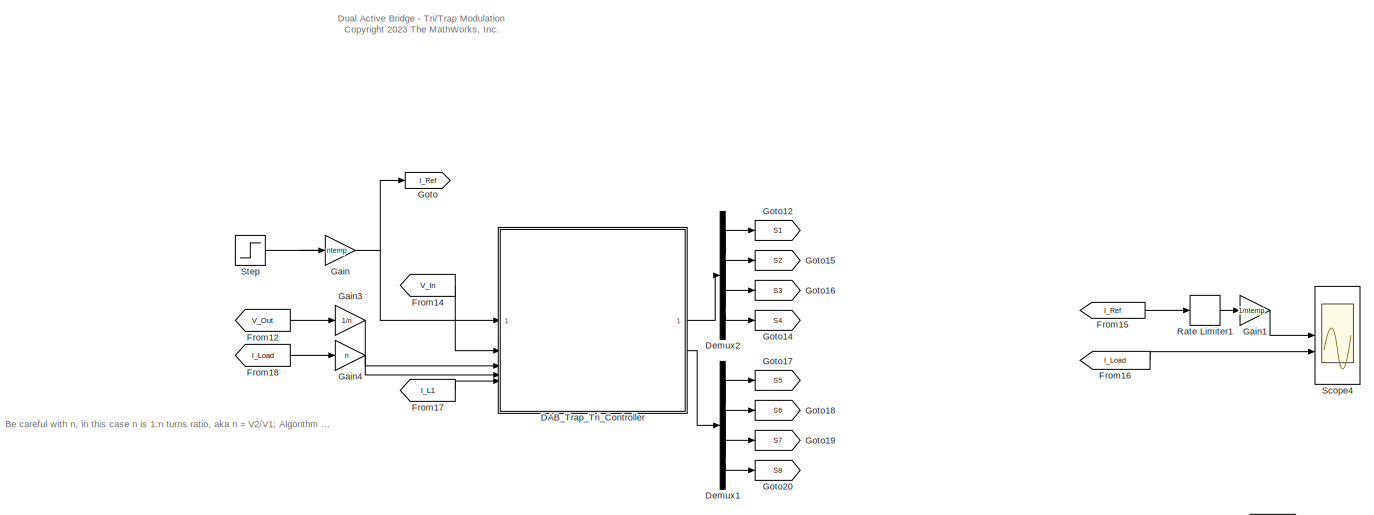
[diagram: root canvas - part 1/3, full width, top band]
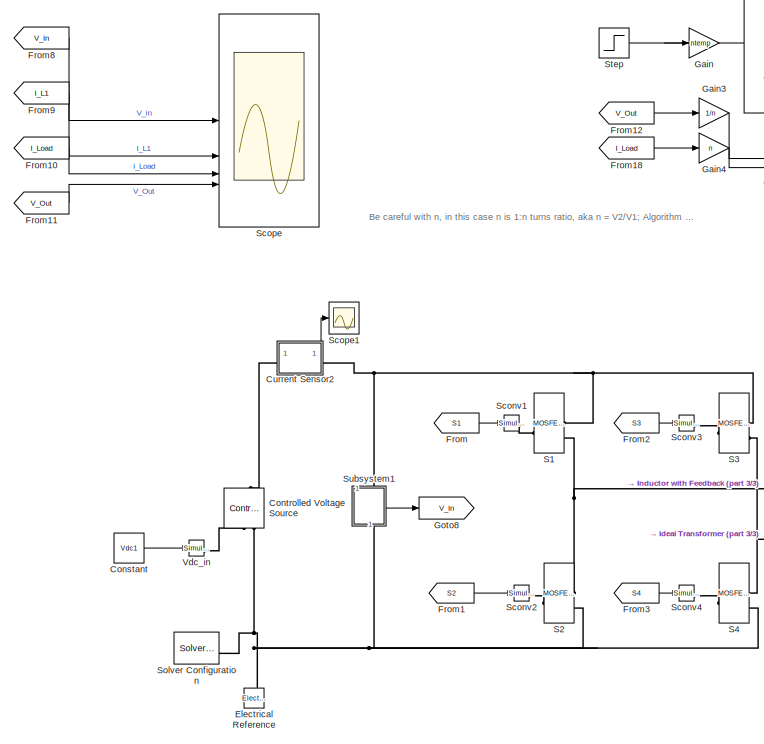
[diagram: root canvas - part 2/3, left side, full height]
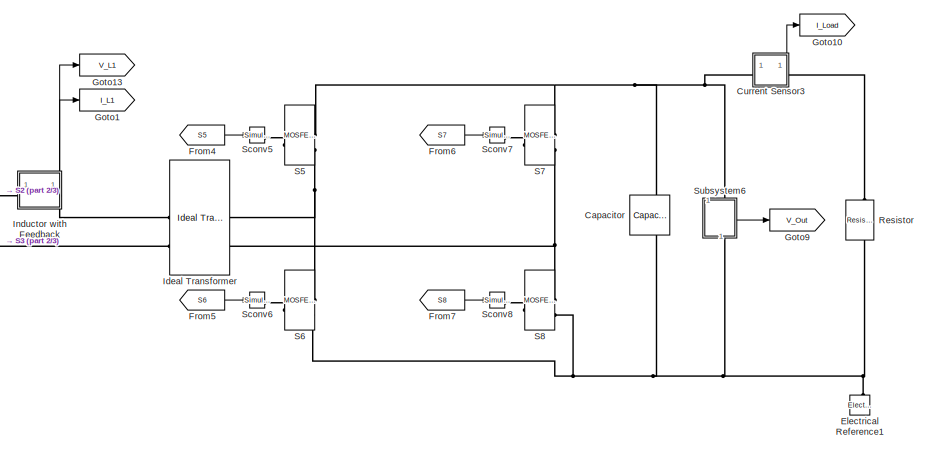
[diagram: root canvas - part 3/3, bottom right region]
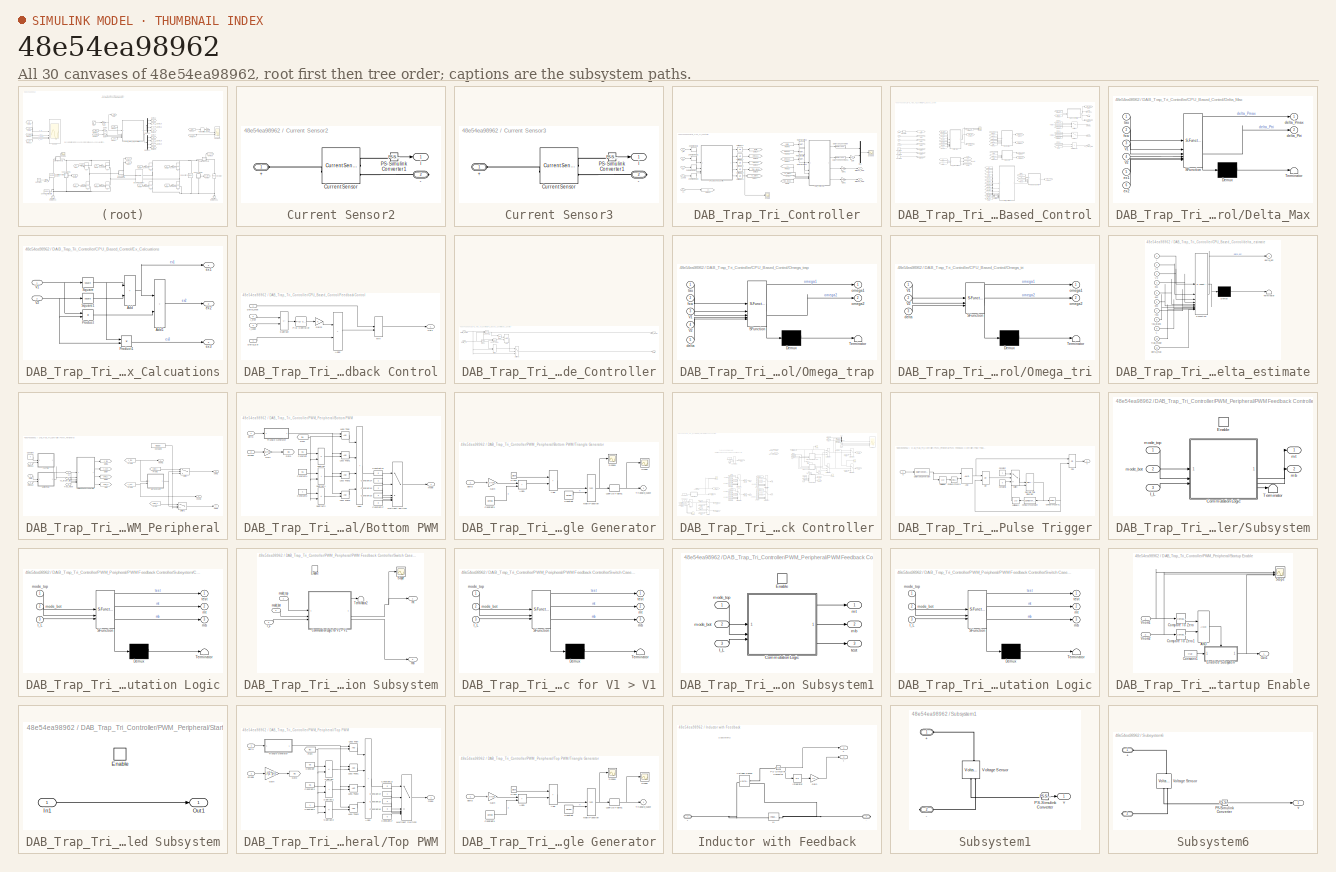
[diagram: thumbnail index - all 30 canvases of the model, root first then tree order]
MODEL slx_48e54ea98962
KIND model
CONFIG AbsTol = 1e-7
CONFIG EnableMultiTasking = off
CONFIG FixedStep = auto
CONFIG MaxStep = 1/100000
CONFIG MinStep = auto
CONFIG RelTol = 1e-7
CONFIG SampleTimeConstraint = Unconstrained
CONFIG SolverName = ode23t
CONFIG StartFcn = tic
CONFIG StartTime = 0.0
CONFIG StopFcn = toc
CONFIG StopTime = 1/fsw*10000
BLOCK [Reference] Capacitor  REF=fl_lib/Electrical/Electrical Elements/Capacitor
  NameLocation = left
  SourceBlock = fl_lib/Electrical/Electrical Elements/Capacitor
  SourceType = Capacitor
BLOCK [Constant] Constant
  Value = Vdc1
BLOCK [Reference] Controlled Voltage Source  REF=fl_lib/Electrical/Electrical Sources/Controlled Voltage
Source
  NameLocation = right
  SourceBlock = fl_lib/Electrical/Electrical Sources/Controlled Voltage\nSource
  SourceType = Controlled Voltage\nSource
BLOCK [SubSystem] Current Sensor2
  PortSchema = {"entries":[{"content":{"sides":[{"content":{"connectorIds":["LConn1"]},"type":"ConnectorPlacement.EquallySpacedRectSide","uuid":"e9388151-e471-4783-81c5-5134e1313d7c"},{"content":{"connectorIds":["RConn1"],"side":"RIGHT"},"type":"ConnectorPlacement.EquallySpacedRectSide","uuid":"bcb23f28-0826-4736-ab91-150a314eb643"},{"content":{"connectorIds":["Out1"],"side":"TOP"},"type":"ConnectorPlacement.Equ...<+251ch>  <repeated x4 — deduplicated; at blocks: Current Sensor2, Current Sensor3, Subsystem1, Subsystem6>
BLOCK [PMIOPort] Current Sensor2/+
  Side = Left
BLOCK [PMIOPort] Current Sensor2/-
  Port = 2
  Side = Right
BLOCK [Reference] Current Sensor2/Current Sensor  REF=fl_lib/Electrical/Electrical Sensors/Current Sensor
  SourceBlock = fl_lib/Electrical/Electrical Sensors/Current Sensor
  SourceType = Current Sensor
BLOCK [Reference] Current Sensor2/PS-Simulink Converter1  REF=nesl_utility/PS-Simulink
Converter
  SourceBlock = nesl_utility/PS-Simulink\nConverter
  SourceType = PS-Simulink\nConverter
BLOCK [Outport] Current Sensor2/i
BLOCK [SubSystem] Current Sensor3
BLOCK [PMIOPort] Current Sensor3/+
  Side = Left
BLOCK [PMIOPort] Current Sensor3/-
  Port = 2
  Side = Right
BLOCK [Reference] Current Sensor3/Current Sensor  REF=fl_lib/Electrical/Electrical Sensors/Current Sensor
  SourceBlock = fl_lib/Electrical/Electrical Sensors/Current Sensor
  SourceType = Current Sensor
BLOCK [Reference] Current Sensor3/PS-Simulink Converter1  REF=nesl_utility/PS-Simulink
Converter
  SourceBlock = nesl_utility/PS-Simulink\nConverter
  SourceType = PS-Simulink\nConverter
BLOCK [Outport] Current Sensor3/i
BLOCK [SubSystem] DAB_Trap_Tri_Controller
BLOCK [Outport] DAB_Trap_Tri_Controller/Bridge1_pwm
BLOCK [Outport] DAB_Trap_Tri_Controller/Bridge2_pwm
  Port = 2
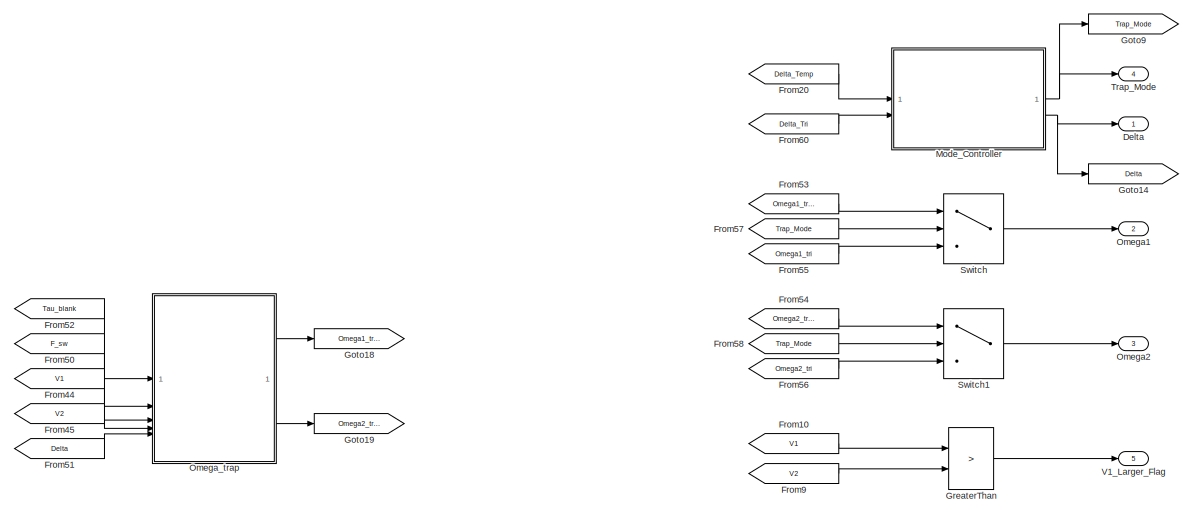
[diagram: DAB_Trap_Tri_Controller/CPU_Based_Control - part 1/3, top right region]
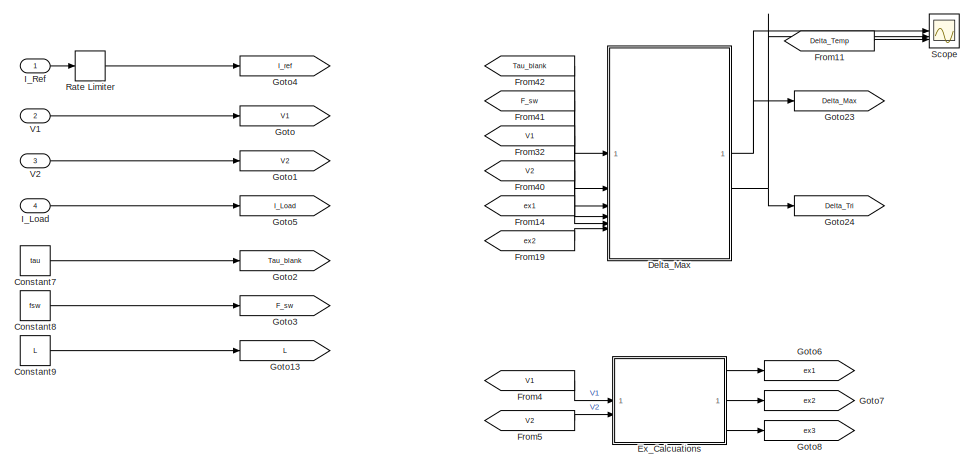
[diagram: DAB_Trap_Tri_Controller/CPU_Based_Control - part 2/3, middle left region]
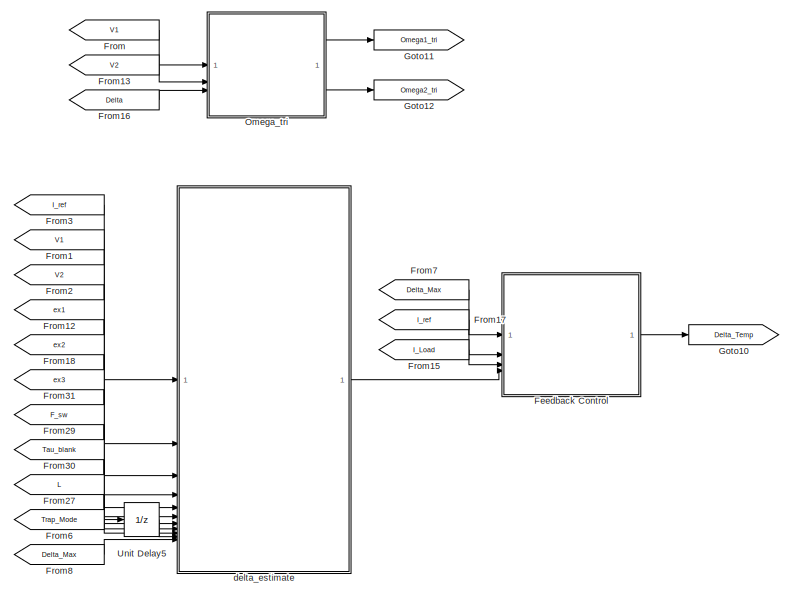
[diagram: DAB_Trap_Tri_Controller/CPU_Based_Control - part 3/3, bottom center region]
BLOCK [SubSystem] DAB_Trap_Tri_Controller/CPU_Based_Control
BLOCK [Constant] DAB_Trap_Tri_Controller/CPU_Based_Control/Constant7
  Value = tau
BLOCK [Constant] DAB_Trap_Tri_Controller/CPU_Based_Control/Constant8
  Value = fsw
BLOCK [Constant] DAB_Trap_Tri_Controller/CPU_Based_Control/Constant9
  Value = L
BLOCK [Outport] DAB_Trap_Tri_Controller/CPU_Based_Control/Delta
BLOCK [SubSystem] DAB_Trap_Tri_Controller/CPU_Based_Control/Delta_Max
  ErrorFcn = Stateflow.Translate.translate
  PermitHierarchicalResolution = ExplicitOnly
  SFBlockType = MATLAB Function
  TreatAsAtomicUnit = on
BLOCK [Demux] DAB_Trap_Tri_Controller/CPU_Based_Control/Delta_Max/ Demux 
  Outputs = 1
BLOCK [S-Function] DAB_Trap_Tri_Controller/CPU_Based_Control/Delta_Max/ SFunction 
  EnableBusSupport = on
  FunctionName = sf_sfun
  PortCounts = [6 3]
  SFcnIsStateOwnerBlock = off
  SFunctionDeploymentMode = off
  Tag = Stateflow S-Function 15
BLOCK [Terminator] DAB_Trap_Tri_Controller/CPU_Based_Control/Delta_Max/ Terminator 
BLOCK [Inport] DAB_Trap_Tri_Controller/CPU_Based_Control/Delta_Max/V1
  Port = 3
BLOCK [Inport] DAB_Trap_Tri_Controller/CPU_Based_Control/Delta_Max/V2
  Port = 4
BLOCK [Outport] DAB_Trap_Tri_Controller/CPU_Based_Control/Delta_Max/delta_Pmax
BLOCK [Outport] DAB_Trap_Tri_Controller/CPU_Based_Control/Delta_Max/delta_Ptri
  Port = 2
BLOCK [Inport] DAB_Trap_Tri_Controller/CPU_Based_Control/Delta_Max/ex1
  Port = 5
BLOCK [Inport] DAB_Trap_Tri_Controller/CPU_Based_Control/Delta_Max/ex2
  Port = 6
BLOCK [Inport] DAB_Trap_Tri_Controller/CPU_Based_Control/Delta_Max/fsw
  Port = 2
BLOCK [Inport] DAB_Trap_Tri_Controller/CPU_Based_Control/Delta_Max/tau
BLOCK [SubSystem] DAB_Trap_Tri_Controller/CPU_Based_Control/Ex_Calcuations
BLOCK [Sum] DAB_Trap_Tri_Controller/CPU_Based_Control/Ex_Calcuations/Add
  IconShape = rectangular
BLOCK [Sum] DAB_Trap_Tri_Controller/CPU_Based_Control/Ex_Calcuations/Add1
  IconShape = rectangular
BLOCK [Product] DAB_Trap_Tri_Controller/CPU_Based_Control/Ex_Calcuations/Product
BLOCK [Product] DAB_Trap_Tri_Controller/CPU_Based_Control/Ex_Calcuations/Product1
BLOCK [Math] DAB_Trap_Tri_Controller/CPU_Based_Control/Ex_Calcuations/Square
  Operator = square
BLOCK [Math] DAB_Trap_Tri_Controller/CPU_Based_Control/Ex_Calcuations/Square1
  Operator = square
BLOCK [Inport] DAB_Trap_Tri_Controller/CPU_Based_Control/Ex_Calcuations/V1
BLOCK [Inport] DAB_Trap_Tri_Controller/CPU_Based_Control/Ex_Calcuations/V2
  Port = 2
BLOCK [Outport] DAB_Trap_Tri_Controller/CPU_Based_Control/Ex_Calcuations/ex1
BLOCK [Outport] DAB_Trap_Tri_Controller/CPU_Based_Control/Ex_Calcuations/ex2
  Port = 2
BLOCK [Outport] DAB_Trap_Tri_Controller/CPU_Based_Control/Ex_Calcuations/ex3
  Port = 3
BLOCK [SubSystem] DAB_Trap_Tri_Controller/CPU_Based_Control/Feedback Control
BLOCK [Sum] DAB_Trap_Tri_Controller/CPU_Based_Control/Feedback Control/Add2
  IconShape = rectangular
BLOCK [Inport] DAB_Trap_Tri_Controller/CPU_Based_Control/Feedback Control/Delta_Est
  Port = 4
BLOCK [Inport] DAB_Trap_Tri_Controller/CPU_Based_Control/Feedback Control/Delta_Max
BLOCK [Gain] DAB_Trap_Tri_Controller/CPU_Based_Control/Feedback Control/Gain2
BLOCK [Inport] DAB_Trap_Tri_Controller/CPU_Based_Control/Feedback Control/I_Load
  Port = 3
BLOCK [Inport] DAB_Trap_Tri_Controller/CPU_Based_Control/Feedback Control/I_Ref
  Port = 2
BLOCK [MinMax] DAB_Trap_Tri_Controller/CPU_Based_Control/Feedback Control/Min
  Inputs = 2
BLOCK [Outport] DAB_Trap_Tri_Controller/CPU_Based_Control/Feedback Control/Out1
BLOCK [Reference] DAB_Trap_Tri_Controller/CPU_Based_Control/Feedback Control/PID Controller  REF=slpidlib/PID Controller
  LibrarySourceBlock = simulink/Continuous/PID Controller
  SourceBlock = slpidlib/PID Controller
  SourceType = PID 1dof
BLOCK [Sum] DAB_Trap_Tri_Controller/CPU_Based_Control/Feedback Control/Subtract
  IconShape = rectangular
  Inputs = +-
BLOCK [From] DAB_Trap_Tri_Controller/CPU_Based_Control/From
  GotoTag = V1
BLOCK [From] DAB_Trap_Tri_Controller/CPU_Based_Control/From1
  GotoTag = V1
BLOCK [From] DAB_Trap_Tri_Controller/CPU_Based_Control/From10
  GotoTag = V1
BLOCK [From] DAB_Trap_Tri_Controller/CPU_Based_Control/From11
  GotoTag = Delta_Temp
BLOCK [From] DAB_Trap_Tri_Controller/CPU_Based_Control/From12
  GotoTag = ex1
BLOCK [From] DAB_Trap_Tri_Controller/CPU_Based_Control/From13
  GotoTag = V2
BLOCK [From] DAB_Trap_Tri_Controller/CPU_Based_Control/From14
  GotoTag = ex1
BLOCK [From] DAB_Trap_Tri_Controller/CPU_Based_Control/From15
  GotoTag = I_Load
BLOCK [From] DAB_Trap_Tri_Controller/CPU_Based_Control/From16
  GotoTag = Delta
BLOCK [From] DAB_Trap_Tri_Controller/CPU_Based_Control/From17
  GotoTag = I_ref
BLOCK [From] DAB_Trap_Tri_Controller/CPU_Based_Control/From18
  GotoTag = ex2
BLOCK [From] DAB_Trap_Tri_Controller/CPU_Based_Control/From19
  GotoTag = ex2
BLOCK [From] DAB_Trap_Tri_Controller/CPU_Based_Control/From2
  GotoTag = V2
BLOCK [From] DAB_Trap_Tri_Controller/CPU_Based_Control/From20
  GotoTag = Delta_Temp
BLOCK [From] DAB_Trap_Tri_Controller/CPU_Based_Control/From27
  GotoTag = L
BLOCK [From] DAB_Trap_Tri_Controller/CPU_Based_Control/From29
  GotoTag = F_sw
BLOCK [From] DAB_Trap_Tri_Controller/CPU_Based_Control/From3
  GotoTag = I_ref
BLOCK [From] DAB_Trap_Tri_Controller/CPU_Based_Control/From30
  GotoTag = Tau_blank
BLOCK [From] DAB_Trap_Tri_Controller/CPU_Based_Control/From31
  GotoTag = ex3
BLOCK [From] DAB_Trap_Tri_Controller/CPU_Based_Control/From32
  GotoTag = V1
BLOCK [From] DAB_Trap_Tri_Controller/CPU_Based_Control/From4
  GotoTag = V1
BLOCK [From] DAB_Trap_Tri_Controller/CPU_Based_Control/From40
  GotoTag = V2
BLOCK [From] DAB_Trap_Tri_Controller/CPU_Based_Control/From41
  GotoTag = F_sw
BLOCK [From] DAB_Trap_Tri_Controller/CPU_Based_Control/From42
  GotoTag = Tau_blank
BLOCK [From] DAB_Trap_Tri_Controller/CPU_Based_Control/From44
  GotoTag = V1
BLOCK [From] DAB_Trap_Tri_Controller/CPU_Based_Control/From45
  GotoTag = V2
BLOCK [From] DAB_Trap_Tri_Controller/CPU_Based_Control/From5
  GotoTag = V2
BLOCK [From] DAB_Trap_Tri_Controller/CPU_Based_Control/From50
  GotoTag = F_sw
BLOCK [From] DAB_Trap_Tri_Controller/CPU_Based_Control/From51
  GotoTag = Delta
BLOCK [From] DAB_Trap_Tri_Controller/CPU_Based_Control/From52
  GotoTag = Tau_blank
BLOCK [From] DAB_Trap_Tri_Controller/CPU_Based_Control/From53
  GotoTag = Omega1_trap
BLOCK [From] DAB_Trap_Tri_Controller/CPU_Based_Control/From54
  GotoTag = Omega2_trap
BLOCK [From] DAB_Trap_Tri_Controller/CPU_Based_Control/From55
  GotoTag = Omega1_tri
BLOCK [From] DAB_Trap_Tri_Controller/CPU_Based_Control/From56
  GotoTag = Omega2_tri
BLOCK [From] DAB_Trap_Tri_Controller/CPU_Based_Control/From57
  GotoTag = Trap_Mode
BLOCK [From] DAB_Trap_Tri_Controller/CPU_Based_Control/From58
  GotoTag = Trap_Mode
BLOCK [From] DAB_Trap_Tri_Controller/CPU_Based_Control/From6
  GotoTag = Trap_Mode
BLOCK [From] DAB_Trap_Tri_Controller/CPU_Based_Control/From60
  GotoTag = Delta_Tri
BLOCK [From] DAB_Trap_Tri_Controller/CPU_Based_Control/From7
  GotoTag = Delta_Max
BLOCK [From] DAB_Trap_Tri_Controller/CPU_Based_Control/From8
  GotoTag = Delta_Max
BLOCK [From] DAB_Trap_Tri_Controller/CPU_Based_Control/From9
  GotoTag = V2
BLOCK [Goto] DAB_Trap_Tri_Controller/CPU_Based_Control/Goto
  GotoTag = V1
BLOCK [Goto] DAB_Trap_Tri_Controller/CPU_Based_Control/Goto1
  GotoTag = V2
BLOCK [Goto] DAB_Trap_Tri_Controller/CPU_Based_Control/Goto10
  GotoTag = Delta_Temp
BLOCK [Goto] DAB_Trap_Tri_Controller/CPU_Based_Control/Goto11
  GotoTag = Omega1_tri
BLOCK [Goto] DAB_Trap_Tri_Controller/CPU_Based_Control/Goto12
  GotoTag = Omega2_tri
BLOCK [Goto] DAB_Trap_Tri_Controller/CPU_Based_Control/Goto13
  GotoTag = L
BLOCK [Goto] DAB_Trap_Tri_Controller/CPU_Based_Control/Goto14
  GotoTag = Delta
BLOCK [Goto] DAB_Trap_Tri_Controller/CPU_Based_Control/Goto18
  GotoTag = Omega1_trap
BLOCK [Goto] DAB_Trap_Tri_Controller/CPU_Based_Control/Goto19
  GotoTag = Omega2_trap
BLOCK [Goto] DAB_Trap_Tri_Controller/CPU_Based_Control/Goto2
  GotoTag = Tau_blank
BLOCK [Goto] DAB_Trap_Tri_Controller/CPU_Based_Control/Goto23
  GotoTag = Delta_Max
BLOCK [Goto] DAB_Trap_Tri_Controller/CPU_Based_Control/Goto24
  GotoTag = Delta_Tri
BLOCK [Goto] DAB_Trap_Tri_Controller/CPU_Based_Control/Goto3
  GotoTag = F_sw
BLOCK [Goto] DAB_Trap_Tri_Controller/CPU_Based_Control/Goto4
  GotoTag = I_ref
BLOCK [Goto] DAB_Trap_Tri_Controller/CPU_Based_Control/Goto5
  GotoTag = I_Load
BLOCK [Goto] DAB_Trap_Tri_Controller/CPU_Based_Control/Goto6
  GotoTag = ex1
BLOCK [Goto] DAB_Trap_Tri_Controller/CPU_Based_Control/Goto7
  GotoTag = ex2
BLOCK [Goto] DAB_Trap_Tri_Controller/CPU_Based_Control/Goto8
  GotoTag = ex3
BLOCK [Goto] DAB_Trap_Tri_Controller/CPU_Based_Control/Goto9
  GotoTag = Trap_Mode
BLOCK [RelationalOperator] DAB_Trap_Tri_Controller/CPU_Based_Control/GreaterThan
  InputSameDT = off
  Operator = >
  OutDataTypeStr = boolean
  RndMeth = Simplest
BLOCK [Inport] DAB_Trap_Tri_Controller/CPU_Based_Control/I_Load
  Port = 4
BLOCK [Inport] DAB_Trap_Tri_Controller/CPU_Based_Control/I_Ref
BLOCK [SubSystem] DAB_Trap_Tri_Controller/CPU_Based_Control/Mode_Controller
BLOCK [Logic] DAB_Trap_Tri_Controller/CPU_Based_Control/Mode_Controller/AND
  AllPortsSameDT = off
  IconShape = distinctive
  OutDataTypeStr = boolean
BLOCK [Outport] DAB_Trap_Tri_Controller/CPU_Based_Control/Mode_Controller/Delta
  Port = 2
BLOCK [Inport] DAB_Trap_Tri_Controller/CPU_Based_Control/Mode_Controller/Delta_Temp
BLOCK [Inport] DAB_Trap_Tri_Controller/CPU_Based_Control/Mode_Controller/Delta_Tri
  Port = 2
BLOCK [Gain] DAB_Trap_Tri_Controller/CPU_Based_Control/Mode_Controller/Gain1
  Gain = 0.975
BLOCK [RelationalOperator] DAB_Trap_Tri_Controller/CPU_Based_Control/Mode_Controller/Less Than
  InputSameDT = off
  OutDataTypeStr = boolean
  RndMeth = Simplest
BLOCK [RelationalOperator] DAB_Trap_Tri_Controller/CPU_Based_Control/Mode_Controller/Less Than1
  InputSameDT = off
  OutDataTypeStr = boolean
  RndMeth = Simplest
BLOCK [MinMax] DAB_Trap_Tri_Controller/CPU_Based_Control/Mode_Controller/Min2
  Inputs = 2
BLOCK [Logic] DAB_Trap_Tri_Controller/CPU_Based_Control/Mode_Controller/NOT
  AllPortsSameDT = off
  IconShape = distinctive
  Operator = NOT
  OutDataTypeStr = boolean
BLOCK [Switch] DAB_Trap_Tri_Controller/CPU_Based_Control/Mode_Controller/Switch2
  Criteria = u2 > Threshold
  InputSameDT = off
  SaturateOnIntegerOverflow = off
BLOCK [Outport] DAB_Trap_Tri_Controller/CPU_Based_Control/Mode_Controller/Trap_Mode
BLOCK [Outport] DAB_Trap_Tri_Controller/CPU_Based_Control/Omega1
  Port = 2
BLOCK [Outport] DAB_Trap_Tri_Controller/CPU_Based_Control/Omega2
  Port = 3
BLOCK [SubSystem] DAB_Trap_Tri_Controller/CPU_Based_Control/Omega_trap
  ErrorFcn = Stateflow.Translate.translate
  PermitHierarchicalResolution = ExplicitOnly
  SFBlockType = MATLAB Function
  TreatAsAtomicUnit = on
BLOCK [Demux] DAB_Trap_Tri_Controller/CPU_Based_Control/Omega_trap/ Demux 
  Outputs = 1
BLOCK [S-Function] DAB_Trap_Tri_Controller/CPU_Based_Control/Omega_trap/ SFunction 
  EnableBusSupport = on
  FunctionName = sf_sfun
  PortCounts = [5 3]
  SFcnIsStateOwnerBlock = off
  SFunctionDeploymentMode = off
  Tag = Stateflow S-Function 11
BLOCK [Terminator] DAB_Trap_Tri_Controller/CPU_Based_Control/Omega_trap/ Terminator 
BLOCK [Inport] DAB_Trap_Tri_Controller/CPU_Based_Control/Omega_trap/V1
  Port = 3
BLOCK [Inport] DAB_Trap_Tri_Controller/CPU_Based_Control/Omega_trap/V2
  Port = 4
BLOCK [Inport] DAB_Trap_Tri_Controller/CPU_Based_Control/Omega_trap/delta
  Port = 5
BLOCK [Inport] DAB_Trap_Tri_Controller/CPU_Based_Control/Omega_trap/fsw
  Port = 2
BLOCK [Outport] DAB_Trap_Tri_Controller/CPU_Based_Control/Omega_trap/omega1
BLOCK [Outport] DAB_Trap_Tri_Controller/CPU_Based_Control/Omega_trap/omega2
  Port = 2
BLOCK [Inport] DAB_Trap_Tri_Controller/CPU_Based_Control/Omega_trap/tau
BLOCK [SubSystem] DAB_Trap_Tri_Controller/CPU_Based_Control/Omega_tri
  ErrorFcn = Stateflow.Translate.translate
  PermitHierarchicalResolution = ExplicitOnly
  SFBlockType = MATLAB Function
  TreatAsAtomicUnit = on
BLOCK [Demux] DAB_Trap_Tri_Controller/CPU_Based_Control/Omega_tri/ Demux 
  Outputs = 1
BLOCK [S-Function] DAB_Trap_Tri_Controller/CPU_Based_Control/Omega_tri/ SFunction 
  EnableBusSupport = on
  FunctionName = sf_sfun
  PortCounts = [3 3]
  SFcnIsStateOwnerBlock = off
  SFunctionDeploymentMode = off
  Tag = Stateflow S-Function 8
BLOCK [Terminator] DAB_Trap_Tri_Controller/CPU_Based_Control/Omega_tri/ Terminator 
BLOCK [Inport] DAB_Trap_Tri_Controller/CPU_Based_Control/Omega_tri/V1
BLOCK [Inport] DAB_Trap_Tri_Controller/CPU_Based_Control/Omega_tri/V2
  Port = 2
BLOCK [Inport] DAB_Trap_Tri_Controller/CPU_Based_Control/Omega_tri/delta
  Port = 3
BLOCK [Outport] DAB_Trap_Tri_Controller/CPU_Based_Control/Omega_tri/omega1
BLOCK [Outport] DAB_Trap_Tri_Controller/CPU_Based_Control/Omega_tri/omega2
  Port = 2
BLOCK [RateLimiter] DAB_Trap_Tri_Controller/CPU_Based_Control/Rate Limiter
  FallingSlewLimit = -fsw/500
  InitialCondition = 15*ntemp
  RisingSlewLimit = fsw/500
  SampleTimeMode = inherited
BLOCK [Scope] DAB_Trap_Tri_Controller/CPU_Based_Control/Scope
  Floating = off
  NumInputPorts = 3
  ScopeSpecificationString = Simulink.scopes.TimeScopeBlockCfg('CurrentConfiguration', extmgr.ConfigurationSet(extmgr.Configuration('Core','General UI',true),extmgr.Configuration('Core','Source UI',true),extmgr.Configuration('Sources','WiredSimulink',true,'DataLoggingVariableName','ScopeData2'),extmgr.Configuration('Visuals','Time Domain',true,'SerializedDisplays',{struct('MinYLimReal','-0.12678','MaxYLimReal','1.14116','YLab...<+1494ch>
BLOCK [Switch] DAB_Trap_Tri_Controller/CPU_Based_Control/Switch
  Criteria = u2 > Threshold
  InputSameDT = off
  SaturateOnIntegerOverflow = off
BLOCK [Switch] DAB_Trap_Tri_Controller/CPU_Based_Control/Switch1
  Criteria = u2 > Threshold
  InputSameDT = off
  SaturateOnIntegerOverflow = off
BLOCK [Outport] DAB_Trap_Tri_Controller/CPU_Based_Control/Trap_Mode
  Port = 4
BLOCK [UnitDelay] DAB_Trap_Tri_Controller/CPU_Based_Control/Unit Delay5
  HasFrameUpgradeWarning = on
  SampleTime = period
BLOCK [Inport] DAB_Trap_Tri_Controller/CPU_Based_Control/V1
  Port = 2
BLOCK [Outport] DAB_Trap_Tri_Controller/CPU_Based_Control/V1_Larger_Flag
  Port = 5
BLOCK [Inport] DAB_Trap_Tri_Controller/CPU_Based_Control/V2
  Port = 3
BLOCK [SubSystem] DAB_Trap_Tri_Controller/CPU_Based_Control/delta_estimate
  ErrorFcn = Stateflow.Translate.translate
  PermitHierarchicalResolution = ExplicitOnly
  SFBlockType = MATLAB Function
  TreatAsAtomicUnit = on
BLOCK [Demux] DAB_Trap_Tri_Controller/CPU_Based_Control/delta_estimate/ Demux 
  Outputs = 1
BLOCK [S-Function] DAB_Trap_Tri_Controller/CPU_Based_Control/delta_estimate/ SFunction 
  EnableBusSupport = on
  FunctionName = sf_sfun
  PortCounts = [11 2]
  SFcnIsStateOwnerBlock = off
  SFunctionDeploymentMode = off
  Tag = Stateflow S-Function 10
BLOCK [Terminator] DAB_Trap_Tri_Controller/CPU_Based_Control/delta_estimate/ Terminator 
BLOCK [Inport] DAB_Trap_Tri_Controller/CPU_Based_Control/delta_estimate/I
BLOCK [Inport] DAB_Trap_Tri_Controller/CPU_Based_Control/delta_estimate/L
  Port = 9
BLOCK [Inport] DAB_Trap_Tri_Controller/CPU_Based_Control/delta_estimate/V1
  Port = 2
BLOCK [Inport] DAB_Trap_Tri_Controller/CPU_Based_Control/delta_estimate/V2
  Port = 3
BLOCK [Outport] DAB_Trap_Tri_Controller/CPU_Based_Control/delta_estimate/delta_est
BLOCK [Inport] DAB_Trap_Tri_Controller/CPU_Based_Control/delta_estimate/delta_max
  Port = 11
BLOCK [Inport] DAB_Trap_Tri_Controller/CPU_Based_Control/delta_estimate/ex1
  Port = 4
BLOCK [Inport] DAB_Trap_Tri_Controller/CPU_Based_Control/delta_estimate/ex2
  Port = 5
BLOCK [Inport] DAB_Trap_Tri_Controller/CPU_Based_Control/delta_estimate/ex3
  Port = 6
BLOCK [Inport] DAB_Trap_Tri_Controller/CPU_Based_Control/delta_estimate/fsw
  Port = 7
BLOCK [Inport] DAB_Trap_Tri_Controller/CPU_Based_Control/delta_estimate/tau_blank
  Port = 8
BLOCK [Inport] DAB_Trap_Tri_Controller/CPU_Based_Control/delta_estimate/trap_mode
  Port = 10
BLOCK [DataTypeConversion] DAB_Trap_Tri_Controller/Data Type Conversion
  OutDataTypeStr = double
  RndMeth = Floor
  SaturateOnIntegerOverflow = off
BLOCK [DataTypeConversion] DAB_Trap_Tri_Controller/Data Type Conversion1
  OutDataTypeStr = double
  RndMeth = Floor
  SaturateOnIntegerOverflow = off
BLOCK [From] DAB_Trap_Tri_Controller/From10
  GotoTag = I_L
BLOCK [From] DAB_Trap_Tri_Controller/From11
  GotoTag = V1_larger_flag
BLOCK [From] DAB_Trap_Tri_Controller/From47
  GotoTag = Omega2
BLOCK [From] DAB_Trap_Tri_Controller/From48
  GotoTag = Omega1
BLOCK [From] DAB_Trap_Tri_Controller/From49
  GotoTag = Delta
BLOCK [From] DAB_Trap_Tri_Controller/From9
  GotoTag = Trap_Mode
BLOCK [Gain] DAB_Trap_Tri_Controller/Gain
  Gain = 1.1
BLOCK [Gain] DAB_Trap_Tri_Controller/Gain1
  Gain = 1.5*Vth
BLOCK [Gain] DAB_Trap_Tri_Controller/Gain2
  Gain = 1.5*Vth
BLOCK [Goto] DAB_Trap_Tri_Controller/Goto14
  AttributesFormatString = (4.55)
  GotoTag = Delta
BLOCK [Goto] DAB_Trap_Tri_Controller/Goto15
  GotoTag = I_L
BLOCK [Goto] DAB_Trap_Tri_Controller/Goto17
  GotoTag = V1_larger_flag
BLOCK [Goto] DAB_Trap_Tri_Controller/Goto20
  GotoTag = Omega1
BLOCK [Goto] DAB_Trap_Tri_Controller/Goto21
  GotoTag = Omega2
BLOCK [Goto] DAB_Trap_Tri_Controller/Goto25
  AttributesFormatString = (4.57)
  GotoTag = Trap_Mode
BLOCK [Inport] DAB_Trap_Tri_Controller/I_L
  Port = 5
BLOCK [Inport] DAB_Trap_Tri_Controller/I_Load
  Port = 4
BLOCK [Inport] DAB_Trap_Tri_Controller/I_ref
BLOCK [Mux] DAB_Trap_Tri_Controller/Mux
  DisplayOption = bar
  Inputs = 2
BLOCK [SubSystem] DAB_Trap_Tri_Controller/PWM_Peripheral
BLOCK [SubSystem] DAB_Trap_Tri_Controller/PWM_Peripheral/Bottom PWM
BLOCK [Sum] DAB_Trap_Tri_Controller/PWM_Peripheral/Bottom PWM/Add1
  AccumDataTypeStr = int8
  IconShape = rectangular
  Inputs = ++++
BLOCK [Constant] DAB_Trap_Tri_Controller/PWM_Peripheral/Bottom PWM/Constant
  SampleTime = ts_pwm
  Value = 0.5
BLOCK [Constant] DAB_Trap_Tri_Controller/PWM_Peripheral/Bottom PWM/Constant13
  OutDataTypeStr = int16
  SampleTime = ts_pwm
  Value = 0
BLOCK [Constant] DAB_Trap_Tri_Controller/PWM_Peripheral/Bottom PWM/Constant14
  OutDataTypeStr = int16
  SampleTime = ts_pwm
BLOCK [Constant] DAB_Trap_Tri_Controller/PWM_Peripheral/Bottom PWM/Constant15
  OutDataTypeStr = int16
  SampleTime = ts_pwm
  Value = 2
BLOCK [Constant] DAB_Trap_Tri_Controller/PWM_Peripheral/Bottom PWM/Constant16
  OutDataTypeStr = int16
  SampleTime = ts_pwm
  Value = 3
BLOCK [Constant] DAB_Trap_Tri_Controller/PWM_Peripheral/Bottom PWM/Constant17
  OutDataTypeStr = int16
  SampleTime = ts_pwm
  Value = 0
BLOCK [Constant] DAB_Trap_Tri_Controller/PWM_Peripheral/Bottom PWM/Constant2
  SampleTime = ts_pwm
BLOCK [Constant] DAB_Trap_Tri_Controller/PWM_Peripheral/Bottom PWM/Constant4
  SampleTime = ts_pwm
  Value = 0.5
BLOCK [From] DAB_Trap_Tri_Controller/PWM_Peripheral/Bottom PWM/From
  GotoTag = tau
BLOCK [Gain] DAB_Trap_Tri_Controller/PWM_Peripheral/Bottom PWM/Gain
  Gain = 1/(2*pi)
BLOCK [Goto] DAB_Trap_Tri_Controller/PWM_Peripheral/Bottom PWM/Goto
  GotoTag = tau
BLOCK [RelationalOperator] DAB_Trap_Tri_Controller/PWM_Peripheral/Bottom PWM/Less Than
  InputSameDT = off
  OutDataTypeStr = boolean
  RndMeth = Simplest
BLOCK [RelationalOperator] DAB_Trap_Tri_Controller/PWM_Peripheral/Bottom PWM/Less Than1
  InputSameDT = off
  OutDataTypeStr = boolean
  RndMeth = Simplest
BLOCK [RelationalOperator] DAB_Trap_Tri_Controller/PWM_Peripheral/Bottom PWM/Less Than2
  InputSameDT = off
  OutDataTypeStr = boolean
  RndMeth = Simplest
BLOCK [RelationalOperator] DAB_Trap_Tri_Controller/PWM_Peripheral/Bottom PWM/Less Than3
  InputSameDT = off
  OutDataTypeStr = boolean
  RndMeth = Simplest
BLOCK [MultiPortSwitch] DAB_Trap_Tri_Controller/PWM_Peripheral/Bottom PWM/Multiport Switch2
  DataPortOrder = Zero-based contiguous
  InputSameDT = off
  Inputs = 5
  SaturateOnIntegerOverflow = off
  zeroidx = on
BLOCK [Sum] DAB_Trap_Tri_Controller/PWM_Peripheral/Bottom PWM/Subtract
  IconShape = rectangular
  Inputs = +-
BLOCK [Sum] DAB_Trap_Tri_Controller/PWM_Peripheral/Bottom PWM/Subtract1
  IconShape = rectangular
BLOCK [Sum] DAB_Trap_Tri_Controller/PWM_Peripheral/Bottom PWM/Subtract2
  IconShape = rectangular
  Inputs = +-
BLOCK [SubSystem] DAB_Trap_Tri_Controller/PWM_Peripheral/Bottom PWM/Triangle Generator
BLOCK [Sum] DAB_Trap_Tri_Controller/PWM_Peripheral/Bottom PWM/Triangle Generator/Add
  IconShape = rectangular
BLOCK [Sum] DAB_Trap_Tri_Controller/PWM_Peripheral/Bottom PWM/Triangle Generator/Add1
  IconShape = rectangular
BLOCK [Clock] DAB_Trap_Tri_Controller/PWM_Peripheral/Bottom PWM/Triangle Generator/Clock
  Decimation = 1
  DisableCoverage = on
BLOCK [Constant] DAB_Trap_Tri_Controller/PWM_Peripheral/Bottom PWM/Triangle Generator/Constant
  SampleTime = ts_pwm
  Value = period
BLOCK [Constant] DAB_Trap_Tri_Controller/PWM_Peripheral/Bottom PWM/Triangle Generator/Constant1
  SampleTime = ts_pwm
  Value = period
BLOCK [Gain] DAB_Trap_Tri_Controller/PWM_Peripheral/Bottom PWM/Triangle Generator/Gain
  Gain = -1/(fsw*2*pi)
BLOCK [Lookup_n-D] DAB_Trap_Tri_Controller/PWM_Peripheral/Bottom PWM/Triangle Generator/Look-Up Table1
  BreakpointsForDimension1 = [0 1]*period
  BreakpointsForDimension3 = [5, 7]
  DisableCoverage = on
  InputPortMap = u0
  InternalRulePriority = Speed
  NumberOfTableDimensions = 1
  SaturateOnIntegerOverflow = on
  Table = [0 1]
BLOCK [Math] DAB_Trap_Tri_Controller/PWM_Peripheral/Bottom PWM/Triangle Generator/Math Function
  DisableCoverage = on
  Operator = rem
BLOCK [Scope] DAB_Trap_Tri_Controller/PWM_Peripheral/Bottom PWM/Triangle Generator/Scope
  Floating = off
  NumInputPorts = 1
  ScopeSpecificationString = Simulink.scopes.TimeScopeBlockCfg('CurrentConfiguration', extmgr.ConfigurationSet(extmgr.Configuration('Core','General UI',true),extmgr.Configuration('Core','Source UI',true),extmgr.Configuration('Sources','WiredSimulink',true,'DataLoggingVariableName','ScopeData9'),extmgr.Configuration('Visuals','Time Domain',true,'SerializedDisplays',{struct('MinYLimReal','-0.125','MaxYLimReal','1.125','YLabelRe...<+1361ch>
BLOCK [Scope] DAB_Trap_Tri_Controller/PWM_Peripheral/Bottom PWM/Triangle Generator/Scope1
  Floating = off
  NumInputPorts = 1
  ScopeSpecificationString = Simulink.scopes.TimeScopeBlockCfg('CurrentConfiguration', extmgr.ConfigurationSet(extmgr.Configuration('Core','General UI',true),extmgr.Configuration('Core','Source UI',true),extmgr.Configuration('Sources','WiredSimulink',true,'DataLoggingVariableName','ScopeData10'),extmgr.Configuration('Visuals','Time Domain',true,'SerializedDisplays',{struct('MinYLimReal','-0.00002','MaxYLimReal','0.00014','YLa...<+1373ch>
BLOCK [Outport] DAB_Trap_Tri_Controller/PWM_Peripheral/Bottom PWM/Triangle Generator/Triangle_Wave
BLOCK [Inport] DAB_Trap_Tri_Controller/PWM_Peripheral/Bottom PWM/Triangle Generator/delta
BLOCK [Inport] DAB_Trap_Tri_Controller/PWM_Peripheral/Bottom PWM/delta
BLOCK [Outport] DAB_Trap_Tri_Controller/PWM_Peripheral/Bottom PWM/mode
BLOCK [Inport] DAB_Trap_Tri_Controller/PWM_Peripheral/Bottom PWM/omega
  Port = 2
BLOCK [Constant] DAB_Trap_Tri_Controller/PWM_Peripheral/Constant
  SampleTime = ts_pwm
  Value = 0
BLOCK [Constant] DAB_Trap_Tri_Controller/PWM_Peripheral/Constant2
  SampleTime = ts_pwm
  Value = [0,0,0,0]
BLOCK [Inport] DAB_Trap_Tri_Controller/PWM_Peripheral/Delta
BLOCK [From] DAB_Trap_Tri_Controller/PWM_Peripheral/From
  GotoTag = pwm_b
BLOCK [From] DAB_Trap_Tri_Controller/PWM_Peripheral/From2
  GotoTag = pwm_t
BLOCK [From] DAB_Trap_Tri_Controller/PWM_Peripheral/From8
  GotoTag = v_top
BLOCK [From] DAB_Trap_Tri_Controller/PWM_Peripheral/From9
  GotoTag = v_bot
BLOCK [Goto] DAB_Trap_Tri_Controller/PWM_Peripheral/Goto
  GotoTag = pwm_b
BLOCK [Goto] DAB_Trap_Tri_Controller/PWM_Peripheral/Goto1
  GotoTag = pwm_t
BLOCK [Goto] DAB_Trap_Tri_Controller/PWM_Peripheral/Goto6
  GotoTag = v_top
BLOCK [Goto] DAB_Trap_Tri_Controller/PWM_Peripheral/Goto7
  GotoTag = v_bot
BLOCK [Inport] DAB_Trap_Tri_Controller/PWM_Peripheral/I_L
  Port = 4
BLOCK [Inport] DAB_Trap_Tri_Controller/PWM_Peripheral/Omega1
  Port = 2
BLOCK [Inport] DAB_Trap_Tri_Controller/PWM_Peripheral/Omega2
  Port = 3
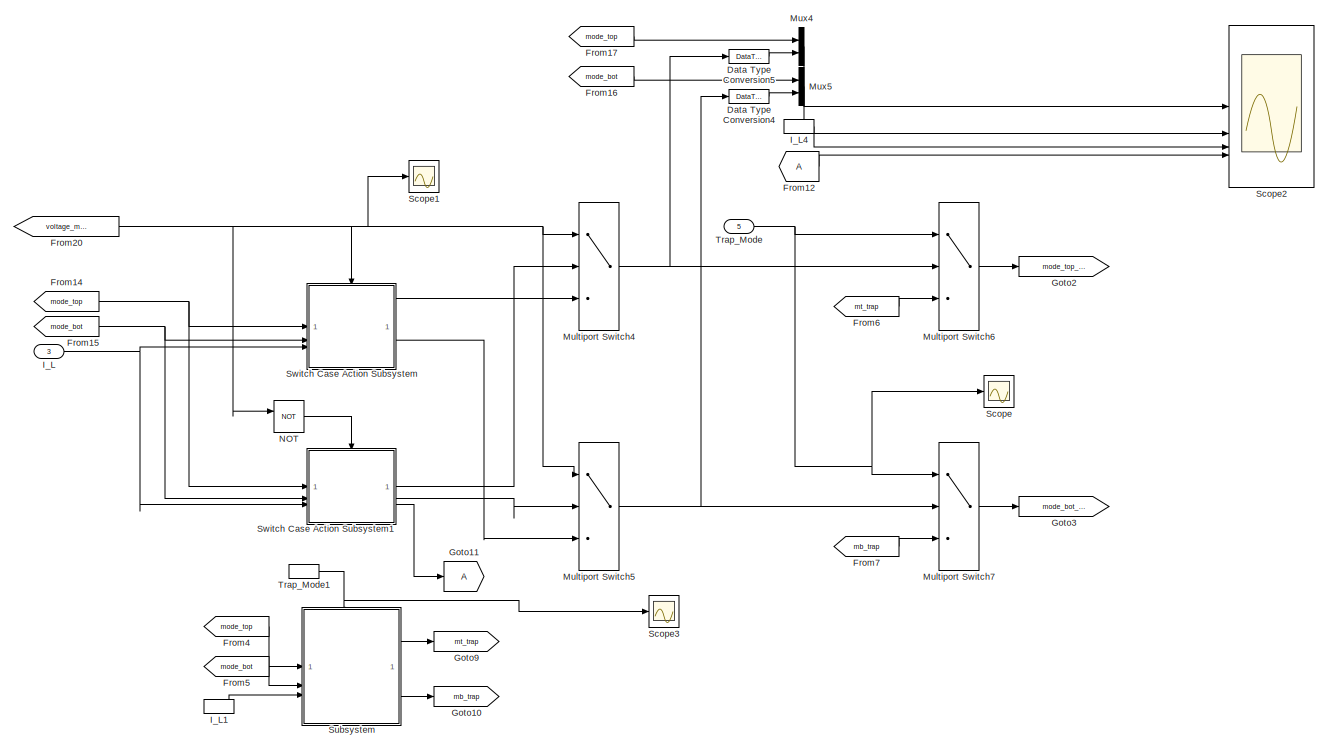
[diagram: DAB_Trap_Tri_Controller/PWM_Peripheral/PWM Feedback Controller - part 1/3, top right region]
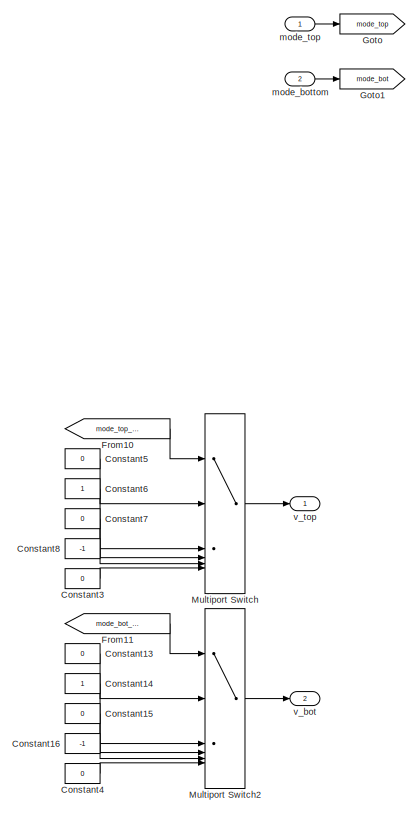
[diagram: DAB_Trap_Tri_Controller/PWM_Peripheral/PWM Feedback Controller - part 2/3, central region]
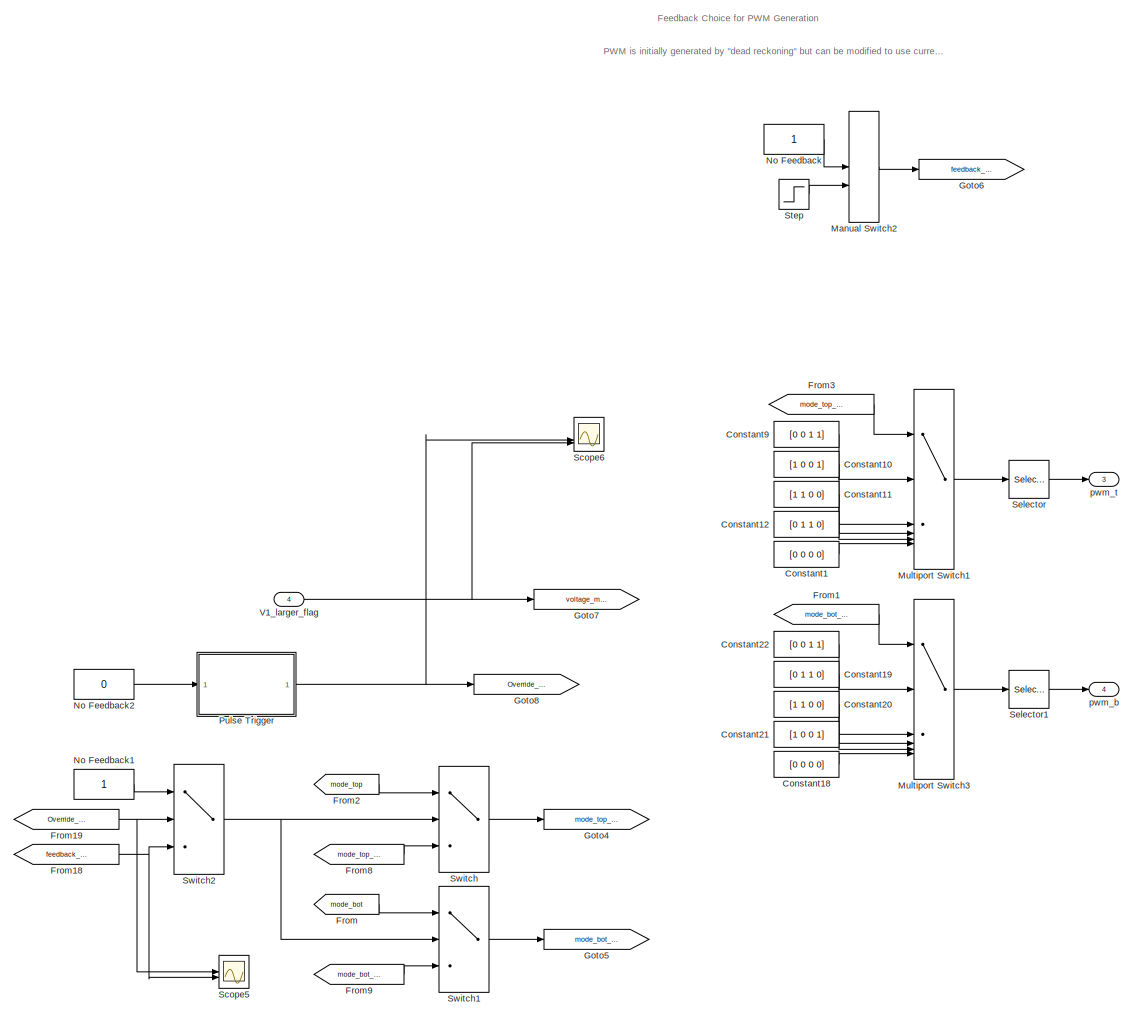
[diagram: DAB_Trap_Tri_Controller/PWM_Peripheral/PWM Feedback Controller - part 3/3, left side, full height]
BLOCK [SubSystem] DAB_Trap_Tri_Controller/PWM_Peripheral/PWM Feedback Controller
BLOCK [Constant] DAB_Trap_Tri_Controller/PWM_Peripheral/PWM Feedback Controller/Constant1
  SampleTime = ts_pwm
  Value = [0 0 0 0]
BLOCK [Constant] DAB_Trap_Tri_Controller/PWM_Peripheral/PWM Feedback Controller/Constant10
  SampleTime = ts_pwm
  Value = [1 0 0 1]
BLOCK [Constant] DAB_Trap_Tri_Controller/PWM_Peripheral/PWM Feedback Controller/Constant11
  SampleTime = ts_pwm
  Value = [1 1 0 0]
BLOCK [Constant] DAB_Trap_Tri_Controller/PWM_Peripheral/PWM Feedback Controller/Constant12
  SampleTime = ts_pwm
  Value = [0 1 1 0]
BLOCK [Constant] DAB_Trap_Tri_Controller/PWM_Peripheral/PWM Feedback Controller/Constant13
  OutDataTypeStr = int16
  SampleTime = ts_pwm
  Value = 0
BLOCK [Constant] DAB_Trap_Tri_Controller/PWM_Peripheral/PWM Feedback Controller/Constant14
  OutDataTypeStr = int16
  SampleTime = ts_pwm
BLOCK [Constant] DAB_Trap_Tri_Controller/PWM_Peripheral/PWM Feedback Controller/Constant15
  OutDataTypeStr = int16
  SampleTime = ts_pwm
  Value = 0
BLOCK [Constant] DAB_Trap_Tri_Controller/PWM_Peripheral/PWM Feedback Controller/Constant16
  OutDataTypeStr = int16
  SampleTime = ts_pwm
  Value = -1
BLOCK [Constant] DAB_Trap_Tri_Controller/PWM_Peripheral/PWM Feedback Controller/Constant18
  SampleTime = ts_pwm
  Value = [0 0 0 0]
BLOCK [Constant] DAB_Trap_Tri_Controller/PWM_Peripheral/PWM Feedback Controller/Constant19
  SampleTime = ts_pwm
  Value = [0 1 1 0]
BLOCK [Constant] DAB_Trap_Tri_Controller/PWM_Peripheral/PWM Feedback Controller/Constant20
  SampleTime = ts_pwm
  Value = [1 1 0 0]
BLOCK [Constant] DAB_Trap_Tri_Controller/PWM_Peripheral/PWM Feedback Controller/Constant21
  SampleTime = ts_pwm
  Value = [1 0 0 1]
BLOCK [Constant] DAB_Trap_Tri_Controller/PWM_Peripheral/PWM Feedback Controller/Constant22
  SampleTime = ts_pwm
  Value = [0 0 1 1]
BLOCK [Constant] DAB_Trap_Tri_Controller/PWM_Peripheral/PWM Feedback Controller/Constant3
  OutDataTypeStr = int16
  SampleTime = ts_pwm
  Value = 0
BLOCK [Constant] DAB_Trap_Tri_Controller/PWM_Peripheral/PWM Feedback Controller/Constant4
  OutDataTypeStr = int16
  SampleTime = ts_pwm
  Value = 0
BLOCK [Constant] DAB_Trap_Tri_Controller/PWM_Peripheral/PWM Feedback Controller/Constant5
  OutDataTypeStr = int16
  SampleTime = ts_pwm
  Value = 0
BLOCK [Constant] DAB_Trap_Tri_Controller/PWM_Peripheral/PWM Feedback Controller/Constant6
  OutDataTypeStr = int16
  SampleTime = ts_pwm
BLOCK [Constant] DAB_Trap_Tri_Controller/PWM_Peripheral/PWM Feedback Controller/Constant7
  OutDataTypeStr = int16
  SampleTime = ts_pwm
  Value = 0
BLOCK [Constant] DAB_Trap_Tri_Controller/PWM_Peripheral/PWM Feedback Controller/Constant8
  OutDataTypeStr = int16
  SampleTime = ts_pwm
  Value = -1
BLOCK [Constant] DAB_Trap_Tri_Controller/PWM_Peripheral/PWM Feedback Controller/Constant9
  SampleTime = ts_pwm
  Value = [0 0 1 1]
BLOCK [DataTypeConversion] DAB_Trap_Tri_Controller/PWM_Peripheral/PWM Feedback Controller/Data Type Conversion4
  RndMeth = Floor
  SaturateOnIntegerOverflow = off
BLOCK [DataTypeConversion] DAB_Trap_Tri_Controller/PWM_Peripheral/PWM Feedback Controller/Data Type Conversion5
  RndMeth = Floor
  SaturateOnIntegerOverflow = off
BLOCK [From] DAB_Trap_Tri_Controller/PWM_Peripheral/PWM Feedback Controller/From
  GotoTag = mode_bot
BLOCK [From] DAB_Trap_Tri_Controller/PWM_Peripheral/PWM Feedback Controller/From1
  GotoTag = mode_bot_imp
BLOCK [From] DAB_Trap_Tri_Controller/PWM_Peripheral/PWM Feedback Controller/From10
  GotoTag = mode_top_imp
BLOCK [From] DAB_Trap_Tri_Controller/PWM_Peripheral/PWM Feedback Controller/From11
  GotoTag = mode_bot_imp
BLOCK [From] DAB_Trap_Tri_Controller/PWM_Peripheral/PWM Feedback Controller/From12
  TagVisibility = global
BLOCK [From] DAB_Trap_Tri_Controller/PWM_Peripheral/PWM Feedback Controller/From14
  GotoTag = mode_top
BLOCK [From] DAB_Trap_Tri_Controller/PWM_Peripheral/PWM Feedback Controller/From15
  GotoTag = mode_bot
BLOCK [From] DAB_Trap_Tri_Controller/PWM_Peripheral/PWM Feedback Controller/From16
  GotoTag = mode_bot
BLOCK [From] DAB_Trap_Tri_Controller/PWM_Peripheral/PWM Feedback Controller/From17
  GotoTag = mode_top
BLOCK [From] DAB_Trap_Tri_Controller/PWM_Peripheral/PWM Feedback Controller/From18
  GotoTag = feedback_mode
BLOCK [From] DAB_Trap_Tri_Controller/PWM_Peripheral/PWM Feedback Controller/From19
  GotoTag = Override_Flag
BLOCK [From] DAB_Trap_Tri_Controller/PWM_Peripheral/PWM Feedback Controller/From2
  GotoTag = mode_top
BLOCK [From] DAB_Trap_Tri_Controller/PWM_Peripheral/PWM Feedback Controller/From20
  GotoTag = voltage_mode
BLOCK [From] DAB_Trap_Tri_Controller/PWM_Peripheral/PWM Feedback Controller/From3
  GotoTag = mode_top_imp
BLOCK [From] DAB_Trap_Tri_Controller/PWM_Peripheral/PWM Feedback Controller/From4
  GotoTag = mode_top
BLOCK [From] DAB_Trap_Tri_Controller/PWM_Peripheral/PWM Feedback Controller/From5
  GotoTag = mode_bot
BLOCK [From] DAB_Trap_Tri_Controller/PWM_Peripheral/PWM Feedback Controller/From6
  GotoTag = mt_trap
BLOCK [From] DAB_Trap_Tri_Controller/PWM_Peripheral/PWM Feedback Controller/From7
  GotoTag = mb_trap
BLOCK [From] DAB_Trap_Tri_Controller/PWM_Peripheral/PWM Feedback Controller/From8
  GotoTag = mode_top_fb
BLOCK [From] DAB_Trap_Tri_Controller/PWM_Peripheral/PWM Feedback Controller/From9
  GotoTag = mode_bot_fb
BLOCK [Goto] DAB_Trap_Tri_Controller/PWM_Peripheral/PWM Feedback Controller/Goto
  GotoTag = mode_top
BLOCK [Goto] DAB_Trap_Tri_Controller/PWM_Peripheral/PWM Feedback Controller/Goto1
  GotoTag = mode_bot
BLOCK [Goto] DAB_Trap_Tri_Controller/PWM_Peripheral/PWM Feedback Controller/Goto10
  GotoTag = mb_trap
BLOCK [Goto] DAB_Trap_Tri_Controller/PWM_Peripheral/PWM Feedback Controller/Goto11
  TagVisibility = global
BLOCK [Goto] DAB_Trap_Tri_Controller/PWM_Peripheral/PWM Feedback Controller/Goto2
  GotoTag = mode_top_fb
BLOCK [Goto] DAB_Trap_Tri_Controller/PWM_Peripheral/PWM Feedback Controller/Goto3
  GotoTag = mode_bot_fb
BLOCK [Goto] DAB_Trap_Tri_Controller/PWM_Peripheral/PWM Feedback Controller/Goto4
  GotoTag = mode_top_imp
BLOCK [Goto] DAB_Trap_Tri_Controller/PWM_Peripheral/PWM Feedback Controller/Goto5
  GotoTag = mode_bot_imp
BLOCK [Goto] DAB_Trap_Tri_Controller/PWM_Peripheral/PWM Feedback Controller/Goto6
  GotoTag = feedback_mode
BLOCK [Goto] DAB_Trap_Tri_Controller/PWM_Peripheral/PWM Feedback Controller/Goto7
  GotoTag = voltage_mode
BLOCK [Goto] DAB_Trap_Tri_Controller/PWM_Peripheral/PWM Feedback Controller/Goto8
  GotoTag = Override_Flag
BLOCK [Goto] DAB_Trap_Tri_Controller/PWM_Peripheral/PWM Feedback Controller/Goto9
  GotoTag = mt_trap
BLOCK [Inport] DAB_Trap_Tri_Controller/PWM_Peripheral/PWM Feedback Controller/I_L
  Port = 3
BLOCK [InportShadow] DAB_Trap_Tri_Controller/PWM_Peripheral/PWM Feedback Controller/I_L1
  Port = 3
BLOCK [InportShadow] DAB_Trap_Tri_Controller/PWM_Peripheral/PWM Feedback Controller/I_L4
  Port = 3
BLOCK [ManualSwitch] DAB_Trap_Tri_Controller/PWM_Peripheral/PWM Feedback Controller/Manual Switch2
  CurrentSetting = 0
BLOCK [MultiPortSwitch] DAB_Trap_Tri_Controller/PWM_Peripheral/PWM Feedback Controller/Multiport Switch
  DataPortForDefault = Additional data port
  DataPortOrder = Zero-based contiguous
  InputSameDT = off
  Inputs = 4
  SaturateOnIntegerOverflow = off
  zeroidx = on
BLOCK [MultiPortSwitch] DAB_Trap_Tri_Controller/PWM_Peripheral/PWM Feedback Controller/Multiport Switch1
  DataPortForDefault = Additional data port
  DataPortOrder = Zero-based contiguous
  InputSameDT = off
  Inputs = 4
  SaturateOnIntegerOverflow = off
  zeroidx = on
BLOCK [MultiPortSwitch] DAB_Trap_Tri_Controller/PWM_Peripheral/PWM Feedback Controller/Multiport Switch2
  DataPortForDefault = Additional data port
  DataPortOrder = Zero-based contiguous
  InputSameDT = off
  Inputs = 4
  SaturateOnIntegerOverflow = off
  zeroidx = on
BLOCK [MultiPortSwitch] DAB_Trap_Tri_Controller/PWM_Peripheral/PWM Feedback Controller/Multiport Switch3
  DataPortForDefault = Additional data port
  DataPortOrder = Zero-based contiguous
  InputSameDT = off
  Inputs = 4
  SaturateOnIntegerOverflow = off
  zeroidx = on
BLOCK [MultiPortSwitch] DAB_Trap_Tri_Controller/PWM_Peripheral/PWM Feedback Controller/Multiport Switch4
  DataPortOrder = Zero-based contiguous
  InputSameDT = off
  Inputs = 2
  SaturateOnIntegerOverflow = off
  zeroidx = on
BLOCK [MultiPortSwitch] DAB_Trap_Tri_Controller/PWM_Peripheral/PWM Feedback Controller/Multiport Switch5
  DataPortOrder = Zero-based contiguous
  InputSameDT = off
  Inputs = 2
  SaturateOnIntegerOverflow = off
  zeroidx = on
BLOCK [MultiPortSwitch] DAB_Trap_Tri_Controller/PWM_Peripheral/PWM Feedback Controller/Multiport Switch6
  DataPortOrder = Zero-based contiguous
  InputSameDT = off
  Inputs = 2
  SaturateOnIntegerOverflow = off
  zeroidx = on
BLOCK [MultiPortSwitch] DAB_Trap_Tri_Controller/PWM_Peripheral/PWM Feedback Controller/Multiport Switch7
  DataPortOrder = Zero-based contiguous
  InputSameDT = off
  Inputs = 2
  SaturateOnIntegerOverflow = off
  zeroidx = on
BLOCK [Mux] DAB_Trap_Tri_Controller/PWM_Peripheral/PWM Feedback Controller/Mux4
  DisplayOption = bar
  Inputs = 2
BLOCK [Mux] DAB_Trap_Tri_Controller/PWM_Peripheral/PWM Feedback Controller/Mux5
  DisplayOption = bar
  Inputs = 2
BLOCK [Logic] DAB_Trap_Tri_Controller/PWM_Peripheral/PWM Feedback Controller/NOT
  AllPortsSameDT = off
  IconShape = distinctive
  Operator = NOT
  OutDataTypeStr = boolean
BLOCK [Constant] DAB_Trap_Tri_Controller/PWM_Peripheral/PWM Feedback Controller/No Feedback
BLOCK [Constant] DAB_Trap_Tri_Controller/PWM_Peripheral/PWM Feedback Controller/No Feedback1
BLOCK [Constant] DAB_Trap_Tri_Controller/PWM_Peripheral/PWM Feedback Controller/No Feedback2
  Value = 0
BLOCK [SubSystem] DAB_Trap_Tri_Controller/PWM_Peripheral/PWM Feedback Controller/Pulse Trigger
BLOCK [Logic] DAB_Trap_Tri_Controller/PWM_Peripheral/PWM Feedback Controller/Pulse Trigger/AND
  AllPortsSameDT = off
  IconShape = distinctive
  OutDataTypeStr = boolean
BLOCK [Reference] DAB_Trap_Tri_Controller/PWM_Peripheral/PWM Feedback Controller/Pulse Trigger/Compare To Constant  REF=simulink/Logic and Bit
Operations/Compare
To Constant
  NameLocation = top
  SourceBlock = simulink/Logic and Bit\nOperations/Compare\nTo Constant
  SourceType = Compare To Constant
BLOCK [Reference] DAB_Trap_Tri_Controller/PWM_Peripheral/PWM Feedback Controller/Pulse Trigger/Compare To Zero  REF=simulink/Logic and Bit
Operations/Compare
To Zero
  SourceBlock = simulink/Logic and Bit\nOperations/Compare\nTo Zero
  SourceType = Compare To Zero
BLOCK [Reference] DAB_Trap_Tri_Controller/PWM_Peripheral/PWM Feedback Controller/Pulse Trigger/Compare To Zero1  REF=simulink/Logic and Bit
Operations/Compare
To Zero
  NameLocation = top
  SourceBlock = simulink/Logic and Bit\nOperations/Compare\nTo Zero
  SourceType = Compare To Zero
BLOCK [Constant] DAB_Trap_Tri_Controller/PWM_Peripheral/PWM Feedback Controller/Pulse Trigger/Constant
  SampleTime = -1
BLOCK [Constant] DAB_Trap_Tri_Controller/PWM_Peripheral/PWM Feedback Controller/Pulse Trigger/Constant1
  SampleTime = -1
  Value = 0
BLOCK [DataTypeConversion] DAB_Trap_Tri_Controller/PWM_Peripheral/PWM Feedback Controller/Pulse Trigger/Data Type Conversion
  OutDataTypeStr = boolean
  RndMeth = Floor
  SaturateOnIntegerOverflow = off
BLOCK [DiscreteIntegrator] DAB_Trap_Tri_Controller/PWM_Peripheral/PWM Feedback Controller/Pulse Trigger/Discrete-Time Integrator
  ExternalReset = rising
  ICPrevOutput = DiscIntNeverNeededParam
  ICPrevScaledInput = DiscIntNeverNeededParam
  InitialConditionSetting = Auto
  SampleTime = -1
BLOCK [Logic] DAB_Trap_Tri_Controller/PWM_Peripheral/PWM Feedback Controller/Pulse Trigger/OR
  AllPortsSameDT = off
  IconShape = distinctive
  Operator = OR
  OutDataTypeStr = boolean
BLOCK [Logic] DAB_Trap_Tri_Controller/PWM_Peripheral/PWM Feedback Controller/Pulse Trigger/OR1
  AllPortsSameDT = off
  IconShape = distinctive
  Operator = OR
  OutDataTypeStr = boolean
BLOCK [Switch] DAB_Trap_Tri_Controller/PWM_Peripheral/PWM Feedback Controller/Pulse Trigger/Switch
  Criteria = u2 > Threshold
  InputSameDT = off
  SaturateOnIntegerOverflow = off
BLOCK [UnitDelay] DAB_Trap_Tri_Controller/PWM_Peripheral/PWM Feedback Controller/Pulse Trigger/Unit Delay
  HasFrameUpgradeWarning = on
  SampleTime = -1
BLOCK [UnitDelay] DAB_Trap_Tri_Controller/PWM_Peripheral/PWM Feedback Controller/Pulse Trigger/Unit Delay1
  HasFrameUpgradeWarning = on
  SampleTime = -1
BLOCK [Inport] DAB_Trap_Tri_Controller/PWM_Peripheral/PWM Feedback Controller/Pulse Trigger/u
BLOCK [Outport] DAB_Trap_Tri_Controller/PWM_Peripheral/PWM Feedback Controller/Pulse Trigger/x
BLOCK [Scope] DAB_Trap_Tri_Controller/PWM_Peripheral/PWM Feedback Controller/Scope
  Floating = off
  NumInputPorts = 1
  ScopeSpecificationString = Simulink.scopes.TimeScopeBlockCfg('CurrentConfiguration', extmgr.ConfigurationSet(extmgr.Configuration('Core','General UI',true),extmgr.Configuration('Core','Source UI',true),extmgr.Configuration('Sources','WiredSimulink',true,'DataLoggingVariableName','ScopeData1'),extmgr.Configuration('Visuals','Time Domain',true,'SerializedDisplays',{struct('MinYLimReal','-0.125','MaxYLimReal','1.125','YLabelRe...<+1385ch>
BLOCK [Scope] DAB_Trap_Tri_Controller/PWM_Peripheral/PWM Feedback Controller/Scope1
  Floating = off
  NumInputPorts = 1
  ScopeSpecificationString = Simulink.scopes.TimeScopeBlockCfg('CurrentConfiguration', extmgr.ConfigurationSet(extmgr.Configuration('Core','General UI',true),extmgr.Configuration('Core','Source UI',true),extmgr.Configuration('Sources','WiredSimulink',true,'DataLoggingVariableName','ScopeData2'),extmgr.Configuration('Visuals','Time Domain',true,'SerializedDisplays',{struct('MinYLimReal','-0.125','MaxYLimReal','1.125','YLabelRe...<+1361ch>
BLOCK [Scope] DAB_Trap_Tri_Controller/PWM_Peripheral/PWM Feedback Controller/Scope2
  Floating = off
  NumInputPorts = 4
  ScopeSpecificationString = Simulink.scopes.TimeScopeBlockCfg('CurrentConfiguration', extmgr.ConfigurationSet(extmgr.Configuration('Core','General UI',true),extmgr.Configuration('Core','Source UI',true),extmgr.Configuration('Sources','WiredSimulink',true,'DataLoggingVariableName','ScopeData6'),extmgr.Configuration('Visuals','Time Domain',true,'SerializedDisplays',{struct('MinYLimReal','-0.375','MaxYLimReal','3.375','YLabelRe...<+3559ch>
BLOCK [Scope] DAB_Trap_Tri_Controller/PWM_Peripheral/PWM Feedback Controller/Scope3
  Floating = off
  NumInputPorts = 1
  ScopeSpecificationString = Simulink.scopes.TimeScopeBlockCfg('CurrentConfiguration', extmgr.ConfigurationSet(extmgr.Configuration('Core','General UI',true),extmgr.Configuration('Core','Source UI',true),extmgr.Configuration('Sources','WiredSimulink',true,'DataLoggingVariableName','ScopeData3'),extmgr.Configuration('Visuals','Time Domain',true,'SerializedDisplays',{struct('MinYLimReal','-0.125','MaxYLimReal','1.125','YLabelRe...<+1357ch>
BLOCK [Scope] DAB_Trap_Tri_Controller/PWM_Peripheral/PWM Feedback Controller/Scope5
  Floating = off
  NumInputPorts = 2
  ScopeSpecificationString = Simulink.scopes.TimeScopeBlockCfg('CurrentConfiguration', extmgr.ConfigurationSet(extmgr.Configuration('Core','General UI',true),extmgr.Configuration('Core','Source UI',true),extmgr.Configuration('Sources','WiredSimulink',true,'DataLoggingVariableName','ScopeData4'),extmgr.Configuration('Visuals','Time Domain',true,'SerializedDisplays',{struct('MinYLimReal','-0.125','MaxYLimReal','1.125','YLabelRe...<+1377ch>
BLOCK [Scope] DAB_Trap_Tri_Controller/PWM_Peripheral/PWM Feedback Controller/Scope6
  Floating = off
  NumInputPorts = 3
  ScopeSpecificationString = Simulink.scopes.TimeScopeBlockCfg('CurrentConfiguration', extmgr.ConfigurationSet(extmgr.Configuration('Core','General UI',true),extmgr.Configuration('Core','Source UI',true),extmgr.Configuration('Sources','WiredSimulink',true,'DataLoggingVariableName','ScopeData5'),extmgr.Configuration('Visuals','Time Domain',true,'SerializedDisplays',{struct('MinYLimReal','-0.125','MaxYLimReal','1.125','YLabelRe...<+1418ch>
BLOCK [Selector] DAB_Trap_Tri_Controller/PWM_Peripheral/PWM Feedback Controller/Selector
  IndexOptions = Index vector (dialog)
  Indices = [1 3 2 4]
  InputPortWidth = 4
  OutputSizes = 1
BLOCK [Selector] DAB_Trap_Tri_Controller/PWM_Peripheral/PWM Feedback Controller/Selector1
  IndexOptions = Index vector (dialog)
  Indices = [2 4 1 3]
  InputPortWidth = 4
  OutputSizes = 1
BLOCK [Step] DAB_Trap_Tri_Controller/PWM_Peripheral/PWM Feedback Controller/Step
  After = 0
  Before = 1
  SampleTime = 0
  Time = 1/fsw
BLOCK [SubSystem] DAB_Trap_Tri_Controller/PWM_Peripheral/PWM Feedback Controller/Subsystem
BLOCK [SubSystem] DAB_Trap_Tri_Controller/PWM_Peripheral/PWM Feedback Controller/Subsystem/Commutation Logic
  ErrorFcn = Stateflow.Translate.translate
  PermitHierarchicalResolution = ExplicitOnly
  PortSchema = {"entries":[{"content":{"sides":[{"content":{"connectorIds":["In1","In2","In3"]},"type":"ConnectorPlacement.EquallySpacedRectSide","uuid":"5493268e-b5c1-481e-98b7-42f968410dd3"},{"content":{"connectorIds":["Out2","Out3","Out1"],"side":"RIGHT"},"type":"ConnectorPlacement.EquallySpacedRectSide","uuid":"7b9bf0a8-4a9d-43f2-9fb6-d72373a79e7b"},{"content":{"connectorIds":[],"side":"TOP"},"type":"Connect...<+266ch>
  SFBlockType = Chart
  TreatAsAtomicUnit = on
BLOCK [Demux] DAB_Trap_Tri_Controller/PWM_Peripheral/PWM Feedback Controller/Subsystem/Commutation Logic/ Demux 
  Outputs = 1
BLOCK [S-Function] DAB_Trap_Tri_Controller/PWM_Peripheral/PWM Feedback Controller/Subsystem/Commutation Logic/ SFunction 
  EnableBusSupport = on
  FunctionName = sf_sfun
  PortCounts = [3 4]
  SFcnIsStateOwnerBlock = off
  SFunctionDeploymentMode = off
  Tag = Stateflow S-Function 4
BLOCK [Terminator] DAB_Trap_Tri_Controller/PWM_Peripheral/PWM Feedback Controller/Subsystem/Commutation Logic/ Terminator 
BLOCK [Inport] DAB_Trap_Tri_Controller/PWM_Peripheral/PWM Feedback Controller/Subsystem/Commutation Logic/I_L
  Port = 3
BLOCK [Outport] DAB_Trap_Tri_Controller/PWM_Peripheral/PWM Feedback Controller/Subsystem/Commutation Logic/mb
  Port = 3
BLOCK [Inport] DAB_Trap_Tri_Controller/PWM_Peripheral/PWM Feedback Controller/Subsystem/Commutation Logic/mode_bot
  Port = 2
BLOCK [Inport] DAB_Trap_Tri_Controller/PWM_Peripheral/PWM Feedback Controller/Subsystem/Commutation Logic/mode_top
BLOCK [Outport] DAB_Trap_Tri_Controller/PWM_Peripheral/PWM Feedback Controller/Subsystem/Commutation Logic/mt
  Port = 2
BLOCK [Outport] DAB_Trap_Tri_Controller/PWM_Peripheral/PWM Feedback Controller/Subsystem/Commutation Logic/test
BLOCK [EnablePort] DAB_Trap_Tri_Controller/PWM_Peripheral/PWM Feedback Controller/Subsystem/Enable
BLOCK [Inport] DAB_Trap_Tri_Controller/PWM_Peripheral/PWM Feedback Controller/Subsystem/I_L
  Port = 3
BLOCK [Terminator] DAB_Trap_Tri_Controller/PWM_Peripheral/PWM Feedback Controller/Subsystem/Terminator
BLOCK [Outport] DAB_Trap_Tri_Controller/PWM_Peripheral/PWM Feedback Controller/Subsystem/mb
  Port = 2
BLOCK [Inport] DAB_Trap_Tri_Controller/PWM_Peripheral/PWM Feedback Controller/Subsystem/mode_bot
  Port = 2
BLOCK [Inport] DAB_Trap_Tri_Controller/PWM_Peripheral/PWM Feedback Controller/Subsystem/mode_top
BLOCK [Outport] DAB_Trap_Tri_Controller/PWM_Peripheral/PWM Feedback Controller/Subsystem/mt
BLOCK [Switch] DAB_Trap_Tri_Controller/PWM_Peripheral/PWM Feedback Controller/Switch
  Criteria = u2 ~= 0
  InputSameDT = off
  SaturateOnIntegerOverflow = off
BLOCK [SubSystem] DAB_Trap_Tri_Controller/PWM_Peripheral/PWM Feedback Controller/Switch Case Action Subsystem
  TreatAsAtomicUnit = on
BLOCK [SubSystem] DAB_Trap_Tri_Controller/PWM_Peripheral/PWM Feedback Controller/Switch Case Action Subsystem/Commutation Logic for V1 > V1
  ErrorFcn = Stateflow.Translate.translate
  PermitHierarchicalResolution = ExplicitOnly
  SFBlockType = Chart
  TreatAsAtomicUnit = on
BLOCK [Demux] DAB_Trap_Tri_Controller/PWM_Peripheral/PWM Feedback Controller/Switch Case Action Subsystem/Commutation Logic for V1 > V1/ Demux 
  Outputs = 1
BLOCK [S-Function] DAB_Trap_Tri_Controller/PWM_Peripheral/PWM Feedback Controller/Switch Case Action Subsystem/Commutation Logic for V1 > V1/ SFunction 
  EnableBusSupport = on
  FunctionName = sf_sfun
  PortCounts = [3 4]
  SFcnIsStateOwnerBlock = off
  SFunctionDeploymentMode = off
  Tag = Stateflow S-Function 13
BLOCK [Terminator] DAB_Trap_Tri_Controller/PWM_Peripheral/PWM Feedback Controller/Switch Case Action Subsystem/Commutation Logic for V1 > V1/ Terminator 
BLOCK [Inport] DAB_Trap_Tri_Controller/PWM_Peripheral/PWM Feedback Controller/Switch Case Action Subsystem/Commutation Logic for V1 > V1/I_L
  Port = 3
BLOCK [Outport] DAB_Trap_Tri_Controller/PWM_Peripheral/PWM Feedback Controller/Switch Case Action Subsystem/Commutation Logic for V1 > V1/mb
  Port = 3
BLOCK [Inport] DAB_Trap_Tri_Controller/PWM_Peripheral/PWM Feedback Controller/Switch Case Action Subsystem/Commutation Logic for V1 > V1/mode_bot
  Port = 2
BLOCK [Inport] DAB_Trap_Tri_Controller/PWM_Peripheral/PWM Feedback Controller/Switch Case Action Subsystem/Commutation Logic for V1 > V1/mode_top
BLOCK [Outport] DAB_Trap_Tri_Controller/PWM_Peripheral/PWM Feedback Controller/Switch Case Action Subsystem/Commutation Logic for V1 > V1/mt
  Port = 2
BLOCK [Outport] DAB_Trap_Tri_Controller/PWM_Peripheral/PWM Feedback Controller/Switch Case Action Subsystem/Commutation Logic for V1 > V1/test
BLOCK [EnablePort] DAB_Trap_Tri_Controller/PWM_Peripheral/PWM Feedback Controller/Switch Case Action Subsystem/Enable
BLOCK [Inport] DAB_Trap_Tri_Controller/PWM_Peripheral/PWM Feedback Controller/Switch Case Action Subsystem/I_L
  Port = 3
BLOCK [Scope] DAB_Trap_Tri_Controller/PWM_Peripheral/PWM Feedback Controller/Switch Case Action Subsystem/Scope
  Floating = off
  NumInputPorts = 1
  ScopeSpecificationString = Simulink.scopes.TimeScopeBlockCfg('CurrentConfiguration', extmgr.ConfigurationSet(extmgr.Configuration('Core','General UI',true),extmgr.Configuration('Core','Source UI',true),extmgr.Configuration('Sources','WiredSimulink',true,'DataLoggingVariableName','ScopeData8'),extmgr.Configuration('Visuals','Time Domain',true,'SerializedDisplays',{struct('MinYLimReal','-10','MaxYLimReal','10','YLabelReal',''...<+817ch>
BLOCK [Terminator] DAB_Trap_Tri_Controller/PWM_Peripheral/PWM Feedback Controller/Switch Case Action Subsystem/Terminator2
BLOCK [Outport] DAB_Trap_Tri_Controller/PWM_Peripheral/PWM Feedback Controller/Switch Case Action Subsystem/mb
  Port = 2
BLOCK [Inport] DAB_Trap_Tri_Controller/PWM_Peripheral/PWM Feedback Controller/Switch Case Action Subsystem/mode_bot
  Port = 2
BLOCK [Inport] DAB_Trap_Tri_Controller/PWM_Peripheral/PWM Feedback Controller/Switch Case Action Subsystem/mode_top
BLOCK [Outport] DAB_Trap_Tri_Controller/PWM_Peripheral/PWM Feedback Controller/Switch Case Action Subsystem/mt
BLOCK [SubSystem] DAB_Trap_Tri_Controller/PWM_Peripheral/PWM Feedback Controller/Switch Case Action Subsystem1
  TreatAsAtomicUnit = on
BLOCK [SubSystem] DAB_Trap_Tri_Controller/PWM_Peripheral/PWM Feedback Controller/Switch Case Action Subsystem1/Commutation Logic
  ErrorFcn = Stateflow.Translate.translate
  PermitHierarchicalResolution = ExplicitOnly
  PortSchema = {"entries":[{"content":{"sides":[{"content":{"connectorIds":["In1","In2","In3"]},"type":"ConnectorPlacement.EquallySpacedRectSide","uuid":"5493268e-b5c1-481e-98b7-42f968410dd3"},{"content":{"connectorIds":["Out2","Out3","Out1"],"side":"RIGHT"},"type":"ConnectorPlacement.EquallySpacedRectSide","uuid":"7b9bf0a8-4a9d-43f2-9fb6-d72373a79e7b"},{"content":{"connectorIds":[],"side":"TOP"},"type":"Connect...<+266ch>
  SFBlockType = Chart
  TreatAsAtomicUnit = on
BLOCK [Demux] DAB_Trap_Tri_Controller/PWM_Peripheral/PWM Feedback Controller/Switch Case Action Subsystem1/Commutation Logic/ Demux 
  Outputs = 1
BLOCK [S-Function] DAB_Trap_Tri_Controller/PWM_Peripheral/PWM Feedback Controller/Switch Case Action Subsystem1/Commutation Logic/ SFunction 
  EnableBusSupport = on
  FunctionName = sf_sfun
  PortCounts = [3 4]
  SFcnIsStateOwnerBlock = off
  SFunctionDeploymentMode = off
  Tag = Stateflow S-Function 14
BLOCK [Terminator] DAB_Trap_Tri_Controller/PWM_Peripheral/PWM Feedback Controller/Switch Case Action Subsystem1/Commutation Logic/ Terminator 
BLOCK [Inport] DAB_Trap_Tri_Controller/PWM_Peripheral/PWM Feedback Controller/Switch Case Action Subsystem1/Commutation Logic/I_L
  Port = 3
BLOCK [Outport] DAB_Trap_Tri_Controller/PWM_Peripheral/PWM Feedback Controller/Switch Case Action Subsystem1/Commutation Logic/mb
  Port = 3
BLOCK [Inport] DAB_Trap_Tri_Controller/PWM_Peripheral/PWM Feedback Controller/Switch Case Action Subsystem1/Commutation Logic/mode_bot
  Port = 2
BLOCK [Inport] DAB_Trap_Tri_Controller/PWM_Peripheral/PWM Feedback Controller/Switch Case Action Subsystem1/Commutation Logic/mode_top
BLOCK [Outport] DAB_Trap_Tri_Controller/PWM_Peripheral/PWM Feedback Controller/Switch Case Action Subsystem1/Commutation Logic/mt
  Port = 2
BLOCK [Outport] DAB_Trap_Tri_Controller/PWM_Peripheral/PWM Feedback Controller/Switch Case Action Subsystem1/Commutation Logic/test
BLOCK [EnablePort] DAB_Trap_Tri_Controller/PWM_Peripheral/PWM Feedback Controller/Switch Case Action Subsystem1/Enable
BLOCK [Inport] DAB_Trap_Tri_Controller/PWM_Peripheral/PWM Feedback Controller/Switch Case Action Subsystem1/I_L
  Port = 3
BLOCK [Outport] DAB_Trap_Tri_Controller/PWM_Peripheral/PWM Feedback Controller/Switch Case Action Subsystem1/mb
  Port = 2
BLOCK [Inport] DAB_Trap_Tri_Controller/PWM_Peripheral/PWM Feedback Controller/Switch Case Action Subsystem1/mode_bot
  Port = 2
BLOCK [Inport] DAB_Trap_Tri_Controller/PWM_Peripheral/PWM Feedback Controller/Switch Case Action Subsystem1/mode_top
BLOCK [Outport] DAB_Trap_Tri_Controller/PWM_Peripheral/PWM Feedback Controller/Switch Case Action Subsystem1/mt
BLOCK [Outport] DAB_Trap_Tri_Controller/PWM_Peripheral/PWM Feedback Controller/Switch Case Action Subsystem1/test
  Port = 3
BLOCK [Switch] DAB_Trap_Tri_Controller/PWM_Peripheral/PWM Feedback Controller/Switch1
  Criteria = u2 ~= 0
  InputSameDT = off
  SaturateOnIntegerOverflow = off
BLOCK [Switch] DAB_Trap_Tri_Controller/PWM_Peripheral/PWM Feedback Controller/Switch2
  Criteria = u2 > Threshold
  InputSameDT = off
  SaturateOnIntegerOverflow = off
BLOCK [Inport] DAB_Trap_Tri_Controller/PWM_Peripheral/PWM Feedback Controller/Trap_Mode
  Port = 5
BLOCK [InportShadow] DAB_Trap_Tri_Controller/PWM_Peripheral/PWM Feedback Controller/Trap_Mode1
  Port = 5
BLOCK [Inport] DAB_Trap_Tri_Controller/PWM_Peripheral/PWM Feedback Controller/V1_larger_flag
  Port = 4
BLOCK [Inport] DAB_Trap_Tri_Controller/PWM_Peripheral/PWM Feedback Controller/mode_bottom
  Port = 2
BLOCK [Inport] DAB_Trap_Tri_Controller/PWM_Peripheral/PWM Feedback Controller/mode_top
BLOCK [Outport] DAB_Trap_Tri_Controller/PWM_Peripheral/PWM Feedback Controller/pwm_b
  Port = 4
BLOCK [Outport] DAB_Trap_Tri_Controller/PWM_Peripheral/PWM Feedback Controller/pwm_t
  Port = 3
BLOCK [Outport] DAB_Trap_Tri_Controller/PWM_Peripheral/PWM Feedback Controller/v_bot
  Port = 2
BLOCK [Outport] DAB_Trap_Tri_Controller/PWM_Peripheral/PWM Feedback Controller/v_top
BLOCK [SubSystem] DAB_Trap_Tri_Controller/PWM_Peripheral/Startup Enable
BLOCK [Logic] DAB_Trap_Tri_Controller/PWM_Peripheral/Startup Enable/AND
  AllPortsSameDT = off
  IconShape = distinctive
  OutDataTypeStr = boolean
BLOCK [Reference] DAB_Trap_Tri_Controller/PWM_Peripheral/Startup Enable/Compare To Zero  REF=simulink/Logic and Bit
Operations/Compare
To Zero
  SourceBlock = simulink/Logic and Bit\nOperations/Compare\nTo Zero
  SourceType = Compare To Zero
BLOCK [Reference] DAB_Trap_Tri_Controller/PWM_Peripheral/Startup Enable/Compare To Zero1  REF=simulink/Logic and Bit
Operations/Compare
To Zero
  SourceBlock = simulink/Logic and Bit\nOperations/Compare\nTo Zero
  SourceType = Compare To Zero
BLOCK [Constant] DAB_Trap_Tri_Controller/PWM_Peripheral/Startup Enable/Constant1
  SampleTime = ts_pwm
  Value = true
BLOCK [SubSystem] DAB_Trap_Tri_Controller/PWM_Peripheral/Startup Enable/Enabled Subsystem
  TreatAsAtomicUnit = on
BLOCK [EnablePort] DAB_Trap_Tri_Controller/PWM_Peripheral/Startup Enable/Enabled Subsystem/Enable
BLOCK [Inport] DAB_Trap_Tri_Controller/PWM_Peripheral/Startup Enable/Enabled Subsystem/In1
BLOCK [Outport] DAB_Trap_Tri_Controller/PWM_Peripheral/Startup Enable/Enabled Subsystem/Out1
  InitialOutput = [false]
  OutDataTypeStr = boolean
BLOCK [Outport] DAB_Trap_Tri_Controller/PWM_Peripheral/Startup Enable/Out1
BLOCK [Scope] DAB_Trap_Tri_Controller/PWM_Peripheral/Startup Enable/Scope
  Floating = off
  NumInputPorts = 3
  ScopeSpecificationString = Simulink.scopes.TimeScopeBlockCfg('CurrentConfiguration', extmgr.ConfigurationSet(extmgr.Configuration('Core','General UI',true),extmgr.Configuration('Core','Source UI',true),extmgr.Configuration('Sources','WiredSimulink',true,'DataLoggingVariableName','ScopeData2'),extmgr.Configuration('Visuals','Time Domain',true,'SerializedDisplays',{struct('MinYLimReal','-1.25','MaxYLimReal','1.25','YLabelReal...<+1501ch>
BLOCK [Inport] DAB_Trap_Tri_Controller/PWM_Peripheral/Startup Enable/Vnom1
BLOCK [Inport] DAB_Trap_Tri_Controller/PWM_Peripheral/Startup Enable/Vnom2
  Port = 2
BLOCK [Switch] DAB_Trap_Tri_Controller/PWM_Peripheral/Switch
  Criteria = u2 ~= 0
  InputSameDT = off
  SaturateOnIntegerOverflow = off
BLOCK [Switch] DAB_Trap_Tri_Controller/PWM_Peripheral/Switch1
  Criteria = u2 ~= 0
  InputSameDT = off
  SaturateOnIntegerOverflow = off
BLOCK [SubSystem] DAB_Trap_Tri_Controller/PWM_Peripheral/Top PWM
BLOCK [Sum] DAB_Trap_Tri_Controller/PWM_Peripheral/Top PWM/Add1
  AccumDataTypeStr = int8
  IconShape = rectangular
  Inputs = ++++
BLOCK [Constant] DAB_Trap_Tri_Controller/PWM_Peripheral/Top PWM/Constant
  SampleTime = ts_pwm
  Value = 0.5
BLOCK [Constant] DAB_Trap_Tri_Controller/PWM_Peripheral/Top PWM/Constant13
  OutDataTypeStr = int16
  SampleTime = ts_pwm
  Value = 0
BLOCK [Constant] DAB_Trap_Tri_Controller/PWM_Peripheral/Top PWM/Constant14
  OutDataTypeStr = int16
  SampleTime = ts_pwm
BLOCK [Constant] DAB_Trap_Tri_Controller/PWM_Peripheral/Top PWM/Constant15
  OutDataTypeStr = int16
  SampleTime = ts_pwm
  Value = 2
BLOCK [Constant] DAB_Trap_Tri_Controller/PWM_Peripheral/Top PWM/Constant16
  OutDataTypeStr = int16
  SampleTime = ts_pwm
  Value = 3
BLOCK [Constant] DAB_Trap_Tri_Controller/PWM_Peripheral/Top PWM/Constant17
  OutDataTypeStr = int16
  SampleTime = ts_pwm
  Value = 0
BLOCK [Constant] DAB_Trap_Tri_Controller/PWM_Peripheral/Top PWM/Constant2
  SampleTime = ts_pwm
BLOCK [Constant] DAB_Trap_Tri_Controller/PWM_Peripheral/Top PWM/Constant4
  SampleTime = ts_pwm
  Value = 0.5
BLOCK [From] DAB_Trap_Tri_Controller/PWM_Peripheral/Top PWM/From
  GotoTag = tau
BLOCK [Gain] DAB_Trap_Tri_Controller/PWM_Peripheral/Top PWM/Gain
  Gain = 1/(2*pi)
BLOCK [Goto] DAB_Trap_Tri_Controller/PWM_Peripheral/Top PWM/Goto
  GotoTag = tau
BLOCK [RelationalOperator] DAB_Trap_Tri_Controller/PWM_Peripheral/Top PWM/Less Than
  InputSameDT = off
  OutDataTypeStr = boolean
  RndMeth = Simplest
BLOCK [RelationalOperator] DAB_Trap_Tri_Controller/PWM_Peripheral/Top PWM/Less Than1
  InputSameDT = off
  OutDataTypeStr = boolean
  RndMeth = Simplest
BLOCK [RelationalOperator] DAB_Trap_Tri_Controller/PWM_Peripheral/Top PWM/Less Than2
  InputSameDT = off
  OutDataTypeStr = boolean
  RndMeth = Simplest
BLOCK [RelationalOperator] DAB_Trap_Tri_Controller/PWM_Peripheral/Top PWM/Less Than3
  InputSameDT = off
  OutDataTypeStr = boolean
  RndMeth = Simplest
BLOCK [MultiPortSwitch] DAB_Trap_Tri_Controller/PWM_Peripheral/Top PWM/Multiport Switch2
  DataPortOrder = Zero-based contiguous
  InputSameDT = off
  Inputs = 5
  SaturateOnIntegerOverflow = off
  zeroidx = on
BLOCK [Sum] DAB_Trap_Tri_Controller/PWM_Peripheral/Top PWM/Subtract
  IconShape = rectangular
  Inputs = +-
BLOCK [Sum] DAB_Trap_Tri_Controller/PWM_Peripheral/Top PWM/Subtract1
  IconShape = rectangular
BLOCK [Sum] DAB_Trap_Tri_Controller/PWM_Peripheral/Top PWM/Subtract2
  IconShape = rectangular
  Inputs = +-
BLOCK [SubSystem] DAB_Trap_Tri_Controller/PWM_Peripheral/Top PWM/Triangle Generator
BLOCK [Sum] DAB_Trap_Tri_Controller/PWM_Peripheral/Top PWM/Triangle Generator/Add
  IconShape = rectangular
BLOCK [Sum] DAB_Trap_Tri_Controller/PWM_Peripheral/Top PWM/Triangle Generator/Add1
  IconShape = rectangular
BLOCK [Clock] DAB_Trap_Tri_Controller/PWM_Peripheral/Top PWM/Triangle Generator/Clock
  Decimation = 1
  DisableCoverage = on
BLOCK [Constant] DAB_Trap_Tri_Controller/PWM_Peripheral/Top PWM/Triangle Generator/Constant
  SampleTime = ts_pwm
  Value = period
BLOCK [Constant] DAB_Trap_Tri_Controller/PWM_Peripheral/Top PWM/Triangle Generator/Constant1
  SampleTime = ts_pwm
  Value = period
BLOCK [Gain] DAB_Trap_Tri_Controller/PWM_Peripheral/Top PWM/Triangle Generator/Gain
  Gain = -1/(fsw*2*pi)
BLOCK [Lookup_n-D] DAB_Trap_Tri_Controller/PWM_Peripheral/Top PWM/Triangle Generator/Look-Up Table1
  BreakpointsForDimension1 = [0 1]*period
  BreakpointsForDimension3 = [5, 7]
  DisableCoverage = on
  InputPortMap = u0
  InternalRulePriority = Speed
  NumberOfTableDimensions = 1
  SaturateOnIntegerOverflow = on
  Table = [0 1]
BLOCK [Math] DAB_Trap_Tri_Controller/PWM_Peripheral/Top PWM/Triangle Generator/Math Function
  DisableCoverage = on
  Operator = rem
BLOCK [Scope] DAB_Trap_Tri_Controller/PWM_Peripheral/Top PWM/Triangle Generator/Scope
  Floating = off
  NumInputPorts = 1
  ScopeSpecificationString = Simulink.scopes.TimeScopeBlockCfg('CurrentConfiguration', extmgr.ConfigurationSet(extmgr.Configuration('Core','General UI',true),extmgr.Configuration('Core','Source UI',true),extmgr.Configuration('Sources','WiredSimulink',true,'DataLoggingVariableName','ScopeData9'),extmgr.Configuration('Visuals','Time Domain',true,'SerializedDisplays',{struct('MinYLimReal','-0.125','MaxYLimReal','1.125','YLabelRe...<+1361ch>
BLOCK [Scope] DAB_Trap_Tri_Controller/PWM_Peripheral/Top PWM/Triangle Generator/Scope1
  Floating = off
  NumInputPorts = 1
  ScopeSpecificationString = Simulink.scopes.TimeScopeBlockCfg('CurrentConfiguration', extmgr.ConfigurationSet(extmgr.Configuration('Core','General UI',true),extmgr.Configuration('Core','Source UI',true),extmgr.Configuration('Sources','WiredSimulink',true,'DataLoggingVariableName','ScopeData10'),extmgr.Configuration('Visuals','Time Domain',true,'SerializedDisplays',{struct('MinYLimReal','-0.00002','MaxYLimReal','0.00014','YLa...<+1373ch>
BLOCK [Outport] DAB_Trap_Tri_Controller/PWM_Peripheral/Top PWM/Triangle Generator/Triangle_Wave
BLOCK [Inport] DAB_Trap_Tri_Controller/PWM_Peripheral/Top PWM/Triangle Generator/delta
BLOCK [Inport] DAB_Trap_Tri_Controller/PWM_Peripheral/Top PWM/delta
BLOCK [Outport] DAB_Trap_Tri_Controller/PWM_Peripheral/Top PWM/mode
BLOCK [Inport] DAB_Trap_Tri_Controller/PWM_Peripheral/Top PWM/omega
  Port = 2
BLOCK [Inport] DAB_Trap_Tri_Controller/PWM_Peripheral/Trap_Mode
  Port = 6
BLOCK [Inport] DAB_Trap_Tri_Controller/PWM_Peripheral/V1_larger_flag
  Port = 5
BLOCK [Outport] DAB_Trap_Tri_Controller/PWM_Peripheral/Vnom1
BLOCK [Outport] DAB_Trap_Tri_Controller/PWM_Peripheral/Vnom2
  Port = 2
BLOCK [Outport] DAB_Trap_Tri_Controller/PWM_Peripheral/pwm1
  Port = 3
BLOCK [Outport] DAB_Trap_Tri_Controller/PWM_Peripheral/pwm2
  Port = 4
BLOCK [RateTransition] DAB_Trap_Tri_Controller/Rate Transition
  OutPortSampleTime = period
BLOCK [RateTransition] DAB_Trap_Tri_Controller/Rate Transition1
  OutPortSampleTime = period
BLOCK [RateTransition] DAB_Trap_Tri_Controller/Rate Transition2
  OutPortSampleTime = period
BLOCK [Scope] DAB_Trap_Tri_Controller/Scope
  Floating = off
  NumInputPorts = 1
  ScopeSpecificationString = Simulink.scopes.TimeScopeBlockCfg('CurrentConfiguration', extmgr.ConfigurationSet(extmgr.Configuration('Core','General UI',true),extmgr.Configuration('Core','Source UI',true),extmgr.Configuration('Sources','WiredSimulink',true,'DataLoggingVariableName','ScopeData1'),extmgr.Configuration('Visuals','Time Domain',true,'SerializedDisplays',{struct('MinYLimReal','-0.125','MaxYLimReal','1.125','YLabelRe...<+1358ch>
BLOCK [Scope] DAB_Trap_Tri_Controller/Scope9
  Floating = off
  NumInputPorts = 1
  ScopeSpecificationString = Simulink.scopes.TimeScopeBlockCfg('CurrentConfiguration', extmgr.ConfigurationSet(extmgr.Configuration('Core','General UI',true),extmgr.Configuration('Core','Source UI',true),extmgr.Configuration('Sources','WiredSimulink',true,'DataLoggingVariableName','ScopeData1'),extmgr.Configuration('Visuals','Time Domain',true,'SerializedDisplays',{struct('MinYLimReal','-1.375','MaxYLimReal','1.375','YLabelRe...<+1374ch>
BLOCK [UnitDelay] DAB_Trap_Tri_Controller/Unit Delay5
  HasFrameUpgradeWarning = on
  SampleTime = period
BLOCK [UnitDelay] DAB_Trap_Tri_Controller/Unit Delay6
  HasFrameUpgradeWarning = on
  SampleTime = period
BLOCK [UnitDelay] DAB_Trap_Tri_Controller/Unit Delay7
  HasFrameUpgradeWarning = on
  SampleTime = period
BLOCK [UnitDelay] DAB_Trap_Tri_Controller/Unit Delay8
  HasFrameUpgradeWarning = on
  SampleTime = period
BLOCK [UnitDelay] DAB_Trap_Tri_Controller/Unit Delay9
  HasFrameUpgradeWarning = on
  SampleTime = period
BLOCK [Inport] DAB_Trap_Tri_Controller/V1
  Port = 2
BLOCK [Inport] DAB_Trap_Tri_Controller/V2
  Port = 3
BLOCK [ZeroOrderHold] DAB_Trap_Tri_Controller/Zero-Order Hold
  SampleTime = period
BLOCK [ZeroOrderHold] DAB_Trap_Tri_Controller/Zero-Order Hold1
  SampleTime = period
BLOCK [ZeroOrderHold] DAB_Trap_Tri_Controller/Zero-Order Hold2
  SampleTime = period
BLOCK [ZeroOrderHold] DAB_Trap_Tri_Controller/Zero-Order Hold3
  SampleTime = period
BLOCK [Demux] Demux1
BLOCK [Demux] Demux2
BLOCK [Reference] Electrical Reference  REF=fl_lib/Electrical/Electrical Elements/Electrical Reference
  NameLocation = right
  SourceBlock = fl_lib/Electrical/Electrical Elements/Electrical Reference
  SourceType = Electrical Reference
BLOCK [Reference] Electrical Reference1  REF=fl_lib/Electrical/Electrical Elements/Electrical Reference
  NameLocation = right
  SourceBlock = fl_lib/Electrical/Electrical Elements/Electrical Reference
  SourceType = Electrical Reference
BLOCK [From] From
  GotoTag = S1
BLOCK [From] From1
  GotoTag = S2
BLOCK [From] From10
  GotoTag = I_Load
BLOCK [From] From11
  GotoTag = V_Out
BLOCK [From] From12
  GotoTag = V_Out
  NameLocation = left
BLOCK [From] From14
  GotoTag = V_In
BLOCK [From] From15
  GotoTag = I_Ref
BLOCK [From] From16
  GotoTag = I_Load
BLOCK [From] From17
  GotoTag = I_L1
BLOCK [From] From18
  GotoTag = I_Load
BLOCK [From] From2
  GotoTag = S3
BLOCK [From] From3
  GotoTag = S4
BLOCK [From] From4
  GotoTag = S5
BLOCK [From] From5
  GotoTag = S6
BLOCK [From] From6
  GotoTag = S7
BLOCK [From] From7
  GotoTag = S8
BLOCK [From] From8
  GotoTag = V_In
BLOCK [From] From9
  GotoTag = I_L1
BLOCK [Gain] Gain
  Gain = ntemp
BLOCK [Gain] Gain1
  Gain = 1/ntemp
BLOCK [Gain] Gain3
  Gain = 1/n
BLOCK [Gain] Gain4
  Gain = n
BLOCK [Goto] Goto
  GotoTag = I_Ref
BLOCK [Goto] Goto1
  GotoTag = I_L1
BLOCK [Goto] Goto10
  GotoTag = I_Load
BLOCK [Goto] Goto12
  GotoTag = S1
BLOCK [Goto] Goto13
  GotoTag = V_L1
BLOCK [Goto] Goto14
  GotoTag = S4
BLOCK [Goto] Goto15
  GotoTag = S2
BLOCK [Goto] Goto16
  GotoTag = S3
BLOCK [Goto] Goto17
  GotoTag = S5
BLOCK [Goto] Goto18
  GotoTag = S6
BLOCK [Goto] Goto19
  GotoTag = S7
BLOCK [Goto] Goto20
  GotoTag = S8
BLOCK [Goto] Goto8
  GotoTag = V_In
BLOCK [Goto] Goto9
  GotoTag = V_Out
BLOCK [Reference] Ideal Transformer  REF=fl_lib/Electrical/Electrical Elements/Ideal Transformer
  SourceBlock = fl_lib/Electrical/Electrical Elements/Ideal Transformer
  SourceType = Ideal Transformer
BLOCK [SubSystem] Inductor with Feedback
  PortSchema = {"entries":[{"content":{"sides":[{"content":{"connectorIds":["LConn1"]},"type":"ConnectorPlacement.EquallySpacedRectSide","uuid":"d17b03de-5a5d-44ef-b1c9-12c97ac90336"},{"content":{"connectorIds":["RConn1"],"side":"RIGHT"},"type":"ConnectorPlacement.EquallySpacedRectSide","uuid":"dcf9dd19-1bc3-435d-be19-5082ce08996a"},{"content":{"connectorIds":["Out1","Out2"],"side":"TOP"},"type":"ConnectorPlacem...<+258ch>
BLOCK [PMIOPort] Inductor with Feedback/+
  Side = Left
BLOCK [PMIOPort] Inductor with Feedback/-
  Port = 2
  Side = Right
BLOCK [Gain] Inductor with Feedback/Gain
  Gain = 1/L
BLOCK [Integrator] Inductor with Feedback/Integrator
BLOCK [Reference] Inductor with Feedback/L1  REF=fl_lib/Electrical/Electrical Elements/Inductor
  SourceBlock = fl_lib/Electrical/Electrical Elements/Inductor
  SourceType = Inductor
BLOCK [Reference] Inductor with Feedback/PS-Simulink Converter  REF=nesl_utility/PS-Simulink
Converter
  SourceBlock = nesl_utility/PS-Simulink\nConverter
  SourceType = PS-Simulink\nConverter
BLOCK [Reference] Inductor with Feedback/Voltage Sensor  REF=fl_lib/Electrical/Electrical Sensors/Voltage Sensor
  NameLocation = top
  SourceBlock = fl_lib/Electrical/Electrical Sensors/Voltage Sensor
  SourceType = Voltage Sensor
BLOCK [Outport] Inductor with Feedback/i
  Port = 2
BLOCK [Outport] Inductor with Feedback/v
BLOCK [RateLimiter] Rate Limiter1
  FallingSlewLimit = -fsw/500
  InitialCondition = 15*ntemp
  RisingSlewLimit = fsw/500
  SampleTimeMode = inherited
BLOCK [Reference] Resistor  REF=fl_lib/Electrical/Electrical Elements/Resistor
  NameLocation = left
  SourceBlock = fl_lib/Electrical/Electrical Elements/Resistor
  SourceType = Resistor
BLOCK [Reference] S1  REF=ee_lib/Semiconductors &
Converters/MOSFET
(Ideal,
Switching)
  SourceBlock = ee_lib/Semiconductors &\nConverters/MOSFET\n(Ideal,\nSwitching)
  SourceType = MOSFET\n(Ideal,\nSwitching)
BLOCK [Reference] S2  REF=ee_lib/Semiconductors &
Converters/MOSFET
(Ideal,
Switching)
  SourceBlock = ee_lib/Semiconductors &\nConverters/MOSFET\n(Ideal,\nSwitching)
  SourceType = MOSFET\n(Ideal,\nSwitching)
BLOCK [Reference] S3  REF=ee_lib/Semiconductors &
Converters/MOSFET
(Ideal,
Switching)
  SourceBlock = ee_lib/Semiconductors &\nConverters/MOSFET\n(Ideal,\nSwitching)
  SourceType = MOSFET\n(Ideal,\nSwitching)
BLOCK [Reference] S4  REF=ee_lib/Semiconductors &
Converters/MOSFET
(Ideal,
Switching)
  SourceBlock = ee_lib/Semiconductors &\nConverters/MOSFET\n(Ideal,\nSwitching)
  SourceType = MOSFET\n(Ideal,\nSwitching)
BLOCK [Reference] S5  REF=ee_lib/Semiconductors &
Converters/MOSFET
(Ideal,
Switching)
  SourceBlock = ee_lib/Semiconductors &\nConverters/MOSFET\n(Ideal,\nSwitching)
  SourceType = MOSFET\n(Ideal,\nSwitching)
BLOCK [Reference] S6  REF=ee_lib/Semiconductors &
Converters/MOSFET
(Ideal,
Switching)
  SourceBlock = ee_lib/Semiconductors &\nConverters/MOSFET\n(Ideal,\nSwitching)
  SourceType = MOSFET\n(Ideal,\nSwitching)
BLOCK [Reference] S7  REF=ee_lib/Semiconductors &
Converters/MOSFET
(Ideal,
Switching)
  SourceBlock = ee_lib/Semiconductors &\nConverters/MOSFET\n(Ideal,\nSwitching)
  SourceType = MOSFET\n(Ideal,\nSwitching)
BLOCK [Reference] S8  REF=ee_lib/Semiconductors &
Converters/MOSFET
(Ideal,
Switching)
  SourceBlock = ee_lib/Semiconductors &\nConverters/MOSFET\n(Ideal,\nSwitching)
  SourceType = MOSFET\n(Ideal,\nSwitching)
BLOCK [Reference] Sconv1  REF=nesl_utility/Simulink-PS
Converter
  SourceBlock = nesl_utility/Simulink-PS\nConverter
  SourceType = Simulink-PS\nConverter
BLOCK [Reference] Sconv2  REF=nesl_utility/Simulink-PS
Converter
  SourceBlock = nesl_utility/Simulink-PS\nConverter
  SourceType = Simulink-PS\nConverter
BLOCK [Reference] Sconv3  REF=nesl_utility/Simulink-PS
Converter
  SourceBlock = nesl_utility/Simulink-PS\nConverter
  SourceType = Simulink-PS\nConverter
BLOCK [Reference] Sconv4  REF=nesl_utility/Simulink-PS
Converter
  SourceBlock = nesl_utility/Simulink-PS\nConverter
  SourceType = Simulink-PS\nConverter
BLOCK [Reference] Sconv5  REF=nesl_utility/Simulink-PS
Converter
  SourceBlock = nesl_utility/Simulink-PS\nConverter
  SourceType = Simulink-PS\nConverter
BLOCK [Reference] Sconv6  REF=nesl_utility/Simulink-PS
Converter
  SourceBlock = nesl_utility/Simulink-PS\nConverter
  SourceType = Simulink-PS\nConverter
BLOCK [Reference] Sconv7  REF=nesl_utility/Simulink-PS
Converter
  SourceBlock = nesl_utility/Simulink-PS\nConverter
  SourceType = Simulink-PS\nConverter
BLOCK [Reference] Sconv8  REF=nesl_utility/Simulink-PS
Converter
  SourceBlock = nesl_utility/Simulink-PS\nConverter
  SourceType = Simulink-PS\nConverter
BLOCK [Scope] Scope
  Floating = off
  NumInputPorts = 4
  ScopeSpecificationString = Simulink.scopes.TimeScopeBlockCfg('CurrentConfiguration', extmgr.ConfigurationSet(extmgr.Configuration('Core','General UI',true),extmgr.Configuration('Core','Source UI',true),extmgr.Configuration('Sources','WiredSimulink',true),extmgr.Configuration('Visuals','Time Domain',true,'SerializedDisplays',{struct('MinYLimReal','700.00000','MaxYLimReal','900.00000','YLabelReal','','MinYLimMag','700.00000',...<+3456ch>
BLOCK [Scope] Scope1
  Floating = off
  NumInputPorts = 1
  ScopeSpecificationString = Simulink.scopes.TimeScopeBlockCfg('CurrentConfiguration', extmgr.ConfigurationSet(extmgr.Configuration('Core','General UI',true),extmgr.Configuration('Core','Source UI',true),extmgr.Configuration('Sources','WiredSimulink',true,'DataLoggingVariableName','ScopeData2'),extmgr.Configuration('Visuals','Time Domain',true,'SerializedDisplays',{struct('MinYLimReal','-11.15273','MaxYLimReal','19.49048','YL...<+1380ch>
BLOCK [Scope] Scope4
  Floating = off
  NumInputPorts = 2
  ScopeSpecificationString = Simulink.scopes.TimeScopeBlockCfg('CurrentConfiguration', extmgr.ConfigurationSet(extmgr.Configuration('Core','General UI',true),extmgr.Configuration('Core','Source UI',true),extmgr.Configuration('Sources','WiredSimulink',true,'DataLoggingVariableName','ScopeData1'),extmgr.Configuration('Visuals','Time Domain',true,'SerializedDisplays',{struct('MinYLimReal','14.45878','MaxYLimReal','19.90302','YLa...<+1440ch>
BLOCK [Reference] Solver Configuration  REF=nesl_utility/Solver
Configuration
  SourceBlock = nesl_utility/Solver\nConfiguration
  SourceType = Solver\nConfiguration
BLOCK [Step] Step
  After = 19.35
  Before = 15.25
  SampleTime = 1/fsw
  Time = 1/fsw*5000
BLOCK [SubSystem] Subsystem1
  NameLocation = left
BLOCK [PMIOPort] Subsystem1/+
  Side = Left
BLOCK [PMIOPort] Subsystem1/-
  Port = 2
  Side = Right
BLOCK [Reference] Subsystem1/PS-Simulink Converter  REF=nesl_utility/PS-Simulink
Converter
  SourceBlock = nesl_utility/PS-Simulink\nConverter
  SourceType = PS-Simulink\nConverter
BLOCK [Reference] Subsystem1/Voltage Sensor  REF=fl_lib/Electrical/Electrical Sensors/Voltage Sensor
  NameLocation = right
  SourceBlock = fl_lib/Electrical/Electrical Sensors/Voltage Sensor
  SourceType = Voltage Sensor
BLOCK [Outport] Subsystem1/v
BLOCK [SubSystem] Subsystem6
  NameLocation = left
BLOCK [PMIOPort] Subsystem6/+
  Side = Left
BLOCK [PMIOPort] Subsystem6/-
  Port = 2
  Side = Right
BLOCK [Reference] Subsystem6/PS-Simulink Converter  REF=nesl_utility/PS-Simulink
Converter
  SourceBlock = nesl_utility/PS-Simulink\nConverter
  SourceType = PS-Simulink\nConverter
BLOCK [Reference] Subsystem6/Voltage Sensor  REF=fl_lib/Electrical/Electrical Sensors/Voltage Sensor
  NameLocation = right
  SourceBlock = fl_lib/Electrical/Electrical Sensors/Voltage Sensor
  SourceType = Voltage Sensor
BLOCK [Outport] Subsystem6/v
BLOCK [Reference] Vdc_in  REF=nesl_utility/Simulink-PS
Converter
  SourceBlock = nesl_utility/Simulink-PS\nConverter
  SourceType = Simulink-PS\nConverter
ANNOTATION (root): Dual Active Bridge - Tri/Trap Modulation <copyright redacted>
ANNOTATION (root): Be careful with n, in this case n is 1:n turns ratio, aka n = V2/V1; Algorithm works with everything referred to primary
ANNOTATION DAB_Trap_Tri_Controller/PWM_Peripheral/PWM Feedback Controller: Feedback Choice for PWM Generation
ANNOTATION DAB_Trap_Tri_Controller/PWM_Peripheral/PWM Feedback Controller: PWM is initially generated by "dead reckoning" but can be modified to use current feedback to better time actual switching times
ANNOTATION Inductor with Feedback: Subsystem2
LINE Constant:1 -> Vdc_in:1
LINE Current Sensor2/PS-Simulink Converter1:1 -> Current Sensor2/i:1
LINE Current Sensor2:1 -> Scope1:1
LINE Current Sensor3/PS-Simulink Converter1:1 -> Current Sensor3/i:1
LINE Current Sensor3:1 -> Goto10:1
LINE DAB_Trap_Tri_Controller/CPU_Based_Control/Constant7:1 -> DAB_Trap_Tri_Controller/CPU_Based_Control/Goto2:1
LINE DAB_Trap_Tri_Controller/CPU_Based_Control/Constant8:1 -> DAB_Trap_Tri_Controller/CPU_Based_Control/Goto3:1
LINE DAB_Trap_Tri_Controller/CPU_Based_Control/Constant9:1 -> DAB_Trap_Tri_Controller/CPU_Based_Control/Goto13:1
NET DAB_Trap_Tri_Controller/CPU_Based_Control/Delta_Max:1 -> DAB_Trap_Tri_Controller/CPU_Based_Control/Goto23:1, DAB_Trap_Tri_Controller/CPU_Based_Control/Scope:1
NET DAB_Trap_Tri_Controller/CPU_Based_Control/Delta_Max:2 -> DAB_Trap_Tri_Controller/CPU_Based_Control/Goto24:1, DAB_Trap_Tri_Controller/CPU_Based_Control/Scope:2
LINE DAB_Trap_Tri_Controller/CPU_Based_Control/Ex_Calcuations/Add1:1 -> DAB_Trap_Tri_Controller/CPU_Based_Control/Ex_Calcuations/ex2:1
NET DAB_Trap_Tri_Controller/CPU_Based_Control/Ex_Calcuations/Add:1 -> DAB_Trap_Tri_Controller/CPU_Based_Control/Ex_Calcuations/Add1:1, DAB_Trap_Tri_Controller/CPU_Based_Control/Ex_Calcuations/ex1:1
LINE DAB_Trap_Tri_Controller/CPU_Based_Control/Ex_Calcuations/Product1:1 -> DAB_Trap_Tri_Controller/CPU_Based_Control/Ex_Calcuations/ex3:1
LINE DAB_Trap_Tri_Controller/CPU_Based_Control/Ex_Calcuations/Product:1 -> DAB_Trap_Tri_Controller/CPU_Based_Control/Ex_Calcuations/Add1:2
LINE DAB_Trap_Tri_Controller/CPU_Based_Control/Ex_Calcuations/Square1:1 -> DAB_Trap_Tri_Controller/CPU_Based_Control/Ex_Calcuations/Add:2
NET DAB_Trap_Tri_Controller/CPU_Based_Control/Ex_Calcuations/Square:1 -> DAB_Trap_Tri_Controller/CPU_Based_Control/Ex_Calcuations/Add:1, DAB_Trap_Tri_Controller/CPU_Based_Control/Ex_Calcuations/Product1:1
NET DAB_Trap_Tri_Controller/CPU_Based_Control/Ex_Calcuations/V1:1 -> DAB_Trap_Tri_Controller/CPU_Based_Control/Ex_Calcuations/Product:1, DAB_Trap_Tri_Controller/CPU_Based_Control/Ex_Calcuations/Square:1
NET DAB_Trap_Tri_Controller/CPU_Based_Control/Ex_Calcuations/V2:1 -> DAB_Trap_Tri_Controller/CPU_Based_Control/Ex_Calcuations/Product1:2, DAB_Trap_Tri_Controller/CPU_Based_Control/Ex_Calcuations/Product:2, DAB_Trap_Tri_Controller/CPU_Based_Control/Ex_Calcuations/Square1:1
LINE DAB_Trap_Tri_Controller/CPU_Based_Control/Ex_Calcuations:1 -> DAB_Trap_Tri_Controller/CPU_Based_Control/Goto6:1
LINE DAB_Trap_Tri_Controller/CPU_Based_Control/Ex_Calcuations:2 -> DAB_Trap_Tri_Controller/CPU_Based_Control/Goto7:1
LINE DAB_Trap_Tri_Controller/CPU_Based_Control/Ex_Calcuations:3 -> DAB_Trap_Tri_Controller/CPU_Based_Control/Goto8:1
LINE DAB_Trap_Tri_Controller/CPU_Based_Control/Feedback Control/Add2:1 -> DAB_Trap_Tri_Controller/CPU_Based_Control/Feedback Control/Min:2
LINE DAB_Trap_Tri_Controller/CPU_Based_Control/Feedback Control/Delta_Est:1 -> DAB_Trap_Tri_Controller/CPU_Based_Control/Feedback Control/Add2:2
LINE DAB_Trap_Tri_Controller/CPU_Based_Control/Feedback Control/Delta_Max:1 -> DAB_Trap_Tri_Controller/CPU_Based_Control/Feedback Control/Min:1
LINE DAB_Trap_Tri_Controller/CPU_Based_Control/Feedback Control/Gain2:1 -> DAB_Trap_Tri_Controller/CPU_Based_Control/Feedback Control/Add2:1
LINE DAB_Trap_Tri_Controller/CPU_Based_Control/Feedback Control/I_Load:1 -> DAB_Trap_Tri_Controller/CPU_Based_Control/Feedback Control/Subtract:2
LINE DAB_Trap_Tri_Controller/CPU_Based_Control/Feedback Control/I_Ref:1 -> DAB_Trap_Tri_Controller/CPU_Based_Control/Feedback Control/Subtract:1
LINE DAB_Trap_Tri_Controller/CPU_Based_Control/Feedback Control/Min:1 -> DAB_Trap_Tri_Controller/CPU_Based_Control/Feedback Control/Out1:1
LINE DAB_Trap_Tri_Controller/CPU_Based_Control/Feedback Control/PID Controller:1 -> DAB_Trap_Tri_Controller/CPU_Based_Control/Feedback Control/Gain2:1
LINE DAB_Trap_Tri_Controller/CPU_Based_Control/Feedback Control/Subtract:1 -> DAB_Trap_Tri_Controller/CPU_Based_Control/Feedback Control/PID Controller:1
LINE DAB_Trap_Tri_Controller/CPU_Based_Control/Feedback Control:1 -> DAB_Trap_Tri_Controller/CPU_Based_Control/Goto10:1
LINE DAB_Trap_Tri_Controller/CPU_Based_Control/From10:1 -> DAB_Trap_Tri_Controller/CPU_Based_Control/GreaterThan:1
LINE DAB_Trap_Tri_Controller/CPU_Based_Control/From11:1 -> DAB_Trap_Tri_Controller/CPU_Based_Control/Scope:3
LINE DAB_Trap_Tri_Controller/CPU_Based_Control/From12:1 -> DAB_Trap_Tri_Controller/CPU_Based_Control/delta_estimate:4
LINE DAB_Trap_Tri_Controller/CPU_Based_Control/From13:1 -> DAB_Trap_Tri_Controller/CPU_Based_Control/Omega_tri:2
LINE DAB_Trap_Tri_Controller/CPU_Based_Control/From14:1 -> DAB_Trap_Tri_Controller/CPU_Based_Control/Delta_Max:5
LINE DAB_Trap_Tri_Controller/CPU_Based_Control/From15:1 -> DAB_Trap_Tri_Controller/CPU_Based_Control/Feedback Control:3
LINE DAB_Trap_Tri_Controller/CPU_Based_Control/From16:1 -> DAB_Trap_Tri_Controller/CPU_Based_Control/Omega_tri:3
LINE DAB_Trap_Tri_Controller/CPU_Based_Control/From17:1 -> DAB_Trap_Tri_Controller/CPU_Based_Control/Feedback Control:2
LINE DAB_Trap_Tri_Controller/CPU_Based_Control/From18:1 -> DAB_Trap_Tri_Controller/CPU_Based_Control/delta_estimate:5
LINE DAB_Trap_Tri_Controller/CPU_Based_Control/From19:1 -> DAB_Trap_Tri_Controller/CPU_Based_Control/Delta_Max:6
LINE DAB_Trap_Tri_Controller/CPU_Based_Control/From1:1 -> DAB_Trap_Tri_Controller/CPU_Based_Control/delta_estimate:2
LINE DAB_Trap_Tri_Controller/CPU_Based_Control/From20:1 -> DAB_Trap_Tri_Controller/CPU_Based_Control/Mode_Controller:1
LINE DAB_Trap_Tri_Controller/CPU_Based_Control/From27:1 -> DAB_Trap_Tri_Controller/CPU_Based_Control/delta_estimate:9
LINE DAB_Trap_Tri_Controller/CPU_Based_Control/From29:1 -> DAB_Trap_Tri_Controller/CPU_Based_Control/delta_estimate:7
LINE DAB_Trap_Tri_Controller/CPU_Based_Control/From2:1 -> DAB_Trap_Tri_Controller/CPU_Based_Control/delta_estimate:3
LINE DAB_Trap_Tri_Controller/CPU_Based_Control/From30:1 -> DAB_Trap_Tri_Controller/CPU_Based_Control/delta_estimate:8
LINE DAB_Trap_Tri_Controller/CPU_Based_Control/From31:1 -> DAB_Trap_Tri_Controller/CPU_Based_Control/delta_estimate:6
LINE DAB_Trap_Tri_Controller/CPU_Based_Control/From32:1 -> DAB_Trap_Tri_Controller/CPU_Based_Control/Delta_Max:3
LINE DAB_Trap_Tri_Controller/CPU_Based_Control/From3:1 -> DAB_Trap_Tri_Controller/CPU_Based_Control/delta_estimate:1
LINE DAB_Trap_Tri_Controller/CPU_Based_Control/From40:1 -> DAB_Trap_Tri_Controller/CPU_Based_Control/Delta_Max:4
LINE DAB_Trap_Tri_Controller/CPU_Based_Control/From41:1 -> DAB_Trap_Tri_Controller/CPU_Based_Control/Delta_Max:2
LINE DAB_Trap_Tri_Controller/CPU_Based_Control/From42:1 -> DAB_Trap_Tri_Controller/CPU_Based_Control/Delta_Max:1
LINE DAB_Trap_Tri_Controller/CPU_Based_Control/From44:1 -> DAB_Trap_Tri_Controller/CPU_Based_Control/Omega_trap:3
LINE DAB_Trap_Tri_Controller/CPU_Based_Control/From45:1 -> DAB_Trap_Tri_Controller/CPU_Based_Control/Omega_trap:4
LINE DAB_Trap_Tri_Controller/CPU_Based_Control/From4:1 -> DAB_Trap_Tri_Controller/CPU_Based_Control/Ex_Calcuations:1
LINE DAB_Trap_Tri_Controller/CPU_Based_Control/From50:1 -> DAB_Trap_Tri_Controller/CPU_Based_Control/Omega_trap:2
LINE DAB_Trap_Tri_Controller/CPU_Based_Control/From51:1 -> DAB_Trap_Tri_Controller/CPU_Based_Control/Omega_trap:5
LINE DAB_Trap_Tri_Controller/CPU_Based_Control/From52:1 -> DAB_Trap_Tri_Controller/CPU_Based_Control/Omega_trap:1
LINE DAB_Trap_Tri_Controller/CPU_Based_Control/From53:1 -> DAB_Trap_Tri_Controller/CPU_Based_Control/Switch:1
LINE DAB_Trap_Tri_Controller/CPU_Based_Control/From54:1 -> DAB_Trap_Tri_Controller/CPU_Based_Control/Switch1:1
LINE DAB_Trap_Tri_Controller/CPU_Based_Control/From55:1 -> DAB_Trap_Tri_Controller/CPU_Based_Control/Switch:3
LINE DAB_Trap_Tri_Controller/CPU_Based_Control/From56:1 -> DAB_Trap_Tri_Controller/CPU_Based_Control/Switch1:3
LINE DAB_Trap_Tri_Controller/CPU_Based_Control/From57:1 -> DAB_Trap_Tri_Controller/CPU_Based_Control/Switch:2
LINE DAB_Trap_Tri_Controller/CPU_Based_Control/From58:1 -> DAB_Trap_Tri_Controller/CPU_Based_Control/Switch1:2
LINE DAB_Trap_Tri_Controller/CPU_Based_Control/From5:1 -> DAB_Trap_Tri_Controller/CPU_Based_Control/Ex_Calcuations:2
LINE DAB_Trap_Tri_Controller/CPU_Based_Control/From60:1 -> DAB_Trap_Tri_Controller/CPU_Based_Control/Mode_Controller:2
LINE DAB_Trap_Tri_Controller/CPU_Based_Control/From6:1 -> DAB_Trap_Tri_Controller/CPU_Based_Control/Unit Delay5:1
LINE DAB_Trap_Tri_Controller/CPU_Based_Control/From7:1 -> DAB_Trap_Tri_Controller/CPU_Based_Control/Feedback Control:1
LINE DAB_Trap_Tri_Controller/CPU_Based_Control/From8:1 -> DAB_Trap_Tri_Controller/CPU_Based_Control/delta_estimate:11
LINE DAB_Trap_Tri_Controller/CPU_Based_Control/From9:1 -> DAB_Trap_Tri_Controller/CPU_Based_Control/GreaterThan:2
LINE DAB_Trap_Tri_Controller/CPU_Based_Control/From:1 -> DAB_Trap_Tri_Controller/CPU_Based_Control/Omega_tri:1
LINE DAB_Trap_Tri_Controller/CPU_Based_Control/GreaterThan:1 -> DAB_Trap_Tri_Controller/CPU_Based_Control/V1_Larger_Flag:1
LINE DAB_Trap_Tri_Controller/CPU_Based_Control/I_Load:1 -> DAB_Trap_Tri_Controller/CPU_Based_Control/Goto5:1
LINE DAB_Trap_Tri_Controller/CPU_Based_Control/I_Ref:1 -> DAB_Trap_Tri_Controller/CPU_Based_Control/Rate Limiter:1
LINE DAB_Trap_Tri_Controller/CPU_Based_Control/Mode_Controller/AND:1 -> DAB_Trap_Tri_Controller/CPU_Based_Control/Mode_Controller/Switch2:2
NET DAB_Trap_Tri_Controller/CPU_Based_Control/Mode_Controller/Delta_Temp:1 -> DAB_Trap_Tri_Controller/CPU_Based_Control/Mode_Controller/Less Than1:1, DAB_Trap_Tri_Controller/CPU_Based_Control/Mode_Controller/Less Than:1, DAB_Trap_Tri_Controller/CPU_Based_Control/Mode_Controller/Min2:2, DAB_Trap_Tri_Controller/CPU_Based_Control/Mode_Controller/Switch2:3
NET DAB_Trap_Tri_Controller/CPU_Based_Control/Mode_Controller/Delta_Tri:1 -> DAB_Trap_Tri_Controller/CPU_Based_Control/Mode_Controller/Gain1:1, DAB_Trap_Tri_Controller/CPU_Based_Control/Mode_Controller/Less Than:2
NET DAB_Trap_Tri_Controller/CPU_Based_Control/Mode_Controller/Gain1:1 -> DAB_Trap_Tri_Controller/CPU_Based_Control/Mode_Controller/Less Than1:2, DAB_Trap_Tri_Controller/CPU_Based_Control/Mode_Controller/Min2:1
LINE DAB_Trap_Tri_Controller/CPU_Based_Control/Mode_Controller/Less Than1:1 -> DAB_Trap_Tri_Controller/CPU_Based_Control/Mode_Controller/AND:2
NET DAB_Trap_Tri_Controller/CPU_Based_Control/Mode_Controller/Less Than:1 -> DAB_Trap_Tri_Controller/CPU_Based_Control/Mode_Controller/NOT:1, DAB_Trap_Tri_Controller/CPU_Based_Control/Mode_Controller/Trap_Mode:1
LINE DAB_Trap_Tri_Controller/CPU_Based_Control/Mode_Controller/Min2:1 -> DAB_Trap_Tri_Controller/CPU_Based_Control/Mode_Controller/Switch2:1
LINE DAB_Trap_Tri_Controller/CPU_Based_Control/Mode_Controller/NOT:1 -> DAB_Trap_Tri_Controller/CPU_Based_Control/Mode_Controller/AND:1
LINE DAB_Trap_Tri_Controller/CPU_Based_Control/Mode_Controller/Switch2:1 -> DAB_Trap_Tri_Controller/CPU_Based_Control/Mode_Controller/Delta:1
NET DAB_Trap_Tri_Controller/CPU_Based_Control/Mode_Controller:1 -> DAB_Trap_Tri_Controller/CPU_Based_Control/Goto9:1, DAB_Trap_Tri_Controller/CPU_Based_Control/Trap_Mode:1
NET DAB_Trap_Tri_Controller/CPU_Based_Control/Mode_Controller:2 -> DAB_Trap_Tri_Controller/CPU_Based_Control/Delta:1, DAB_Trap_Tri_Controller/CPU_Based_Control/Goto14:1
LINE DAB_Trap_Tri_Controller/CPU_Based_Control/Omega_trap:1 -> DAB_Trap_Tri_Controller/CPU_Based_Control/Goto18:1
LINE DAB_Trap_Tri_Controller/CPU_Based_Control/Omega_trap:2 -> DAB_Trap_Tri_Controller/CPU_Based_Control/Goto19:1
LINE DAB_Trap_Tri_Controller/CPU_Based_Control/Omega_tri:1 -> DAB_Trap_Tri_Controller/CPU_Based_Control/Goto11:1
LINE DAB_Trap_Tri_Controller/CPU_Based_Control/Omega_tri:2 -> DAB_Trap_Tri_Controller/CPU_Based_Control/Goto12:1
LINE DAB_Trap_Tri_Controller/CPU_Based_Control/Rate Limiter:1 -> DAB_Trap_Tri_Controller/CPU_Based_Control/Goto4:1
LINE DAB_Trap_Tri_Controller/CPU_Based_Control/Switch1:1 -> DAB_Trap_Tri_Controller/CPU_Based_Control/Omega2:1
LINE DAB_Trap_Tri_Controller/CPU_Based_Control/Switch:1 -> DAB_Trap_Tri_Controller/CPU_Based_Control/Omega1:1
LINE DAB_Trap_Tri_Controller/CPU_Based_Control/Unit Delay5:1 -> DAB_Trap_Tri_Controller/CPU_Based_Control/delta_estimate:10
LINE DAB_Trap_Tri_Controller/CPU_Based_Control/V1:1 -> DAB_Trap_Tri_Controller/CPU_Based_Control/Goto:1
LINE DAB_Trap_Tri_Controller/CPU_Based_Control/V2:1 -> DAB_Trap_Tri_Controller/CPU_Based_Control/Goto1:1
LINE DAB_Trap_Tri_Controller/CPU_Based_Control/delta_estimate:1 -> DAB_Trap_Tri_Controller/CPU_Based_Control/Feedback Control:4
LINE DAB_Trap_Tri_Controller/CPU_Based_Control:1 -> DAB_Trap_Tri_Controller/Unit Delay6:1
LINE DAB_Trap_Tri_Controller/CPU_Based_Control:2 -> DAB_Trap_Tri_Controller/Unit Delay7:1
LINE DAB_Trap_Tri_Controller/CPU_Based_Control:3 -> DAB_Trap_Tri_Controller/Unit Delay8:1
LINE DAB_Trap_Tri_Controller/CPU_Based_Control:4 -> DAB_Trap_Tri_Controller/Unit Delay5:1
LINE DAB_Trap_Tri_Controller/CPU_Based_Control:5 -> DAB_Trap_Tri_Controller/Unit Delay9:1
LINE DAB_Trap_Tri_Controller/Data Type Conversion1:1 -> DAB_Trap_Tri_Controller/Gain:1
LINE DAB_Trap_Tri_Controller/Data Type Conversion:1 -> DAB_Trap_Tri_Controller/Mux:1
LINE DAB_Trap_Tri_Controller/From10:1 -> DAB_Trap_Tri_Controller/PWM_Peripheral:4
LINE DAB_Trap_Tri_Controller/From11:1 -> DAB_Trap_Tri_Controller/PWM_Peripheral:5
LINE DAB_Trap_Tri_Controller/From47:1 -> DAB_Trap_Tri_Controller/Rate Transition1:1
LINE DAB_Trap_Tri_Controller/From48:1 -> DAB_Trap_Tri_Controller/Rate Transition:1
LINE DAB_Trap_Tri_Controller/From49:1 -> DAB_Trap_Tri_Controller/Rate Transition2:1
LINE DAB_Trap_Tri_Controller/From9:1 -> DAB_Trap_Tri_Controller/PWM_Peripheral:6
LINE DAB_Trap_Tri_Controller/Gain1:1 -> DAB_Trap_Tri_Controller/Bridge1_pwm:1
LINE DAB_Trap_Tri_Controller/Gain2:1 -> DAB_Trap_Tri_Controller/Bridge2_pwm:1
LINE DAB_Trap_Tri_Controller/Gain:1 -> DAB_Trap_Tri_Controller/Mux:2
LINE DAB_Trap_Tri_Controller/I_L:1 -> DAB_Trap_Tri_Controller/Goto15:1
LINE DAB_Trap_Tri_Controller/I_Load:1 -> DAB_Trap_Tri_Controller/Zero-Order Hold3:1
LINE DAB_Trap_Tri_Controller/I_ref:1 -> DAB_Trap_Tri_Controller/Zero-Order Hold:1
LINE DAB_Trap_Tri_Controller/Mux:1 -> DAB_Trap_Tri_Controller/Scope9:1
LINE DAB_Trap_Tri_Controller/PWM_Peripheral/Bottom PWM/Add1:1 -> DAB_Trap_Tri_Controller/PWM_Peripheral/Bottom PWM/Multiport Switch2:1
LINE DAB_Trap_Tri_Controller/PWM_Peripheral/Bottom PWM/Constant13:1 -> DAB_Trap_Tri_Controller/PWM_Peripheral/Bottom PWM/Multiport Switch2:2
LINE DAB_Trap_Tri_Controller/PWM_Peripheral/Bottom PWM/Constant14:1 -> DAB_Trap_Tri_Controller/PWM_Peripheral/Bottom PWM/Multiport Switch2:3
LINE DAB_Trap_Tri_Controller/PWM_Peripheral/Bottom PWM/Constant15:1 -> DAB_Trap_Tri_Controller/PWM_Peripheral/Bottom PWM/Multiport Switch2:4
LINE DAB_Trap_Tri_Controller/PWM_Peripheral/Bottom PWM/Constant16:1 -> DAB_Trap_Tri_Controller/PWM_Peripheral/Bottom PWM/Multiport Switch2:5
LINE DAB_Trap_Tri_Controller/PWM_Peripheral/Bottom PWM/Constant17:1 -> DAB_Trap_Tri_Controller/PWM_Peripheral/Bottom PWM/Multiport Switch2:6
LINE DAB_Trap_Tri_Controller/PWM_Peripheral/Bottom PWM/Constant2:1 -> DAB_Trap_Tri_Controller/PWM_Peripheral/Bottom PWM/Subtract2:1
LINE DAB_Trap_Tri_Controller/PWM_Peripheral/Bottom PWM/Constant4:1 -> DAB_Trap_Tri_Controller/PWM_Peripheral/Bottom PWM/Subtract1:1
LINE DAB_Trap_Tri_Controller/PWM_Peripheral/Bottom PWM/Constant:1 -> DAB_Trap_Tri_Controller/PWM_Peripheral/Bottom PWM/Subtract:1
NET DAB_Trap_Tri_Controller/PWM_Peripheral/Bottom PWM/From:1 -> DAB_Trap_Tri_Controller/PWM_Peripheral/Bottom PWM/Less Than:2, DAB_Trap_Tri_Controller/PWM_Peripheral/Bottom PWM/Subtract1:2, DAB_Trap_Tri_Controller/PWM_Peripheral/Bottom PWM/Subtract2:2, DAB_Trap_Tri_Controller/PWM_Peripheral/Bottom PWM/Subtract:2
LINE DAB_Trap_Tri_Controller/PWM_Peripheral/Bottom PWM/Gain:1 -> DAB_Trap_Tri_Controller/PWM_Peripheral/Bottom PWM/Goto:1
LINE DAB_Trap_Tri_Controller/PWM_Peripheral/Bottom PWM/Less Than1:1 -> DAB_Trap_Tri_Controller/PWM_Peripheral/Bottom PWM/Add1:2
LINE DAB_Trap_Tri_Controller/PWM_Peripheral/Bottom PWM/Less Than2:1 -> DAB_Trap_Tri_Controller/PWM_Peripheral/Bottom PWM/Add1:3
LINE DAB_Trap_Tri_Controller/PWM_Peripheral/Bottom PWM/Less Than3:1 -> DAB_Trap_Tri_Controller/PWM_Peripheral/Bottom PWM/Add1:4
LINE DAB_Trap_Tri_Controller/PWM_Peripheral/Bottom PWM/Less Than:1 -> DAB_Trap_Tri_Controller/PWM_Peripheral/Bottom PWM/Add1:1
LINE DAB_Trap_Tri_Controller/PWM_Peripheral/Bottom PWM/Multiport Switch2:1 -> DAB_Trap_Tri_Controller/PWM_Peripheral/Bottom PWM/mode:1
LINE DAB_Trap_Tri_Controller/PWM_Peripheral/Bottom PWM/Subtract1:1 -> DAB_Trap_Tri_Controller/PWM_Peripheral/Bottom PWM/Less Than2:2
LINE DAB_Trap_Tri_Controller/PWM_Peripheral/Bottom PWM/Subtract2:1 -> DAB_Trap_Tri_Controller/PWM_Peripheral/Bottom PWM/Less Than3:2
LINE DAB_Trap_Tri_Controller/PWM_Peripheral/Bottom PWM/Subtract:1 -> DAB_Trap_Tri_Controller/PWM_Peripheral/Bottom PWM/Less Than1:2
LINE DAB_Trap_Tri_Controller/PWM_Peripheral/Bottom PWM/Triangle Generator/Add1:1 -> DAB_Trap_Tri_Controller/PWM_Peripheral/Bottom PWM/Triangle Generator/Add:2
LINE DAB_Trap_Tri_Controller/PWM_Peripheral/Bottom PWM/Triangle Generator/Add:1 -> DAB_Trap_Tri_Controller/PWM_Peripheral/Bottom PWM/Triangle Generator/Math Function:1
LINE DAB_Trap_Tri_Controller/PWM_Peripheral/Bottom PWM/Triangle Generator/Clock:1 -> DAB_Trap_Tri_Controller/PWM_Peripheral/Bottom PWM/Triangle Generator/Add:1
LINE DAB_Trap_Tri_Controller/PWM_Peripheral/Bottom PWM/Triangle Generator/Constant1:1 -> DAB_Trap_Tri_Controller/PWM_Peripheral/Bottom PWM/Triangle Generator/Add1:2
LINE DAB_Trap_Tri_Controller/PWM_Peripheral/Bottom PWM/Triangle Generator/Constant:1 -> DAB_Trap_Tri_Controller/PWM_Peripheral/Bottom PWM/Triangle Generator/Math Function:2
LINE DAB_Trap_Tri_Controller/PWM_Peripheral/Bottom PWM/Triangle Generator/Gain:1 -> DAB_Trap_Tri_Controller/PWM_Peripheral/Bottom PWM/Triangle Generator/Add1:1
NET DAB_Trap_Tri_Controller/PWM_Peripheral/Bottom PWM/Triangle Generator/Look-Up Table1:1 -> DAB_Trap_Tri_Controller/PWM_Peripheral/Bottom PWM/Triangle Generator/Scope:1, DAB_Trap_Tri_Controller/PWM_Peripheral/Bottom PWM/Triangle Generator/Triangle_Wave:1
NET DAB_Trap_Tri_Controller/PWM_Peripheral/Bottom PWM/Triangle Generator/Math Function:1 -> DAB_Trap_Tri_Controller/PWM_Peripheral/Bottom PWM/Triangle Generator/Look-Up Table1:1, DAB_Trap_Tri_Controller/PWM_Peripheral/Bottom PWM/Triangle Generator/Scope1:1
LINE DAB_Trap_Tri_Controller/PWM_Peripheral/Bottom PWM/Triangle Generator/delta:1 -> DAB_Trap_Tri_Controller/PWM_Peripheral/Bottom PWM/Triangle Generator/Gain:1
NET DAB_Trap_Tri_Controller/PWM_Peripheral/Bottom PWM/Triangle Generator:1 -> DAB_Trap_Tri_Controller/PWM_Peripheral/Bottom PWM/Less Than1:1, DAB_Trap_Tri_Controller/PWM_Peripheral/Bottom PWM/Less Than2:1, DAB_Trap_Tri_Controller/PWM_Peripheral/Bottom PWM/Less Than3:1, DAB_Trap_Tri_Controller/PWM_Peripheral/Bottom PWM/Less Than:1
LINE DAB_Trap_Tri_Controller/PWM_Peripheral/Bottom PWM/delta:1 -> DAB_Trap_Tri_Controller/PWM_Peripheral/Bottom PWM/Triangle Generator:1
LINE DAB_Trap_Tri_Controller/PWM_Peripheral/Bottom PWM/omega:1 -> DAB_Trap_Tri_Controller/PWM_Peripheral/Bottom PWM/Gain:1
LINE DAB_Trap_Tri_Controller/PWM_Peripheral/Bottom PWM:1 -> DAB_Trap_Tri_Controller/PWM_Peripheral/PWM Feedback Controller:2
NET DAB_Trap_Tri_Controller/PWM_Peripheral/Constant2:1 -> DAB_Trap_Tri_Controller/PWM_Peripheral/Switch1:3, DAB_Trap_Tri_Controller/PWM_Peripheral/Switch:3
LINE DAB_Trap_Tri_Controller/PWM_Peripheral/Constant:1 -> DAB_Trap_Tri_Controller/PWM_Peripheral/Top PWM:1
LINE DAB_Trap_Tri_Controller/PWM_Peripheral/Delta:1 -> DAB_Trap_Tri_Controller/PWM_Peripheral/Bottom PWM:1
LINE DAB_Trap_Tri_Controller/PWM_Peripheral/From2:1 -> DAB_Trap_Tri_Controller/PWM_Peripheral/Switch:1
NET DAB_Trap_Tri_Controller/PWM_Peripheral/From8:1 -> DAB_Trap_Tri_Controller/PWM_Peripheral/Startup Enable:1, DAB_Trap_Tri_Controller/PWM_Peripheral/Vnom1:1
NET DAB_Trap_Tri_Controller/PWM_Peripheral/From9:1 -> DAB_Trap_Tri_Controller/PWM_Peripheral/Startup Enable:2, DAB_Trap_Tri_Controller/PWM_Peripheral/Vnom2:1
LINE DAB_Trap_Tri_Controller/PWM_Peripheral/From:1 -> DAB_Trap_Tri_Controller/PWM_Peripheral/Switch1:1
LINE DAB_Trap_Tri_Controller/PWM_Peripheral/I_L:1 -> DAB_Trap_Tri_Controller/PWM_Peripheral/PWM Feedback Controller:3
LINE DAB_Trap_Tri_Controller/PWM_Peripheral/Omega1:1 -> DAB_Trap_Tri_Controller/PWM_Peripheral/Top PWM:2
LINE DAB_Trap_Tri_Controller/PWM_Peripheral/Omega2:1 -> DAB_Trap_Tri_Controller/PWM_Peripheral/Bottom PWM:2
LINE DAB_Trap_Tri_Controller/PWM_Peripheral/PWM Feedback Controller/Constant10:1 -> DAB_Trap_Tri_Controller/PWM_Peripheral/PWM Feedback Controller/Multiport Switch1:3
LINE DAB_Trap_Tri_Controller/PWM_Peripheral/PWM Feedback Controller/Constant11:1 -> DAB_Trap_Tri_Controller/PWM_Peripheral/PWM Feedback Controller/Multiport Switch1:4
LINE DAB_Trap_Tri_Controller/PWM_Peripheral/PWM Feedback Controller/Constant12:1 -> DAB_Trap_Tri_Controller/PWM_Peripheral/PWM Feedback Controller/Multiport Switch1:5
LINE DAB_Trap_Tri_Controller/PWM_Peripheral/PWM Feedback Controller/Constant13:1 -> DAB_Trap_Tri_Controller/PWM_Peripheral/PWM Feedback Controller/Multiport Switch2:2
LINE DAB_Trap_Tri_Controller/PWM_Peripheral/PWM Feedback Controller/Constant14:1 -> DAB_Trap_Tri_Controller/PWM_Peripheral/PWM Feedback Controller/Multiport Switch2:3
LINE DAB_Trap_Tri_Controller/PWM_Peripheral/PWM Feedback Controller/Constant15:1 -> DAB_Trap_Tri_Controller/PWM_Peripheral/PWM Feedback Controller/Multiport Switch2:4
LINE DAB_Trap_Tri_Controller/PWM_Peripheral/PWM Feedback Controller/Constant16:1 -> DAB_Trap_Tri_Controller/PWM_Peripheral/PWM Feedback Controller/Multiport Switch2:5
LINE DAB_Trap_Tri_Controller/PWM_Peripheral/PWM Feedback Controller/Constant18:1 -> DAB_Trap_Tri_Controller/PWM_Peripheral/PWM Feedback Controller/Multiport Switch3:6
LINE DAB_Trap_Tri_Controller/PWM_Peripheral/PWM Feedback Controller/Constant19:1 -> DAB_Trap_Tri_Controller/PWM_Peripheral/PWM Feedback Controller/Multiport Switch3:3
LINE DAB_Trap_Tri_Controller/PWM_Peripheral/PWM Feedback Controller/Constant1:1 -> DAB_Trap_Tri_Controller/PWM_Peripheral/PWM Feedback Controller/Multiport Switch1:6
LINE DAB_Trap_Tri_Controller/PWM_Peripheral/PWM Feedback Controller/Constant20:1 -> DAB_Trap_Tri_Controller/PWM_Peripheral/PWM Feedback Controller/Multiport Switch3:4
LINE DAB_Trap_Tri_Controller/PWM_Peripheral/PWM Feedback Controller/Constant21:1 -> DAB_Trap_Tri_Controller/PWM_Peripheral/PWM Feedback Controller/Multiport Switch3:5
LINE DAB_Trap_Tri_Controller/PWM_Peripheral/PWM Feedback Controller/Constant22:1 -> DAB_Trap_Tri_Controller/PWM_Peripheral/PWM Feedback Controller/Multiport Switch3:2
LINE DAB_Trap_Tri_Controller/PWM_Peripheral/PWM Feedback Controller/Constant3:1 -> DAB_Trap_Tri_Controller/PWM_Peripheral/PWM Feedback Controller/Multiport Switch:6
LINE DAB_Trap_Tri_Controller/PWM_Peripheral/PWM Feedback Controller/Constant4:1 -> DAB_Trap_Tri_Controller/PWM_Peripheral/PWM Feedback Controller/Multiport Switch2:6
LINE DAB_Trap_Tri_Controller/PWM_Peripheral/PWM Feedback Controller/Constant5:1 -> DAB_Trap_Tri_Controller/PWM_Peripheral/PWM Feedback Controller/Multiport Switch:2
LINE DAB_Trap_Tri_Controller/PWM_Peripheral/PWM Feedback Controller/Constant6:1 -> DAB_Trap_Tri_Controller/PWM_Peripheral/PWM Feedback Controller/Multiport Switch:3
LINE DAB_Trap_Tri_Controller/PWM_Peripheral/PWM Feedback Controller/Constant7:1 -> DAB_Trap_Tri_Controller/PWM_Peripheral/PWM Feedback Controller/Multiport Switch:4
LINE DAB_Trap_Tri_Controller/PWM_Peripheral/PWM Feedback Controller/Constant8:1 -> DAB_Trap_Tri_Controller/PWM_Peripheral/PWM Feedback Controller/Multiport Switch:5
LINE DAB_Trap_Tri_Controller/PWM_Peripheral/PWM Feedback Controller/Constant9:1 -> DAB_Trap_Tri_Controller/PWM_Peripheral/PWM Feedback Controller/Multiport Switch1:2
LINE DAB_Trap_Tri_Controller/PWM_Peripheral/PWM Feedback Controller/Data Type Conversion4:1 -> DAB_Trap_Tri_Controller/PWM_Peripheral/PWM Feedback Controller/Mux5:2
LINE DAB_Trap_Tri_Controller/PWM_Peripheral/PWM Feedback Controller/Data Type Conversion5:1 -> DAB_Trap_Tri_Controller/PWM_Peripheral/PWM Feedback Controller/Mux4:2
LINE DAB_Trap_Tri_Controller/PWM_Peripheral/PWM Feedback Controller/From10:1 -> DAB_Trap_Tri_Controller/PWM_Peripheral/PWM Feedback Controller/Multiport Switch:1
LINE DAB_Trap_Tri_Controller/PWM_Peripheral/PWM Feedback Controller/From11:1 -> DAB_Trap_Tri_Controller/PWM_Peripheral/PWM Feedback Controller/Multiport Switch2:1
LINE DAB_Trap_Tri_Controller/PWM_Peripheral/PWM Feedback Controller/From12:1 -> DAB_Trap_Tri_Controller/PWM_Peripheral/PWM Feedback Controller/Scope2:4
NET DAB_Trap_Tri_Controller/PWM_Peripheral/PWM Feedback Controller/From14:1 -> DAB_Trap_Tri_Controller/PWM_Peripheral/PWM Feedback Controller/Switch Case Action Subsystem1:1, DAB_Trap_Tri_Controller/PWM_Peripheral/PWM Feedback Controller/Switch Case Action Subsystem:1
NET DAB_Trap_Tri_Controller/PWM_Peripheral/PWM Feedback Controller/From15:1 -> DAB_Trap_Tri_Controller/PWM_Peripheral/PWM Feedback Controller/Switch Case Action Subsystem1:2, DAB_Trap_Tri_Controller/PWM_Peripheral/PWM Feedback Controller/Switch Case Action Subsystem:2
LINE DAB_Trap_Tri_Controller/PWM_Peripheral/PWM Feedback Controller/From16:1 -> DAB_Trap_Tri_Controller/PWM_Peripheral/PWM Feedback Controller/Mux5:1
LINE DAB_Trap_Tri_Controller/PWM_Peripheral/PWM Feedback Controller/From17:1 -> DAB_Trap_Tri_Controller/PWM_Peripheral/PWM Feedback Controller/Mux4:1
NET DAB_Trap_Tri_Controller/PWM_Peripheral/PWM Feedback Controller/From18:1 -> DAB_Trap_Tri_Controller/PWM_Peripheral/PWM Feedback Controller/Scope5:2, DAB_Trap_Tri_Controller/PWM_Peripheral/PWM Feedback Controller/Switch2:3
NET DAB_Trap_Tri_Controller/PWM_Peripheral/PWM Feedback Controller/From19:1 -> DAB_Trap_Tri_Controller/PWM_Peripheral/PWM Feedback Controller/Scope5:1, DAB_Trap_Tri_Controller/PWM_Peripheral/PWM Feedback Controller/Switch2:2
LINE DAB_Trap_Tri_Controller/PWM_Peripheral/PWM Feedback Controller/From1:1 -> DAB_Trap_Tri_Controller/PWM_Peripheral/PWM Feedback Controller/Multiport Switch3:1
NET DAB_Trap_Tri_Controller/PWM_Peripheral/PWM Feedback Controller/From20:1 -> DAB_Trap_Tri_Controller/PWM_Peripheral/PWM Feedback Controller/Multiport Switch4:1, DAB_Trap_Tri_Controller/PWM_Peripheral/PWM Feedback Controller/Multiport Switch5:1, DAB_Trap_Tri_Controller/PWM_Peripheral/PWM Feedback Controller/NOT:1, DAB_Trap_Tri_Controller/PWM_Peripheral/PWM Feedback Controller/Scope1:1, DAB_Trap_Tri_Controller/PWM_Peripheral/PWM Feedback Controller/Switch Case Action Subsystem:enable
LINE DAB_Trap_Tri_Controller/PWM_Peripheral/PWM Feedback Controller/From2:1 -> DAB_Trap_Tri_Controller/PWM_Peripheral/PWM Feedback Controller/Switch:1
LINE DAB_Trap_Tri_Controller/PWM_Peripheral/PWM Feedback Controller/From3:1 -> DAB_Trap_Tri_Controller/PWM_Peripheral/PWM Feedback Controller/Multiport Switch1:1
LINE DAB_Trap_Tri_Controller/PWM_Peripheral/PWM Feedback Controller/From4:1 -> DAB_Trap_Tri_Controller/PWM_Peripheral/PWM Feedback Controller/Subsystem:1
LINE DAB_Trap_Tri_Controller/PWM_Peripheral/PWM Feedback Controller/From5:1 -> DAB_Trap_Tri_Controller/PWM_Peripheral/PWM Feedback Controller/Subsystem:2
LINE DAB_Trap_Tri_Controller/PWM_Peripheral/PWM Feedback Controller/From6:1 -> DAB_Trap_Tri_Controller/PWM_Peripheral/PWM Feedback Controller/Multiport Switch6:3
LINE DAB_Trap_Tri_Controller/PWM_Peripheral/PWM Feedback Controller/From7:1 -> DAB_Trap_Tri_Controller/PWM_Peripheral/PWM Feedback Controller/Multiport Switch7:3
LINE DAB_Trap_Tri_Controller/PWM_Peripheral/PWM Feedback Controller/From8:1 -> DAB_Trap_Tri_Controller/PWM_Peripheral/PWM Feedback Controller/Switch:3
LINE DAB_Trap_Tri_Controller/PWM_Peripheral/PWM Feedback Controller/From9:1 -> DAB_Trap_Tri_Controller/PWM_Peripheral/PWM Feedback Controller/Switch1:3
LINE DAB_Trap_Tri_Controller/PWM_Peripheral/PWM Feedback Controller/From:1 -> DAB_Trap_Tri_Controller/PWM_Peripheral/PWM Feedback Controller/Switch1:1
LINE DAB_Trap_Tri_Controller/PWM_Peripheral/PWM Feedback Controller/I_L1:1 -> DAB_Trap_Tri_Controller/PWM_Peripheral/PWM Feedback Controller/Subsystem:3
LINE DAB_Trap_Tri_Controller/PWM_Peripheral/PWM Feedback Controller/I_L4:1 -> DAB_Trap_Tri_Controller/PWM_Peripheral/PWM Feedback Controller/Scope2:3
NET DAB_Trap_Tri_Controller/PWM_Peripheral/PWM Feedback Controller/I_L:1 -> DAB_Trap_Tri_Controller/PWM_Peripheral/PWM Feedback Controller/Switch Case Action Subsystem1:3, DAB_Trap_Tri_Controller/PWM_Peripheral/PWM Feedback Controller/Switch Case Action Subsystem:3
LINE DAB_Trap_Tri_Controller/PWM_Peripheral/PWM Feedback Controller/Manual Switch2:1 -> DAB_Trap_Tri_Controller/PWM_Peripheral/PWM Feedback Controller/Goto6:1
LINE DAB_Trap_Tri_Controller/PWM_Peripheral/PWM Feedback Controller/Multiport Switch1:1 -> DAB_Trap_Tri_Controller/PWM_Peripheral/PWM Feedback Controller/Selector:1
LINE DAB_Trap_Tri_Controller/PWM_Peripheral/PWM Feedback Controller/Multiport Switch2:1 -> DAB_Trap_Tri_Controller/PWM_Peripheral/PWM Feedback Controller/v_bot:1
LINE DAB_Trap_Tri_Controller/PWM_Peripheral/PWM Feedback Controller/Multiport Switch3:1 -> DAB_Trap_Tri_Controller/PWM_Peripheral/PWM Feedback Controller/Selector1:1
NET DAB_Trap_Tri_Controller/PWM_Peripheral/PWM Feedback Controller/Multiport Switch4:1 -> DAB_Trap_Tri_Controller/PWM_Peripheral/PWM Feedback Controller/Data Type Conversion5:1, DAB_Trap_Tri_Controller/PWM_Peripheral/PWM Feedback Controller/Multiport Switch6:2
NET DAB_Trap_Tri_Controller/PWM_Peripheral/PWM Feedback Controller/Multiport Switch5:1 -> DAB_Trap_Tri_Controller/PWM_Peripheral/PWM Feedback Controller/Data Type Conversion4:1, DAB_Trap_Tri_Controller/PWM_Peripheral/PWM Feedback Controller/Multiport Switch7:2
LINE DAB_Trap_Tri_Controller/PWM_Peripheral/PWM Feedback Controller/Multiport Switch6:1 -> DAB_Trap_Tri_Controller/PWM_Peripheral/PWM Feedback Controller/Goto2:1
LINE DAB_Trap_Tri_Controller/PWM_Peripheral/PWM Feedback Controller/Multiport Switch7:1 -> DAB_Trap_Tri_Controller/PWM_Peripheral/PWM Feedback Controller/Goto3:1
LINE DAB_Trap_Tri_Controller/PWM_Peripheral/PWM Feedback Controller/Multiport Switch:1 -> DAB_Trap_Tri_Controller/PWM_Peripheral/PWM Feedback Controller/v_top:1
LINE DAB_Trap_Tri_Controller/PWM_Peripheral/PWM Feedback Controller/Mux4:1 -> DAB_Trap_Tri_Controller/PWM_Peripheral/PWM Feedback Controller/Scope2:1
LINE DAB_Trap_Tri_Controller/PWM_Peripheral/PWM Feedback Controller/Mux5:1 -> DAB_Trap_Tri_Controller/PWM_Peripheral/PWM Feedback Controller/Scope2:2
LINE DAB_Trap_Tri_Controller/PWM_Peripheral/PWM Feedback Controller/NOT:1 -> DAB_Trap_Tri_Controller/PWM_Peripheral/PWM Feedback Controller/Switch Case Action Subsystem1:enable
LINE DAB_Trap_Tri_Controller/PWM_Peripheral/PWM Feedback Controller/No Feedback1:1 -> DAB_Trap_Tri_Controller/PWM_Peripheral/PWM Feedback Controller/Switch2:1
LINE DAB_Trap_Tri_Controller/PWM_Peripheral/PWM Feedback Controller/No Feedback2:1 -> DAB_Trap_Tri_Controller/PWM_Peripheral/PWM Feedback Controller/Pulse Trigger:1
LINE DAB_Trap_Tri_Controller/PWM_Peripheral/PWM Feedback Controller/No Feedback:1 -> DAB_Trap_Tri_Controller/PWM_Peripheral/PWM Feedback Controller/Manual Switch2:1
NET DAB_Trap_Tri_Controller/PWM_Peripheral/PWM Feedback Controller/Pulse Trigger/AND:1 -> DAB_Trap_Tri_Controller/PWM_Peripheral/PWM Feedback Controller/Pulse Trigger/OR1:1, DAB_Trap_Tri_Controller/PWM_Peripheral/PWM Feedback Controller/Pulse Trigger/OR:1
LINE DAB_Trap_Tri_Controller/PWM_Peripheral/PWM Feedback Controller/Pulse Trigger/Compare To Constant:1 -> DAB_Trap_Tri_Controller/PWM_Peripheral/PWM Feedback Controller/Pulse Trigger/Unit Delay1:1
NET DAB_Trap_Tri_Controller/PWM_Peripheral/PWM Feedback Controller/Pulse Trigger/Compare To Zero1:1 -> DAB_Trap_Tri_Controller/PWM_Peripheral/PWM Feedback Controller/Pulse Trigger/OR1:2, DAB_Trap_Tri_Controller/PWM_Peripheral/PWM Feedback Controller/Pulse Trigger/OR:2
LINE DAB_Trap_Tri_Controller/PWM_Peripheral/PWM Feedback Controller/Pulse Trigger/Compare To Zero:1 -> DAB_Trap_Tri_Controller/PWM_Peripheral/PWM Feedback Controller/Pulse Trigger/AND:2
LINE DAB_Trap_Tri_Controller/PWM_Peripheral/PWM Feedback Controller/Pulse Trigger/Constant1:1 -> DAB_Trap_Tri_Controller/PWM_Peripheral/PWM Feedback Controller/Pulse Trigger/Switch:3
LINE DAB_Trap_Tri_Controller/PWM_Peripheral/PWM Feedback Controller/Pulse Trigger/Constant:1 -> DAB_Trap_Tri_Controller/PWM_Peripheral/PWM Feedback Controller/Pulse Trigger/Switch:1
NET DAB_Trap_Tri_Controller/PWM_Peripheral/PWM Feedback Controller/Pulse Trigger/Data Type Conversion:1 -> DAB_Trap_Tri_Controller/PWM_Peripheral/PWM Feedback Controller/Pulse Trigger/AND:1, DAB_Trap_Tri_Controller/PWM_Peripheral/PWM Feedback Controller/Pulse Trigger/Unit Delay:1
NET DAB_Trap_Tri_Controller/PWM_Peripheral/PWM Feedback Controller/Pulse Trigger/Discrete-Time Integrator:1 -> DAB_Trap_Tri_Controller/PWM_Peripheral/PWM Feedback Controller/Pulse Trigger/Compare To Constant:1, DAB_Trap_Tri_Controller/PWM_Peripheral/PWM Feedback Controller/Pulse Trigger/Compare To Zero1:1
LINE DAB_Trap_Tri_Controller/PWM_Peripheral/PWM Feedback Controller/Pulse Trigger/OR1:1 -> DAB_Trap_Tri_Controller/PWM_Peripheral/PWM Feedback Controller/Pulse Trigger/x:1
LINE DAB_Trap_Tri_Controller/PWM_Peripheral/PWM Feedback Controller/Pulse Trigger/OR:1 -> DAB_Trap_Tri_Controller/PWM_Peripheral/PWM Feedback Controller/Pulse Trigger/Switch:2
LINE DAB_Trap_Tri_Controller/PWM_Peripheral/PWM Feedback Controller/Pulse Trigger/Switch:1 -> DAB_Trap_Tri_Controller/PWM_Peripheral/PWM Feedback Controller/Pulse Trigger/Discrete-Time Integrator:1
LINE DAB_Trap_Tri_Controller/PWM_Peripheral/PWM Feedback Controller/Pulse Trigger/Unit Delay1:1 -> DAB_Trap_Tri_Controller/PWM_Peripheral/PWM Feedback Controller/Pulse Trigger/Discrete-Time Integrator:2
LINE DAB_Trap_Tri_Controller/PWM_Peripheral/PWM Feedback Controller/Pulse Trigger/Unit Delay:1 -> DAB_Trap_Tri_Controller/PWM_Peripheral/PWM Feedback Controller/Pulse Trigger/Compare To Zero:1
LINE DAB_Trap_Tri_Controller/PWM_Peripheral/PWM Feedback Controller/Pulse Trigger/u:1 -> DAB_Trap_Tri_Controller/PWM_Peripheral/PWM Feedback Controller/Pulse Trigger/Data Type Conversion:1
NET DAB_Trap_Tri_Controller/PWM_Peripheral/PWM Feedback Controller/Pulse Trigger:1 -> DAB_Trap_Tri_Controller/PWM_Peripheral/PWM Feedback Controller/Goto8:1, DAB_Trap_Tri_Controller/PWM_Peripheral/PWM Feedback Controller/Scope6:2
LINE DAB_Trap_Tri_Controller/PWM_Peripheral/PWM Feedback Controller/Selector1:1 -> DAB_Trap_Tri_Controller/PWM_Peripheral/PWM Feedback Controller/pwm_b:1
LINE DAB_Trap_Tri_Controller/PWM_Peripheral/PWM Feedback Controller/Selector:1 -> DAB_Trap_Tri_Controller/PWM_Peripheral/PWM Feedback Controller/pwm_t:1
LINE DAB_Trap_Tri_Controller/PWM_Peripheral/PWM Feedback Controller/Step:1 -> DAB_Trap_Tri_Controller/PWM_Peripheral/PWM Feedback Controller/Manual Switch2:2
LINE DAB_Trap_Tri_Controller/PWM_Peripheral/PWM Feedback Controller/Subsystem/Commutation Logic:1 -> DAB_Trap_Tri_Controller/PWM_Peripheral/PWM Feedback Controller/Subsystem/Terminator:1
LINE DAB_Trap_Tri_Controller/PWM_Peripheral/PWM Feedback Controller/Subsystem/Commutation Logic:2 -> DAB_Trap_Tri_Controller/PWM_Peripheral/PWM Feedback Controller/Subsystem/mt:1
LINE DAB_Trap_Tri_Controller/PWM_Peripheral/PWM Feedback Controller/Subsystem/Commutation Logic:3 -> DAB_Trap_Tri_Controller/PWM_Peripheral/PWM Feedback Controller/Subsystem/mb:1
LINE DAB_Trap_Tri_Controller/PWM_Peripheral/PWM Feedback Controller/Subsystem/I_L:1 -> DAB_Trap_Tri_Controller/PWM_Peripheral/PWM Feedback Controller/Subsystem/Commutation Logic:3
LINE DAB_Trap_Tri_Controller/PWM_Peripheral/PWM Feedback Controller/Subsystem/mode_bot:1 -> DAB_Trap_Tri_Controller/PWM_Peripheral/PWM Feedback Controller/Subsystem/Commutation Logic:2
LINE DAB_Trap_Tri_Controller/PWM_Peripheral/PWM Feedback Controller/Subsystem/mode_top:1 -> DAB_Trap_Tri_Controller/PWM_Peripheral/PWM Feedback Controller/Subsystem/Commutation Logic:1
LINE DAB_Trap_Tri_Controller/PWM_Peripheral/PWM Feedback Controller/Subsystem:1 -> DAB_Trap_Tri_Controller/PWM_Peripheral/PWM Feedback Controller/Goto9:1
LINE DAB_Trap_Tri_Controller/PWM_Peripheral/PWM Feedback Controller/Subsystem:2 -> DAB_Trap_Tri_Controller/PWM_Peripheral/PWM Feedback Controller/Goto10:1
LINE DAB_Trap_Tri_Controller/PWM_Peripheral/PWM Feedback Controller/Switch Case Action Subsystem/Commutation Logic for V1 > V1:1 -> DAB_Trap_Tri_Controller/PWM_Peripheral/PWM Feedback Controller/Switch Case Action Subsystem/Terminator2:1
NET DAB_Trap_Tri_Controller/PWM_Peripheral/PWM Feedback Controller/Switch Case Action Subsystem/Commutation Logic for V1 > V1:2 -> DAB_Trap_Tri_Controller/PWM_Peripheral/PWM Feedback Controller/Switch Case Action Subsystem/Scope:1, DAB_Trap_Tri_Controller/PWM_Peripheral/PWM Feedback Controller/Switch Case Action Subsystem/mt:1
LINE DAB_Trap_Tri_Controller/PWM_Peripheral/PWM Feedback Controller/Switch Case Action Subsystem/Commutation Logic for V1 > V1:3 -> DAB_Trap_Tri_Controller/PWM_Peripheral/PWM Feedback Controller/Switch Case Action Subsystem/mb:1
LINE DAB_Trap_Tri_Controller/PWM_Peripheral/PWM Feedback Controller/Switch Case Action Subsystem/I_L:1 -> DAB_Trap_Tri_Controller/PWM_Peripheral/PWM Feedback Controller/Switch Case Action Subsystem/Commutation Logic for V1 > V1:3
LINE DAB_Trap_Tri_Controller/PWM_Peripheral/PWM Feedback Controller/Switch Case Action Subsystem/mode_bot:1 -> DAB_Trap_Tri_Controller/PWM_Peripheral/PWM Feedback Controller/Switch Case Action Subsystem/Commutation Logic for V1 > V1:2
LINE DAB_Trap_Tri_Controller/PWM_Peripheral/PWM Feedback Controller/Switch Case Action Subsystem/mode_top:1 -> DAB_Trap_Tri_Controller/PWM_Peripheral/PWM Feedback Controller/Switch Case Action Subsystem/Commutation Logic for V1 > V1:1
LINE DAB_Trap_Tri_Controller/PWM_Peripheral/PWM Feedback Controller/Switch Case Action Subsystem1/Commutation Logic:1 -> DAB_Trap_Tri_Controller/PWM_Peripheral/PWM Feedback Controller/Switch Case Action Subsystem1/test:1
LINE DAB_Trap_Tri_Controller/PWM_Peripheral/PWM Feedback Controller/Switch Case Action Subsystem1/Commutation Logic:2 -> DAB_Trap_Tri_Controller/PWM_Peripheral/PWM Feedback Controller/Switch Case Action Subsystem1/mt:1
LINE DAB_Trap_Tri_Controller/PWM_Peripheral/PWM Feedback Controller/Switch Case Action Subsystem1/Commutation Logic:3 -> DAB_Trap_Tri_Controller/PWM_Peripheral/PWM Feedback Controller/Switch Case Action Subsystem1/mb:1
LINE DAB_Trap_Tri_Controller/PWM_Peripheral/PWM Feedback Controller/Switch Case Action Subsystem1/I_L:1 -> DAB_Trap_Tri_Controller/PWM_Peripheral/PWM Feedback Controller/Switch Case Action Subsystem1/Commutation Logic:3
LINE DAB_Trap_Tri_Controller/PWM_Peripheral/PWM Feedback Controller/Switch Case Action Subsystem1/mode_bot:1 -> DAB_Trap_Tri_Controller/PWM_Peripheral/PWM Feedback Controller/Switch Case Action Subsystem1/Commutation Logic:2
LINE DAB_Trap_Tri_Controller/PWM_Peripheral/PWM Feedback Controller/Switch Case Action Subsystem1/mode_top:1 -> DAB_Trap_Tri_Controller/PWM_Peripheral/PWM Feedback Controller/Switch Case Action Subsystem1/Commutation Logic:1
LINE DAB_Trap_Tri_Controller/PWM_Peripheral/PWM Feedback Controller/Switch Case Action Subsystem1:1 -> DAB_Trap_Tri_Controller/PWM_Peripheral/PWM Feedback Controller/Multiport Switch4:2
LINE DAB_Trap_Tri_Controller/PWM_Peripheral/PWM Feedback Controller/Switch Case Action Subsystem1:2 -> DAB_Trap_Tri_Controller/PWM_Peripheral/PWM Feedback Controller/Multiport Switch5:2
LINE DAB_Trap_Tri_Controller/PWM_Peripheral/PWM Feedback Controller/Switch Case Action Subsystem1:3 -> DAB_Trap_Tri_Controller/PWM_Peripheral/PWM Feedback Controller/Goto11:1
LINE DAB_Trap_Tri_Controller/PWM_Peripheral/PWM Feedback Controller/Switch Case Action Subsystem:1 -> DAB_Trap_Tri_Controller/PWM_Peripheral/PWM Feedback Controller/Multiport Switch4:3
LINE DAB_Trap_Tri_Controller/PWM_Peripheral/PWM Feedback Controller/Switch Case Action Subsystem:2 -> DAB_Trap_Tri_Controller/PWM_Peripheral/PWM Feedback Controller/Multiport Switch5:3
LINE DAB_Trap_Tri_Controller/PWM_Peripheral/PWM Feedback Controller/Switch1:1 -> DAB_Trap_Tri_Controller/PWM_Peripheral/PWM Feedback Controller/Goto5:1
NET DAB_Trap_Tri_Controller/PWM_Peripheral/PWM Feedback Controller/Switch2:1 -> DAB_Trap_Tri_Controller/PWM_Peripheral/PWM Feedback Controller/Switch1:2, DAB_Trap_Tri_Controller/PWM_Peripheral/PWM Feedback Controller/Switch:2
LINE DAB_Trap_Tri_Controller/PWM_Peripheral/PWM Feedback Controller/Switch:1 -> DAB_Trap_Tri_Controller/PWM_Peripheral/PWM Feedback Controller/Goto4:1
NET DAB_Trap_Tri_Controller/PWM_Peripheral/PWM Feedback Controller/Trap_Mode1:1 -> DAB_Trap_Tri_Controller/PWM_Peripheral/PWM Feedback Controller/Scope3:1, DAB_Trap_Tri_Controller/PWM_Peripheral/PWM Feedback Controller/Subsystem:enable
NET DAB_Trap_Tri_Controller/PWM_Peripheral/PWM Feedback Controller/Trap_Mode:1 -> DAB_Trap_Tri_Controller/PWM_Peripheral/PWM Feedback Controller/Multiport Switch6:1, DAB_Trap_Tri_Controller/PWM_Peripheral/PWM Feedback Controller/Multiport Switch7:1, DAB_Trap_Tri_Controller/PWM_Peripheral/PWM Feedback Controller/Scope:1
NET DAB_Trap_Tri_Controller/PWM_Peripheral/PWM Feedback Controller/V1_larger_flag:1 -> DAB_Trap_Tri_Controller/PWM_Peripheral/PWM Feedback Controller/Goto7:1, DAB_Trap_Tri_Controller/PWM_Peripheral/PWM Feedback Controller/Scope6:3
LINE DAB_Trap_Tri_Controller/PWM_Peripheral/PWM Feedback Controller/mode_bottom:1 -> DAB_Trap_Tri_Controller/PWM_Peripheral/PWM Feedback Controller/Goto1:1
LINE DAB_Trap_Tri_Controller/PWM_Peripheral/PWM Feedback Controller/mode_top:1 -> DAB_Trap_Tri_Controller/PWM_Peripheral/PWM Feedback Controller/Goto:1
LINE DAB_Trap_Tri_Controller/PWM_Peripheral/PWM Feedback Controller:1 -> DAB_Trap_Tri_Controller/PWM_Peripheral/Goto6:1
LINE DAB_Trap_Tri_Controller/PWM_Peripheral/PWM Feedback Controller:2 -> DAB_Trap_Tri_Controller/PWM_Peripheral/Goto7:1
LINE DAB_Trap_Tri_Controller/PWM_Peripheral/PWM Feedback Controller:3 -> DAB_Trap_Tri_Controller/PWM_Peripheral/Goto1:1
LINE DAB_Trap_Tri_Controller/PWM_Peripheral/PWM Feedback Controller:4 -> DAB_Trap_Tri_Controller/PWM_Peripheral/Goto:1
LINE DAB_Trap_Tri_Controller/PWM_Peripheral/Startup Enable/AND:1 -> DAB_Trap_Tri_Controller/PWM_Peripheral/Startup Enable/Enabled Subsystem:enable
LINE DAB_Trap_Tri_Controller/PWM_Peripheral/Startup Enable/Compare To Zero1:1 -> DAB_Trap_Tri_Controller/PWM_Peripheral/Startup Enable/AND:2
LINE DAB_Trap_Tri_Controller/PWM_Peripheral/Startup Enable/Compare To Zero:1 -> DAB_Trap_Tri_Controller/PWM_Peripheral/Startup Enable/AND:1
LINE DAB_Trap_Tri_Controller/PWM_Peripheral/Startup Enable/Constant1:1 -> DAB_Trap_Tri_Controller/PWM_Peripheral/Startup Enable/Enabled Subsystem:1
LINE DAB_Trap_Tri_Controller/PWM_Peripheral/Startup Enable/Enabled Subsystem/In1:1 -> DAB_Trap_Tri_Controller/PWM_Peripheral/Startup Enable/Enabled Subsystem/Out1:1
NET DAB_Trap_Tri_Controller/PWM_Peripheral/Startup Enable/Enabled Subsystem:1 -> DAB_Trap_Tri_Controller/PWM_Peripheral/Startup Enable/Out1:1, DAB_Trap_Tri_Controller/PWM_Peripheral/Startup Enable/Scope:3
NET DAB_Trap_Tri_Controller/PWM_Peripheral/Startup Enable/Vnom1:1 -> DAB_Trap_Tri_Controller/PWM_Peripheral/Startup Enable/Compare To Zero:1, DAB_Trap_Tri_Controller/PWM_Peripheral/Startup Enable/Scope:1
NET DAB_Trap_Tri_Controller/PWM_Peripheral/Startup Enable/Vnom2:1 -> DAB_Trap_Tri_Controller/PWM_Peripheral/Startup Enable/Compare To Zero1:1, DAB_Trap_Tri_Controller/PWM_Peripheral/Startup Enable/Scope:2
NET DAB_Trap_Tri_Controller/PWM_Peripheral/Startup Enable:1 -> DAB_Trap_Tri_Controller/PWM_Peripheral/Switch1:2, DAB_Trap_Tri_Controller/PWM_Peripheral/Switch:2
LINE DAB_Trap_Tri_Controller/PWM_Peripheral/Switch1:1 -> DAB_Trap_Tri_Controller/PWM_Peripheral/pwm2:1
LINE DAB_Trap_Tri_Controller/PWM_Peripheral/Switch:1 -> DAB_Trap_Tri_Controller/PWM_Peripheral/pwm1:1
LINE DAB_Trap_Tri_Controller/PWM_Peripheral/Top PWM/Add1:1 -> DAB_Trap_Tri_Controller/PWM_Peripheral/Top PWM/Multiport Switch2:1
LINE DAB_Trap_Tri_Controller/PWM_Peripheral/Top PWM/Constant13:1 -> DAB_Trap_Tri_Controller/PWM_Peripheral/Top PWM/Multiport Switch2:2
LINE DAB_Trap_Tri_Controller/PWM_Peripheral/Top PWM/Constant14:1 -> DAB_Trap_Tri_Controller/PWM_Peripheral/Top PWM/Multiport Switch2:3
LINE DAB_Trap_Tri_Controller/PWM_Peripheral/Top PWM/Constant15:1 -> DAB_Trap_Tri_Controller/PWM_Peripheral/Top PWM/Multiport Switch2:4
LINE DAB_Trap_Tri_Controller/PWM_Peripheral/Top PWM/Constant16:1 -> DAB_Trap_Tri_Controller/PWM_Peripheral/Top PWM/Multiport Switch2:5
LINE DAB_Trap_Tri_Controller/PWM_Peripheral/Top PWM/Constant17:1 -> DAB_Trap_Tri_Controller/PWM_Peripheral/Top PWM/Multiport Switch2:6
LINE DAB_Trap_Tri_Controller/PWM_Peripheral/Top PWM/Constant2:1 -> DAB_Trap_Tri_Controller/PWM_Peripheral/Top PWM/Subtract2:1
LINE DAB_Trap_Tri_Controller/PWM_Peripheral/Top PWM/Constant4:1 -> DAB_Trap_Tri_Controller/PWM_Peripheral/Top PWM/Subtract1:1
LINE DAB_Trap_Tri_Controller/PWM_Peripheral/Top PWM/Constant:1 -> DAB_Trap_Tri_Controller/PWM_Peripheral/Top PWM/Subtract:1
NET DAB_Trap_Tri_Controller/PWM_Peripheral/Top PWM/From:1 -> DAB_Trap_Tri_Controller/PWM_Peripheral/Top PWM/Less Than:2, DAB_Trap_Tri_Controller/PWM_Peripheral/Top PWM/Subtract1:2, DAB_Trap_Tri_Controller/PWM_Peripheral/Top PWM/Subtract2:2, DAB_Trap_Tri_Controller/PWM_Peripheral/Top PWM/Subtract:2
LINE DAB_Trap_Tri_Controller/PWM_Peripheral/Top PWM/Gain:1 -> DAB_Trap_Tri_Controller/PWM_Peripheral/Top PWM/Goto:1
LINE DAB_Trap_Tri_Controller/PWM_Peripheral/Top PWM/Less Than1:1 -> DAB_Trap_Tri_Controller/PWM_Peripheral/Top PWM/Add1:2
LINE DAB_Trap_Tri_Controller/PWM_Peripheral/Top PWM/Less Than2:1 -> DAB_Trap_Tri_Controller/PWM_Peripheral/Top PWM/Add1:3
LINE DAB_Trap_Tri_Controller/PWM_Peripheral/Top PWM/Less Than3:1 -> DAB_Trap_Tri_Controller/PWM_Peripheral/Top PWM/Add1:4
LINE DAB_Trap_Tri_Controller/PWM_Peripheral/Top PWM/Less Than:1 -> DAB_Trap_Tri_Controller/PWM_Peripheral/Top PWM/Add1:1
LINE DAB_Trap_Tri_Controller/PWM_Peripheral/Top PWM/Multiport Switch2:1 -> DAB_Trap_Tri_Controller/PWM_Peripheral/Top PWM/mode:1
LINE DAB_Trap_Tri_Controller/PWM_Peripheral/Top PWM/Subtract1:1 -> DAB_Trap_Tri_Controller/PWM_Peripheral/Top PWM/Less Than2:2
LINE DAB_Trap_Tri_Controller/PWM_Peripheral/Top PWM/Subtract2:1 -> DAB_Trap_Tri_Controller/PWM_Peripheral/Top PWM/Less Than3:2
LINE DAB_Trap_Tri_Controller/PWM_Peripheral/Top PWM/Subtract:1 -> DAB_Trap_Tri_Controller/PWM_Peripheral/Top PWM/Less Than1:2
LINE DAB_Trap_Tri_Controller/PWM_Peripheral/Top PWM/Triangle Generator/Add1:1 -> DAB_Trap_Tri_Controller/PWM_Peripheral/Top PWM/Triangle Generator/Add:2
LINE DAB_Trap_Tri_Controller/PWM_Peripheral/Top PWM/Triangle Generator/Add:1 -> DAB_Trap_Tri_Controller/PWM_Peripheral/Top PWM/Triangle Generator/Math Function:1
LINE DAB_Trap_Tri_Controller/PWM_Peripheral/Top PWM/Triangle Generator/Clock:1 -> DAB_Trap_Tri_Controller/PWM_Peripheral/Top PWM/Triangle Generator/Add:1
LINE DAB_Trap_Tri_Controller/PWM_Peripheral/Top PWM/Triangle Generator/Constant1:1 -> DAB_Trap_Tri_Controller/PWM_Peripheral/Top PWM/Triangle Generator/Add1:2
LINE DAB_Trap_Tri_Controller/PWM_Peripheral/Top PWM/Triangle Generator/Constant:1 -> DAB_Trap_Tri_Controller/PWM_Peripheral/Top PWM/Triangle Generator/Math Function:2
LINE DAB_Trap_Tri_Controller/PWM_Peripheral/Top PWM/Triangle Generator/Gain:1 -> DAB_Trap_Tri_Controller/PWM_Peripheral/Top PWM/Triangle Generator/Add1:1
NET DAB_Trap_Tri_Controller/PWM_Peripheral/Top PWM/Triangle Generator/Look-Up Table1:1 -> DAB_Trap_Tri_Controller/PWM_Peripheral/Top PWM/Triangle Generator/Scope:1, DAB_Trap_Tri_Controller/PWM_Peripheral/Top PWM/Triangle Generator/Triangle_Wave:1
NET DAB_Trap_Tri_Controller/PWM_Peripheral/Top PWM/Triangle Generator/Math Function:1 -> DAB_Trap_Tri_Controller/PWM_Peripheral/Top PWM/Triangle Generator/Look-Up Table1:1, DAB_Trap_Tri_Controller/PWM_Peripheral/Top PWM/Triangle Generator/Scope1:1
LINE DAB_Trap_Tri_Controller/PWM_Peripheral/Top PWM/Triangle Generator/delta:1 -> DAB_Trap_Tri_Controller/PWM_Peripheral/Top PWM/Triangle Generator/Gain:1
NET DAB_Trap_Tri_Controller/PWM_Peripheral/Top PWM/Triangle Generator:1 -> DAB_Trap_Tri_Controller/PWM_Peripheral/Top PWM/Less Than1:1, DAB_Trap_Tri_Controller/PWM_Peripheral/Top PWM/Less Than2:1, DAB_Trap_Tri_Controller/PWM_Peripheral/Top PWM/Less Than3:1, DAB_Trap_Tri_Controller/PWM_Peripheral/Top PWM/Less Than:1
LINE DAB_Trap_Tri_Controller/PWM_Peripheral/Top PWM/delta:1 -> DAB_Trap_Tri_Controller/PWM_Peripheral/Top PWM/Triangle Generator:1
LINE DAB_Trap_Tri_Controller/PWM_Peripheral/Top PWM/omega:1 -> DAB_Trap_Tri_Controller/PWM_Peripheral/Top PWM/Gain:1
LINE DAB_Trap_Tri_Controller/PWM_Peripheral/Top PWM:1 -> DAB_Trap_Tri_Controller/PWM_Peripheral/PWM Feedback Controller:1
LINE DAB_Trap_Tri_Controller/PWM_Peripheral/Trap_Mode:1 -> DAB_Trap_Tri_Controller/PWM_Peripheral/PWM Feedback Controller:5
LINE DAB_Trap_Tri_Controller/PWM_Peripheral/V1_larger_flag:1 -> DAB_Trap_Tri_Controller/PWM_Peripheral/PWM Feedback Controller:4
LINE DAB_Trap_Tri_Controller/PWM_Peripheral:1 -> DAB_Trap_Tri_Controller/Data Type Conversion:1
LINE DAB_Trap_Tri_Controller/PWM_Peripheral:2 -> DAB_Trap_Tri_Controller/Data Type Conversion1:1
LINE DAB_Trap_Tri_Controller/PWM_Peripheral:3 -> DAB_Trap_Tri_Controller/Gain1:1
LINE DAB_Trap_Tri_Controller/PWM_Peripheral:4 -> DAB_Trap_Tri_Controller/Gain2:1
LINE DAB_Trap_Tri_Controller/Rate Transition1:1 -> DAB_Trap_Tri_Controller/PWM_Peripheral:3
LINE DAB_Trap_Tri_Controller/Rate Transition2:1 -> DAB_Trap_Tri_Controller/PWM_Peripheral:1
LINE DAB_Trap_Tri_Controller/Rate Transition:1 -> DAB_Trap_Tri_Controller/PWM_Peripheral:2
NET DAB_Trap_Tri_Controller/Unit Delay5:1 -> DAB_Trap_Tri_Controller/Goto25:1, DAB_Trap_Tri_Controller/Scope:1
LINE DAB_Trap_Tri_Controller/Unit Delay6:1 -> DAB_Trap_Tri_Controller/Goto14:1
LINE DAB_Trap_Tri_Controller/Unit Delay7:1 -> DAB_Trap_Tri_Controller/Goto20:1
LINE DAB_Trap_Tri_Controller/Unit Delay8:1 -> DAB_Trap_Tri_Controller/Goto21:1
LINE DAB_Trap_Tri_Controller/Unit Delay9:1 -> DAB_Trap_Tri_Controller/Goto17:1
LINE DAB_Trap_Tri_Controller/V1:1 -> DAB_Trap_Tri_Controller/Zero-Order Hold1:1
LINE DAB_Trap_Tri_Controller/V2:1 -> DAB_Trap_Tri_Controller/Zero-Order Hold2:1
LINE DAB_Trap_Tri_Controller/Zero-Order Hold1:1 -> DAB_Trap_Tri_Controller/CPU_Based_Control:2
LINE DAB_Trap_Tri_Controller/Zero-Order Hold2:1 -> DAB_Trap_Tri_Controller/CPU_Based_Control:3
LINE DAB_Trap_Tri_Controller/Zero-Order Hold3:1 -> DAB_Trap_Tri_Controller/CPU_Based_Control:4
LINE DAB_Trap_Tri_Controller/Zero-Order Hold:1 -> DAB_Trap_Tri_Controller/CPU_Based_Control:1
LINE DAB_Trap_Tri_Controller:1 -> Demux2:1
LINE DAB_Trap_Tri_Controller:2 -> Demux1:1
LINE Demux1:1 -> Goto17:1
LINE Demux1:2 -> Goto18:1
LINE Demux1:3 -> Goto19:1
LINE Demux1:4 -> Goto20:1
LINE Demux2:1 -> Goto12:1
LINE Demux2:2 -> Goto15:1
LINE Demux2:3 -> Goto16:1
LINE Demux2:4 -> Goto14:1
LINE From10:1 -> Scope:3
LINE From11:1 -> Scope:4
LINE From12:1 -> Gain3:1
LINE From14:1 -> DAB_Trap_Tri_Controller:2
LINE From15:1 -> Rate Limiter1:1
LINE From16:1 -> Scope4:2
LINE From17:1 -> DAB_Trap_Tri_Controller:5
LINE From18:1 -> Gain4:1
LINE From1:1 -> Sconv2:1
LINE From2:1 -> Sconv3:1
LINE From3:1 -> Sconv4:1
LINE From4:1 -> Sconv5:1
LINE From5:1 -> Sconv6:1
LINE From6:1 -> Sconv7:1
LINE From7:1 -> Sconv8:1
LINE From8:1 -> Scope:1
LINE From9:1 -> Scope:2
LINE From:1 -> Sconv1:1
LINE Gain1:1 -> Scope4:1
LINE Gain3:1 -> DAB_Trap_Tri_Controller:3
LINE Gain4:1 -> DAB_Trap_Tri_Controller:4
NET Gain:1 -> DAB_Trap_Tri_Controller:1, Goto:1
LINE Inductor with Feedback/Gain:1 -> Inductor with Feedback/i:1
LINE Inductor with Feedback/Integrator:1 -> Inductor with Feedback/Gain:1
NET Inductor with Feedback/PS-Simulink Converter:1 -> Inductor with Feedback/Integrator:1, Inductor with Feedback/v:1
LINE Inductor with Feedback:1 -> Goto13:1
LINE Inductor with Feedback:2 -> Goto1:1
LINE Rate Limiter1:1 -> Gain1:1
LINE Step:1 -> Gain:1
LINE Subsystem1/PS-Simulink Converter:1 -> Subsystem1/v:1
LINE Subsystem1:1 -> Goto8:1
LINE Subsystem6/PS-Simulink Converter:1 -> Subsystem6/v:1
LINE Subsystem6:1 -> Goto9:1
PNET net1: Capacitor:LConn1 -- Current Sensor3:LConn1 -- S5:RConn1 -- S7:RConn1 -- Subsystem6:LConn1
PNET net2: Capacitor:RConn1 -- Electrical Reference1:LConn1 -- Resistor:RConn1 -- S6:RConn2 -- S8:RConn2 -- Subsystem6:RConn1
PLINE Controlled Voltage Source:LConn1 -- Current Sensor2:LConn1
PLINE Controlled Voltage Source:RConn1 -- Vdc_in:RConn1
PNET net3: Controlled Voltage Source:RConn2 -- Electrical Reference:LConn1 -- S2:RConn2 -- S4:RConn2 -- Solver Configuration:RConn1 -- Subsystem1:RConn1
PLINE Current Sensor2/+:RConn1 -- Current Sensor2/Current Sensor:LConn1
PLINE Current Sensor2/-:RConn1 -- Current Sensor2/Current Sensor:RConn2
PLINE Current Sensor2/Current Sensor:RConn1 -- Current Sensor2/PS-Simulink Converter1:LConn1
PNET net4: Current Sensor2:RConn1 -- S1:RConn1 -- S3:RConn1 -- Subsystem1:LConn1
PLINE Current Sensor3/+:RConn1 -- Current Sensor3/Current Sensor:LConn1
PLINE Current Sensor3/-:RConn1 -- Current Sensor3/Current Sensor:RConn2
PLINE Current Sensor3/Current Sensor:RConn1 -- Current Sensor3/PS-Simulink Converter1:LConn1
PLINE Current Sensor3:RConn1 -- Resistor:LConn1
PLINE Ideal Transformer:LConn1 -- Inductor with Feedback:RConn1
PNET net5: Ideal Transformer:LConn2 -- S3:RConn2 -- S4:RConn1
PNET net6: Ideal Transformer:RConn1 -- S5:RConn2 -- S6:RConn1
PNET net7: Ideal Transformer:RConn2 -- S7:RConn2 -- S8:RConn1
PNET net8: Inductor with Feedback/+:RConn1 -- Inductor with Feedback/L1:LConn1 -- Inductor with Feedback/Voltage Sensor:LConn1
PNET net9: Inductor with Feedback/-:RConn1 -- Inductor with Feedback/L1:RConn1 -- Inductor with Feedback/Voltage Sensor:RConn2
PLINE Inductor with Feedback/PS-Simulink Converter:LConn1 -- Inductor with Feedback/Voltage Sensor:RConn1
PNET net10: Inductor with Feedback:LConn1 -- S1:RConn2 -- S2:RConn1
PLINE S1:LConn1 -- Sconv1:RConn1
PLINE S2:LConn1 -- Sconv2:RConn1
PLINE S3:LConn1 -- Sconv3:RConn1
PLINE S4:LConn1 -- Sconv4:RConn1
PLINE S5:LConn1 -- Sconv5:RConn1
PLINE S6:LConn1 -- Sconv6:RConn1
PLINE S7:LConn1 -- Sconv7:RConn1
PLINE S8:LConn1 -- Sconv8:RConn1
PLINE Subsystem1/+:RConn1 -- Subsystem1/Voltage Sensor:LConn1
PLINE Subsystem1/-:RConn1 -- Subsystem1/Voltage Sensor:RConn2
PLINE Subsystem1/PS-Simulink Converter:LConn1 -- Subsystem1/Voltage Sensor:RConn1
PLINE Subsystem6/+:RConn1 -- Subsystem6/Voltage Sensor:LConn1
PLINE Subsystem6/-:RConn1 -- Subsystem6/Voltage Sensor:RConn2
PLINE Subsystem6/PS-Simulink Converter:LConn1 -- Subsystem6/Voltage Sensor:RConn1
note: NET lines group one-source signal fan-out (src -> all destinations, sorted); 1:1 wires keep LINE; PNET lines group multi-terminal physical nets as a canonical sorted terminal list (undirected conserving connections); 2-terminal nets keep the pairwise PLINE form
CHART DAB_Trap_Tri_Controller/PWM_Peripheral/PWM Feedback Controller/Switch Case Action
Subsystem1/Commutation Logic states=4 transitions=5
  STATE_LABEL 'A\nentry:\ntest = 0;\nduring:\nmt = mode_top;\nmb = mode_bot;\n'
  STATE_LABEL 'C\nentry:\ntest = 2;\nmt = 1;\nmb = 1;\n'
  STATE_LABEL 'F\nentry:\ntest = 5;\nmt = 3;\nmb = 3;'
  STATE_LABEL 'D\nentry:\ntest = 3;\nduring:\nmt = mode_top;\nmb = mode_bot;'
CHART DAB_Trap_Tri_Controller/CPU_Based_Control/Delta_Max states=1 transitions=1
  STATE_LABEL 'eML_blk_kernel()'
  STATE_LABEL 'SCRIPT:\nfunction [delta_Pmax, delta_Ptri] = fcn(tau,fsw,V1,V2, ex1, ex2)\n\ndelta_Pmax = pi*(1-2*tau*fsw)/2*(ex1/ex2);\n\nif V1 <= V2\n    delta_Ptri = pi*(1-2*tau*fsw)/2*(1-V1/V2);\nelse\n    delta_Ptri = pi*(1-2*tau*fsw)/2*(1-V2/V1);\nend'
CHART DAB_Trap_Tri_Controller/PWM_Peripheral/PWM Feedback Controller/Subsystem/Commutation Logic states=8 transitions=9
  STATE_LABEL 'A\nentry:\ntest = 0;\nmt = 0;\nmb = 0;\n'
  STATE_LABEL 'B\nentry:\ntest = 1;\nmt = 1;\nmb = 0;\n'
  STATE_LABEL 'C\nentry:\ntest = 2;\nmt = 1;\nmb = 1;\n'
  STATE_LABEL 'D\nentry:\ntest = 3;\nmt = 2;\nmb = 1;\n'
  STATE_LABEL 'H\nentry:\ntest = 7;\nmt = 0;\nmb = 3;'
  STATE_LABEL 'G\nentry:\ntest = 6;\nmt = 3;\nmb = 3;\n'
  STATE_LABEL 'F\nentry:\ntest = 5;\nmt = 3;\nmb = 2;'
  STATE_LABEL 'E\nentry:\ntest = 4;\nmt = 2;\nmb = 2;'
CHART DAB_Trap_Tri_Controller/CPU_Based_Control/Omega_tri states=1 transitions=1
  STATE_LABEL 'eML_blk_kernel()'
  STATE_LABEL 'SCRIPT:\nfunction [omega1, omega2] = fcn(V1,V2,delta)\n\nif V1 < V2\n    omega1 = pi/2-(abs(delta)*V2)/(V2-V1);\n    omega2 = abs(delta)+omega1;\nelse\n    omega2 = pi/2+(abs(delta)*V1)/(V2-V1);\n    omega1 = abs(delta)+omega2;\nend'
CHART DAB_Trap_Tri_Controller/CPU_Based_Control/delta_estimate states=1 transitions=1
  STATE_LABEL 'eML_blk_kernel()'
  STATE_LABEL 'SCRIPT:\nfunction delta_est = fcn(I,V1,V2,ex1,ex2,ex3,fsw,tau_blank,L, trap_mode, delta_max)\n\nif trap_mode\n\n    if (ex3*(4*fsw^2*tau_blank^2+1) - 4*fsw*(abs(I)*L*ex2+tau_blank*ex3)) <= 0\n        delta_est = delta_max;\n    else\n        delta_est = sign(I)*pi*(ex1*(1-2*tau_blank*fsw)/(2*ex2) - (V1+V2)*sqrt(ex3*(4*fsw^2*tau_blank^2+1) - 4*fsw*(abs(I)*L*ex2+tau_blank*ex3))/(2*sqrt(V1)*ex2));\n    end\n\ne...<+177ch>'
CHART DAB_Trap_Tri_Controller/CPU_Based_Control/Omega_trap states=1 transitions=1
  STATE_LABEL 'eML_blk_kernel()'
  STATE_LABEL 'SCRIPT:\nfunction [omega1, omega2] = fcn(tau,fsw,V1,V2,delta)\n\nif V1 <= V2\n    omega1 = (pi*(V1-V2)+2*V2*(abs(delta)+2*pi*tau*fsw))/(2*(V1+V2));\n    omega2 = abs(delta)-omega1+2*pi*tau*fsw;\nelse\n    omega2 = (pi*(V2-V1)+2*V1*(abs(delta)+2*pi*tau*fsw))/(2*(V1+V2));\n    omega1 = abs(delta)-omega2+2*pi*tau*fsw;\nend'
CHART DAB_Trap_Tri_Controller/PWM_Peripheral/PWM Feedback Controller/Switch Case Action
Subsystem/Commutation Logic for V1 > V1 states=6 transitions=7
  STATE_LABEL 'A\nentry:\ntest = 0;\nmt = 0;\nmb = 0;\n'
  STATE_LABEL 'B\nentry:\ntest = 1;\nmt = 1;\nmb = 1;\n'
  STATE_LABEL 'C\nentry:\ntest = 2;\nmt = 2;'
  STATE_LABEL 'F\nentry:\ntest = 5;\nmt = 0;'
  STATE_LABEL 'E\nentry:\ntest = 4;\nmt = 3;\nmb = 3;'
  STATE_LABEL 'D\nentry:\ntest = 3;\nmb = 2;'
CHART  states=0 transitions=0
CHART  states=0 transitions=0
CHART  states=0 transitions=0
CHART  states=0 transitions=0
CHART  states=0 transitions=0
CHART  states=0 transitions=0
CHART  states=0 transitions=0
